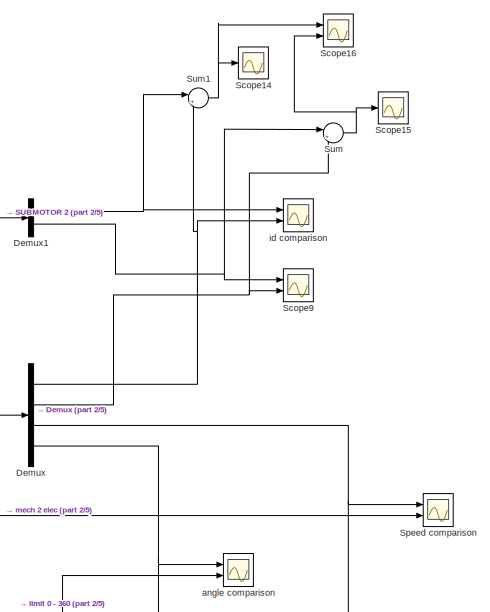
[diagram: root canvas - part 1/5, top right region]
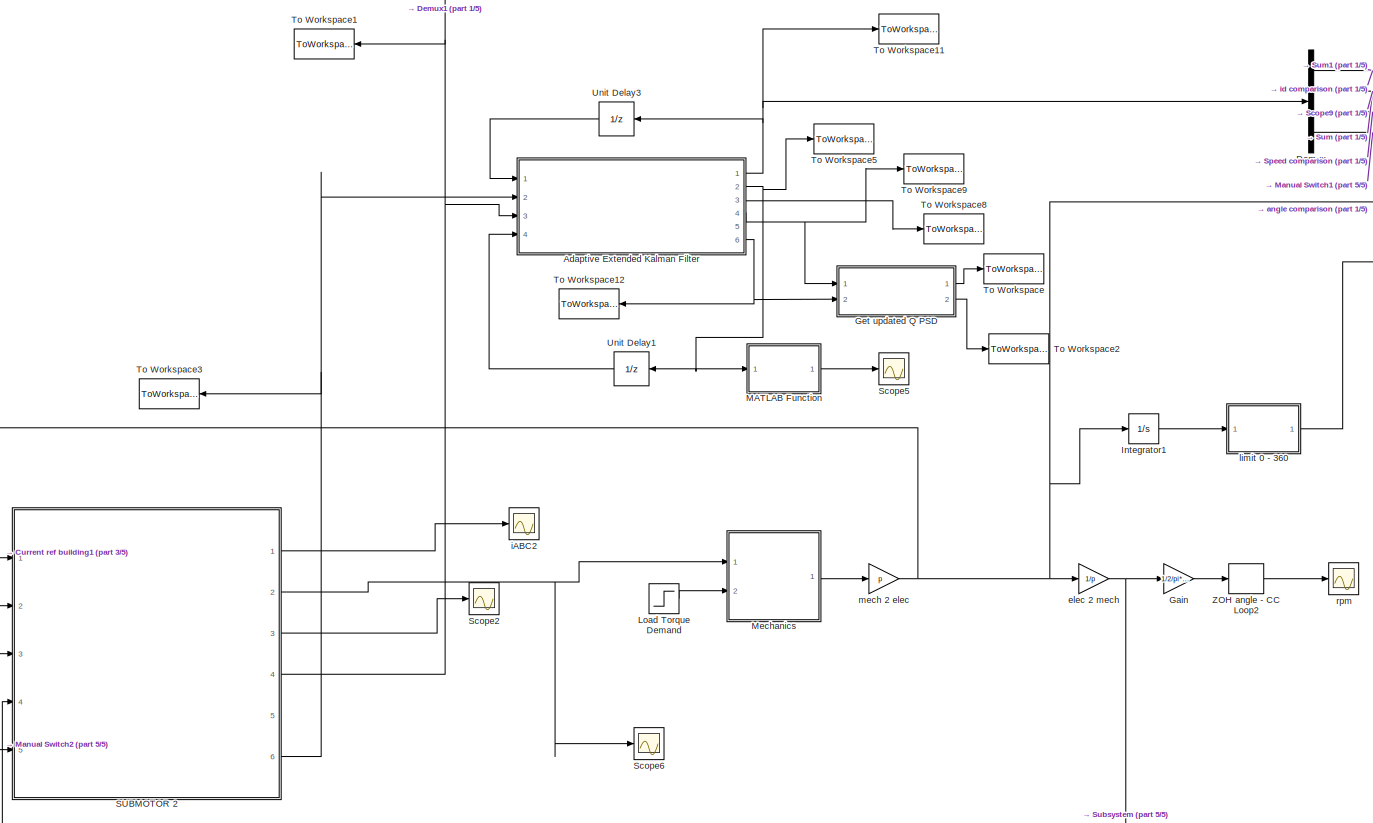
[diagram: root canvas - part 2/5, middle right region]
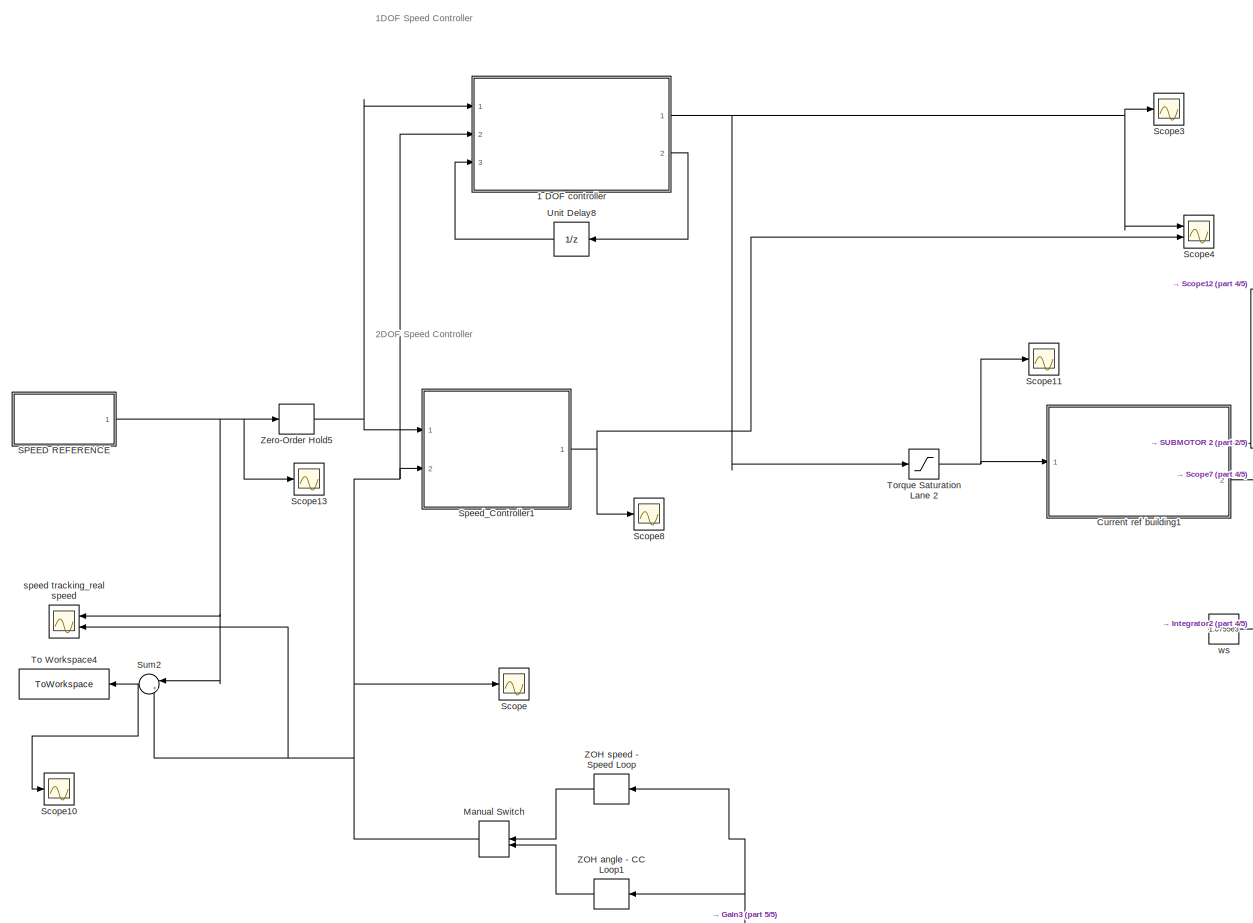
[diagram: root canvas - part 3/5, middle left region]
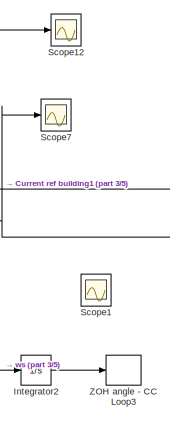
[diagram: root canvas - part 4/5, central region]
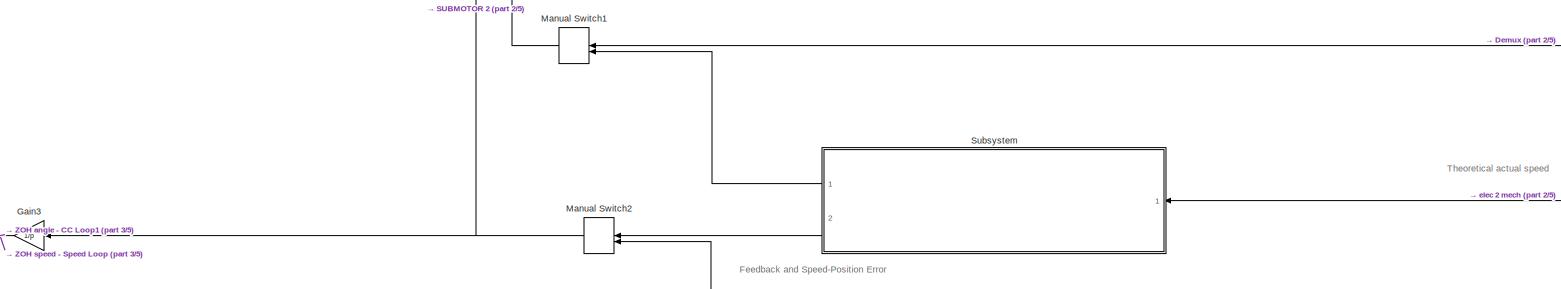
[diagram: root canvas - part 5/5, bottom center region]
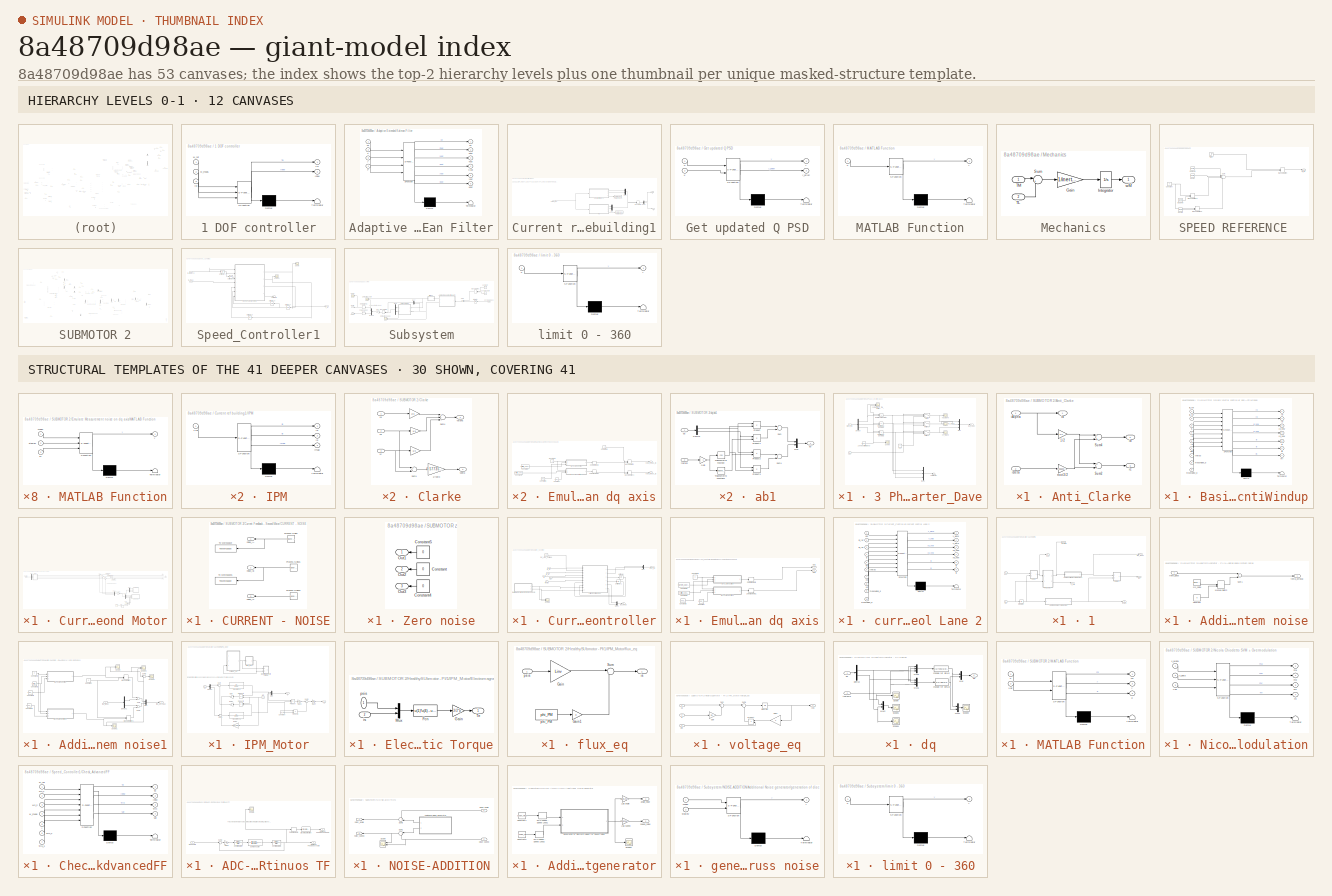
[diagram: thumbnail index - top-2 hierarchy levels (12 canvases) + 30 structural-template representatives of the remaining 41 canvases]
MODEL slx_8a48709d98ae
KIND model
CONFIG AbsTol = auto
CONFIG EnableMultiTasking = off
CONFIG FixedStep = auto
CONFIG MaxStep = 5e-6
CONFIG MinStep = auto
CONFIG RelTol = 1e-3
CONFIG SampleTimeConstraint = Unconstrained
CONFIG Solver = ode45
CONFIG SolverName = ode45
CONFIG StartTime = 0.0
CONFIG StopTime = 0.7
BLOCK [SubSystem] 1 DOF controller
  ErrorFcn = Stateflow.Translate.translate
  PermitHierarchicalResolution = ExplicitOnly
  Ports = [3, 2]
  RequestExecContextInheritance = off
  SFBlockType = MATLAB Function
  TreatAsAtomicUnit = on
BLOCK [Demux] 1 DOF controller/ Demux 
  Outputs = 1
  Ports = [1, 1]
BLOCK [S-Function] 1 DOF controller/ SFunction 
  EnableBusSupport = on
  FunctionName = sf_sfun
  Parameters = Ki_speed,Kp_speed,Tspeed
  PortCounts = [3 3]
  Ports = [3, 3]
  SFcnIsStateOwnerBlock = off
  SFunctionDeploymentMode = off
  Tag = Stateflow S-Function Bolognani_Replica_Paper_AEKF 12
BLOCK [Terminator] 1 DOF controller/ Terminator 
BLOCK [Outport] 1 DOF controller/Inew
  IconDisplay = Port number
  Port = 2
BLOCK [Inport] 1 DOF controller/Iw
  IconDisplay = Port number
  Port = 3
BLOCK [Outport] 1 DOF controller/Te
  IconDisplay = Port number
BLOCK [Inport] 1 DOF controller/w_meas
  IconDisplay = Port number
  Port = 2
BLOCK [Inport] 1 DOF controller/w_ref
  IconDisplay = Port number
BLOCK [SubSystem] Adaptive Extended Kalman Filter
  ErrorFcn = Stateflow.Translate.translate
  PermitHierarchicalResolution = ExplicitOnly
  Ports = [4, 6]
  RequestExecContextInheritance = off
  SFBlockType = MATLAB Function
  TreatAsAtomicUnit = on
BLOCK [Demux] Adaptive Extended Kalman Filter/ Demux 
  Outputs = 1
  Ports = [1, 1]
BLOCK [S-Function] Adaptive Extended Kalman Filter/ SFunction 
  EnableBusSupport = on
  FunctionName = sf_sfun
  Parameters = Ld,Lq,Qd,R,R_cov,Ts,phi_PM
  PortCounts = [4 7]
  Ports = [4, 7]
  SFcnIsStateOwnerBlock = off
  SFunctionDeploymentMode = off
  Tag = Stateflow S-Function Bolognani_Replica_Paper_AEKF 1
BLOCK [Terminator] Adaptive Extended Kalman Filter/ Terminator 
BLOCK [Outport] Adaptive Extended Kalman Filter/Cout
  IconDisplay = Port number
  Port = 4
BLOCK [Outport] Adaptive Extended Kalman Filter/Kout
  IconDisplay = Port number
  Port = 6
BLOCK [Inport] Adaptive Extended Kalman Filter/P
  IconDisplay = Port number
  Port = 4
BLOCK [Outport] Adaptive Extended Kalman Filter/Pout
  IconDisplay = Port number
  Port = 2
BLOCK [Inport] Adaptive Extended Kalman Filter/u
  IconDisplay = Port number
  Port = 2
BLOCK [Outport] Adaptive Extended Kalman Filter/vout
  IconDisplay = Port number
  Port = 3
BLOCK [Outport] Adaptive Extended Kalman Filter/xe
  IconDisplay = Port number
BLOCK [Inport] Adaptive Extended Kalman Filter/xe 
  IconDisplay = Port number
BLOCK [Inport] Adaptive Extended Kalman Filter/y
  IconDisplay = Port number
  Port = 3
BLOCK [Outport] Adaptive Extended Kalman Filter/yout
  IconDisplay = Port number
  Port = 5
BLOCK [SubSystem] Current ref building1
  Ports = [1, 2]
  RequestExecContextInheritance = off
BLOCK [Demux] Current ref building1/Demux
  DisplayOption = bar
  Outputs = 2
  Ports = [1, 2]
BLOCK [SubSystem] Current ref building1/IPM
  ErrorFcn = Stateflow.Translate.translate
  PermitHierarchicalResolution = ExplicitOnly
  Ports = [1, 3]
  RequestExecContextInheritance = off
  SFBlockType = MATLAB Function
  TreatAsAtomicUnit = on
BLOCK [Demux] Current ref building1/IPM/ Demux 
  Outputs = 1
  Ports = [1, 1]
BLOCK [S-Function] Current ref building1/IPM/ SFunction 
  EnableBusSupport = on
  FunctionName = sf_sfun
  PortCounts = [1 4]
  Ports = [1, 4]
  SFcnIsStateOwnerBlock = off
  SFunctionDeploymentMode = off
  Tag = Stateflow S-Function Bolognani_Replica_Paper_AEKF 10
BLOCK [Terminator] Current ref building1/IPM/ Terminator 
BLOCK [Outport] Current ref building1/IPM/Imag
  IconDisplay = Port number
  Port = 3
BLOCK [Inport] Current ref building1/IPM/Tref
  IconDisplay = Port number
BLOCK [Outport] Current ref building1/IPM/id
  IconDisplay = Port number
BLOCK [Outport] Current ref building1/IPM/iq
  IconDisplay = Port number
  Port = 2
BLOCK [ManualSwitch] Current ref building1/Manual Switch
BLOCK [Mux] Current ref building1/Mux
  DisplayOption = bar
  Inputs = 2
  Ports = [2, 1]
BLOCK [Mux] Current ref building1/Mux1
  DisplayOption = bar
  Inputs = 2
  Ports = [2, 1]
BLOCK [SubSystem] Current ref building1/SPM-current reference
  ErrorFcn = Stateflow.Translate.translate
  PermitHierarchicalResolution = ExplicitOnly
  Ports = [1, 3]
  RequestExecContextInheritance = off
  SFBlockType = MATLAB Function
  TreatAsAtomicUnit = on
BLOCK [Demux] Current ref building1/SPM-current reference/ Demux 
  Outputs = 1
  Ports = [1, 1]
BLOCK [S-Function] Current ref building1/SPM-current reference/ SFunction 
  EnableBusSupport = on
  FunctionName = sf_sfun
  Parameters = p,phi_PM
  PortCounts = [1 4]
  Ports = [1, 4]
  SFcnIsStateOwnerBlock = off
  SFunctionDeploymentMode = off
  Tag = Stateflow S-Function Bolognani_Replica_Paper_AEKF 11
BLOCK [Terminator] Current ref building1/SPM-current reference/ Terminator 
BLOCK [Outport] Current ref building1/SPM-current reference/Imag
  IconDisplay = Port number
  Port = 3
BLOCK [Inport] Current ref building1/SPM-current reference/T_ref
  IconDisplay = Port number
BLOCK [Outport] Current ref building1/SPM-current reference/id
  IconDisplay = Port number
BLOCK [Outport] Current ref building1/SPM-current reference/iq
  IconDisplay = Port number
  Port = 2
BLOCK [ToWorkspace] Current ref building1/To Workspace
  Decimation = 10
  FixptAsFi = on
  MaxDataPoints = inf
  Ports = [1]
  SampleTime = -1
  SaveFormat = Timeseries
  VariableName = Iref_magnitude_MTPA
BLOCK [ToWorkspace] Current ref building1/To Workspace1
  Decimation = 10
  FixptAsFi = on
  MaxDataPoints = inf
  Ports = [1]
  SampleTime = -1
  SaveFormat = Timeseries
  VariableName = Iref_magnitude_SPM
BLOCK [Inport] Current ref building1/Torque_Ref
  IconDisplay = Port number
BLOCK [Outport] Current ref building1/id
  IconDisplay = Port number
BLOCK [Outport] Current ref building1/iq
  IconDisplay = Port number
  Port = 2
BLOCK [Demux] Demux
  DisplayOption = bar
  Ports = [1, 4]
BLOCK [Demux] Demux1
  DisplayOption = bar
  Outputs = 2
  Ports = [1, 2]
BLOCK [Gain] Gain
  Gain = 1/2/pi*60
  OutDataTypeStr = Inherit: Inherit via internal rule
  ParamDataTypeStr = Inherit: Inherit via internal rule
  SaturateOnIntegerOverflow = off
BLOCK [Gain] Gain3
  Gain = 1/p
  OutDataTypeStr = Inherit: Inherit via internal rule
  ParamDataTypeStr = Inherit: Inherit via internal rule
  SaturateOnIntegerOverflow = off
BLOCK [SubSystem] Get updated Q PSD
  ErrorFcn = Stateflow.Translate.translate
  PermitHierarchicalResolution = ExplicitOnly
  Ports = [2, 2]
  RequestExecContextInheritance = off
  SFBlockType = MATLAB Function
  TreatAsAtomicUnit = on
BLOCK [Demux] Get updated Q PSD/ Demux 
  Outputs = 1
  Ports = [1, 1]
BLOCK [S-Function] Get updated Q PSD/ SFunction 
  EnableBusSupport = on
  FunctionName = sf_sfun
  PortCounts = [2 3]
  Ports = [2, 3]
  SFcnIsStateOwnerBlock = off
  SFunctionDeploymentMode = off
  Tag = Stateflow S-Function Bolognani_Replica_Paper_AEKF 22
BLOCK [Terminator] Get updated Q PSD/ Terminator 
BLOCK [Inport] Get updated Q PSD/C
  IconDisplay = Port number
BLOCK [Inport] Get updated Q PSD/K
  IconDisplay = Port number
  Port = 2
BLOCK [Outport] Get updated Q PSD/y
  IconDisplay = Port number
BLOCK [Outport] Get updated Q PSD/y_priori
  IconDisplay = Port number
  Port = 2
BLOCK [Integrator] Integrator1
  Ports = [1, 1]
BLOCK [Integrator] Integrator2
  Ports = [1, 1]
BLOCK [Step] Load Torque Demand
  After = LT
  SampleTime = 0
  Time = 0.4
BLOCK [SubSystem] MATLAB Function
  ErrorFcn = Stateflow.Translate.translate
  PermitHierarchicalResolution = ExplicitOnly
  Ports = [1, 1]
  RequestExecContextInheritance = off
  SFBlockType = MATLAB Function
  TreatAsAtomicUnit = on
BLOCK [Demux] MATLAB Function/ Demux 
  Outputs = 1
  Ports = [1, 1]
BLOCK [S-Function] MATLAB Function/ SFunction 
  EnableBusSupport = on
  FunctionName = sf_sfun
  PortCounts = [1 2]
  Ports = [1, 2]
  SFcnIsStateOwnerBlock = off
  SFunctionDeploymentMode = off
  Tag = Stateflow S-Function Bolognani_Replica_Paper_AEKF 19
BLOCK [Terminator] MATLAB Function/ Terminator 
BLOCK [Inport] MATLAB Function/u
  IconDisplay = Port number
BLOCK [Outport] MATLAB Function/y
  IconDisplay = Port number
BLOCK [ManualSwitch] Manual Switch
  CurrentSetting = 0
BLOCK [ManualSwitch] Manual Switch1
BLOCK [ManualSwitch] Manual Switch2
  CurrentSetting = 0
BLOCK [SubSystem] Mechanics
  Ports = [2, 1]
  RequestExecContextInheritance = off
BLOCK [Gain] Mechanics/Gain
  Gain = 1/inertia
BLOCK [Integrator] Mechanics/Integrator
  Ports = [1, 1]
BLOCK [Sum] Mechanics/Sum
  IconShape = round
  Inputs = |+-
  Ports = [2, 1]
BLOCK [Inport] Mechanics/TL
  IconDisplay = Port number
  Port = 2
BLOCK [Inport] Mechanics/TM
  IconDisplay = Port number
BLOCK [Outport] Mechanics/wM
  IconDisplay = Port number
BLOCK [SubSystem] SPEED REFERENCE 
  Ports = [0, 1]
  RequestExecContextInheritance = off
BLOCK [Constant] SPEED REFERENCE /Constant
  Value = 0
BLOCK [Reference] SPEED REFERENCE /Go Down  REF=simulink/Sources/Ramp
  Ports = [0, 1]
  SourceBlock = simulink/Sources/Ramp
  SourceProductBaseCode = SL
  SourceProductName = Simulink
  SourceType = Ramp
BLOCK [Reference] SPEED REFERENCE /Go Flat  REF=simulink/Sources/Ramp
  Ports = [0, 1]
  SourceBlock = simulink/Sources/Ramp
  SourceProductBaseCode = SL
  SourceProductName = Simulink
  SourceType = Ramp
BLOCK [Reference] SPEED REFERENCE /Go Flat2  REF=simulink/Sources/Ramp
  Ports = [0, 1]
  SourceBlock = simulink/Sources/Ramp
  SourceProductBaseCode = SL
  SourceProductName = Simulink
  SourceType = Ramp
BLOCK [ManualSwitch] SPEED REFERENCE /Manual Switch
  CurrentSetting = 0
BLOCK [ManualSwitch] SPEED REFERENCE /Manual Switch1
BLOCK [ManualSwitch] SPEED REFERENCE /Manual Switch2
BLOCK [Reference] SPEED REFERENCE /Ramp Up  REF=simulink/Sources/Ramp
  Ports = [0, 1]
  SourceBlock = simulink/Sources/Ramp
  SourceProductBaseCode = SL
  SourceProductName = Simulink
  SourceType = Ramp
BLOCK [Step] SPEED REFERENCE /Step
  After = wm/p
  SampleTime = 0
  Time = 0.05
BLOCK [Sum] SPEED REFERENCE /Sum
  IconShape = round
  InputSameDT = off
  Inputs = |++++
  OutDataTypeStr = Inherit: Inherit via internal rule
  Ports = [4, 1]
  SaturateOnIntegerOverflow = off
BLOCK [Outport] SPEED REFERENCE /w_ref
  IconDisplay = Port number
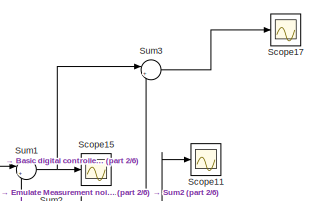
[diagram: SUBMOTOR 2 - part 1/6, top left region]
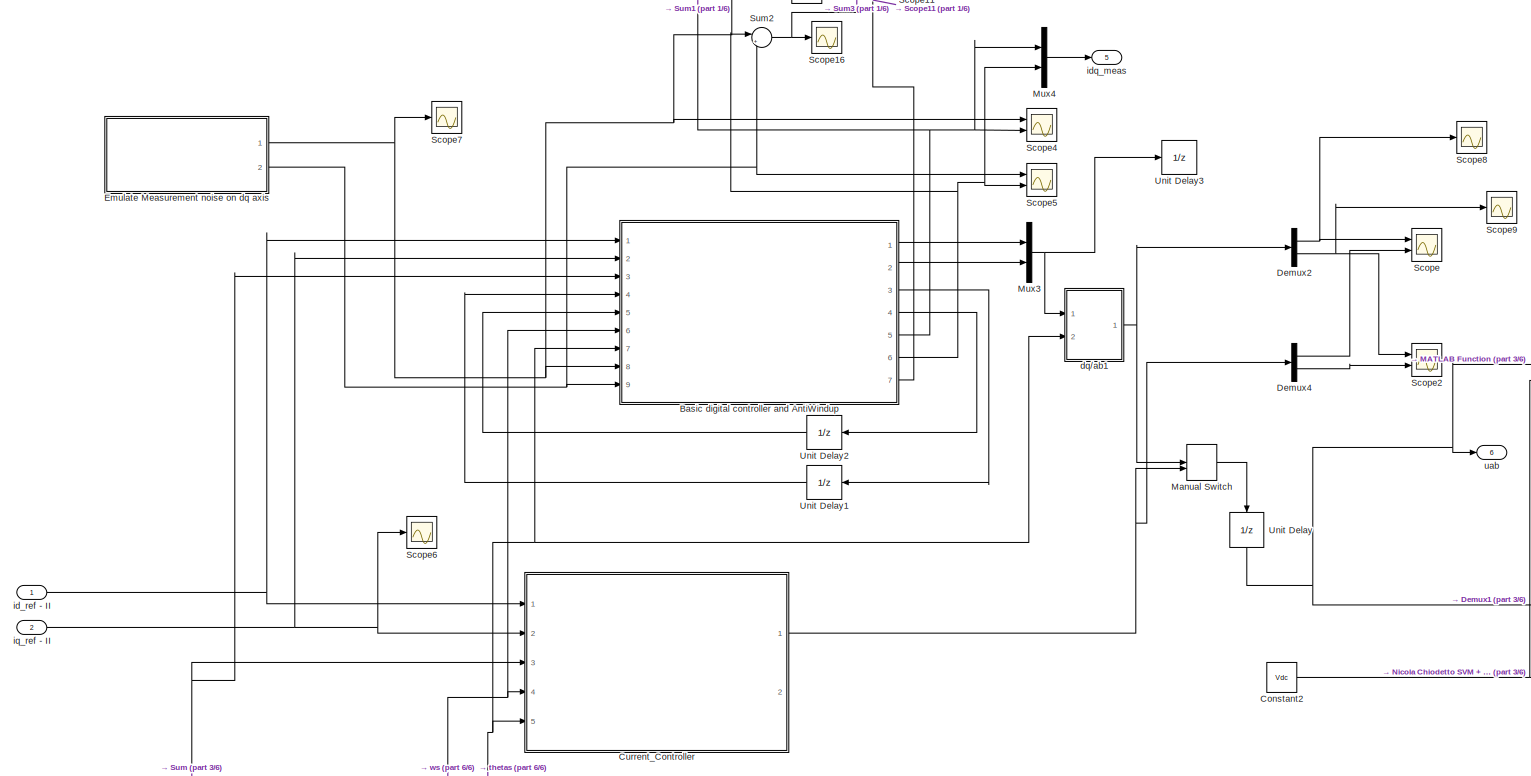
[diagram: SUBMOTOR 2 - part 2/6, middle left region]
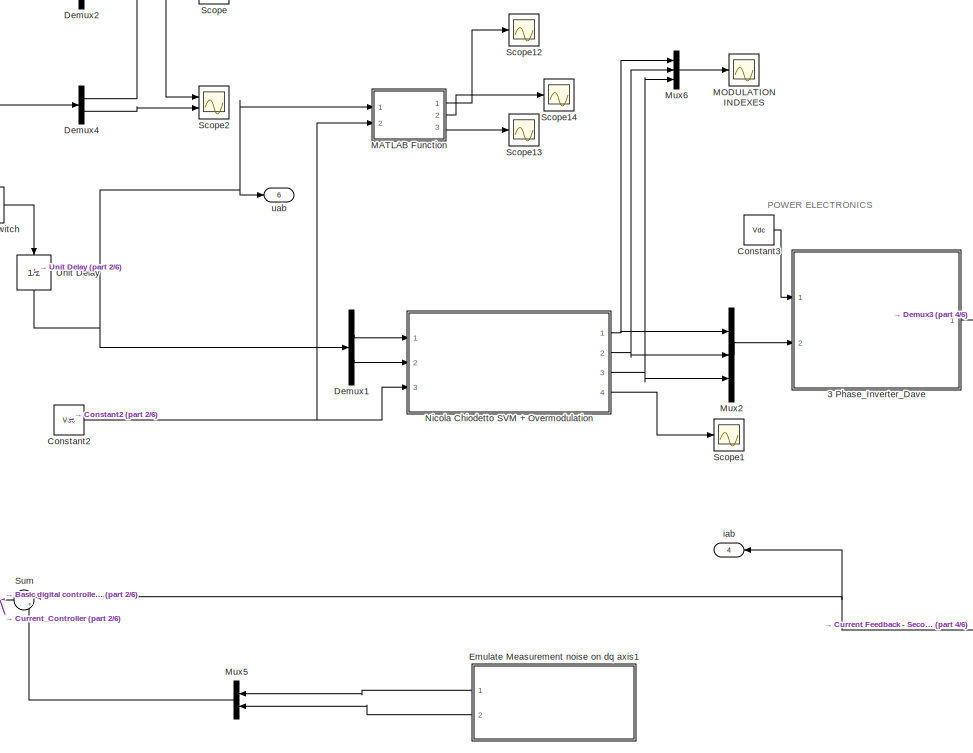
[diagram: SUBMOTOR 2 - part 3/6, central region]
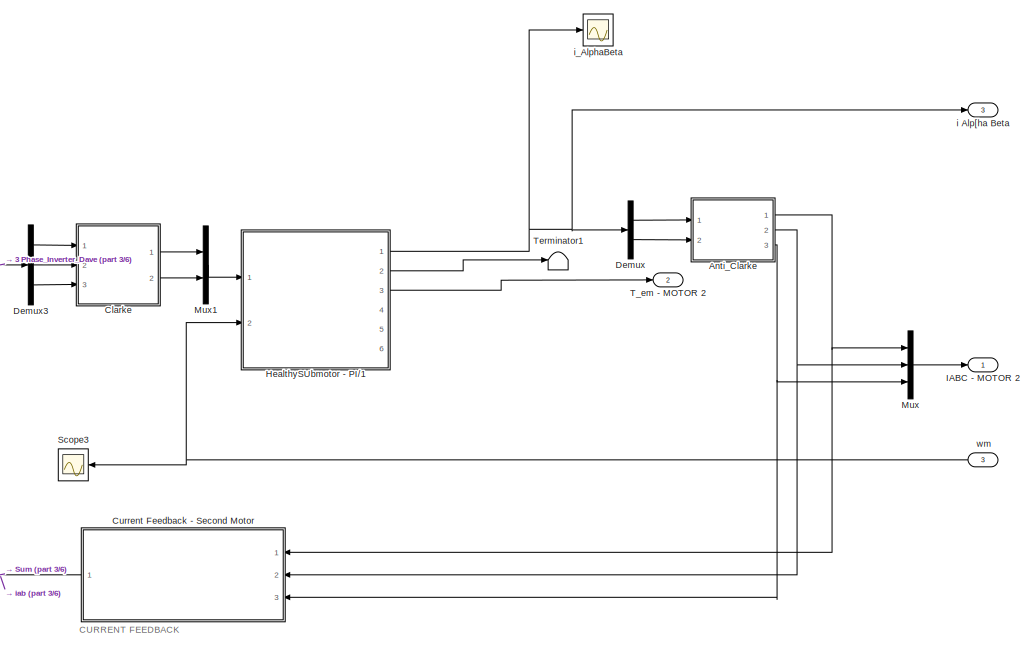
[diagram: SUBMOTOR 2 - part 4/6, middle right region]
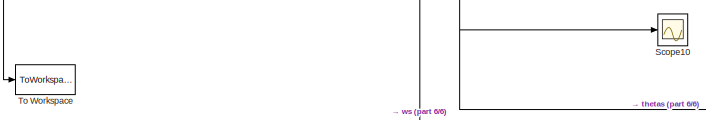
[diagram: SUBMOTOR 2 - part 5/6, bottom left region]
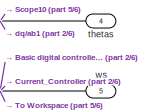
[diagram: SUBMOTOR 2 - part 6/6, bottom right region]
BLOCK [SubSystem] SUBMOTOR 2
  Ports = [5, 6]
  RequestExecContextInheritance = off
BLOCK [SubSystem] SUBMOTOR 2/3 Phase_Inverter_Dave
  Ports = [2, 1]
  RequestExecContextInheritance = off
BLOCK [Constant] SUBMOTOR 2/3 Phase_Inverter_Dave/-Vdc
  Value = 0
BLOCK [Reference] SUBMOTOR 2/3 Phase_Inverter_Dave/10kHz carrier signal  REF=simulink/Sources/Repeating
Sequence
  Ports = [0, 1]
  SourceBlock = simulink/Sources/Repeating\nSequence
  SourceProductBaseCode = SL
  SourceProductName = Simulink
  SourceType = Repeating table
BLOCK [Demux] SUBMOTOR 2/3 Phase_Inverter_Dave/Demux
  DisplayOption = bar
  Outputs = 3
  Ports = [1, 3]
BLOCK [Inport] SUBMOTOR 2/3 Phase_Inverter_Dave/Mod_Idx
  IconDisplay = Port number
  Port = 2
BLOCK [Mux] SUBMOTOR 2/3 Phase_Inverter_Dave/Mux
  DisplayOption = bar
  Inputs = 3
  Ports = [3, 1]
BLOCK [Mux] SUBMOTOR 2/3 Phase_Inverter_Dave/Mux1
  DisplayOption = bar
  Inputs = 3
  Ports = [3, 1]
BLOCK [Outport] SUBMOTOR 2/3 Phase_Inverter_Dave/Out_Vabc
  IconDisplay = Port number
BLOCK [RelationalOperator] SUBMOTOR 2/3 Phase_Inverter_Dave/Relational Operator
  InputSameDT = off
  Operator = <=
  OutDataTypeStr = boolean
  Ports = [2, 1]
BLOCK [RelationalOperator] SUBMOTOR 2/3 Phase_Inverter_Dave/Relational Operator1
  InputSameDT = off
  Operator = <=
  OutDataTypeStr = boolean
  Ports = [2, 1]
BLOCK [RelationalOperator] SUBMOTOR 2/3 Phase_Inverter_Dave/Relational Operator2
  InputSameDT = off
  Operator = <=
  OutDataTypeStr = boolean
  Ports = [2, 1]
BLOCK [Scope] SUBMOTOR 2/3 Phase_Inverter_Dave/Scope
  Floating = off
  NumInputPorts = 1
  Ports = [1]
  ScopeSpecificationString = Simulink.scopes.TimeScopeBlockCfg('CurrentConfiguration', extmgr.ConfigurationSet(extmgr.Configuration('Core','General UI',true,'FigureColor',[0.156862745098039 0.156862745098039 0.156862745098039]),extmgr.Configuration('Core','Source UI',true),extmgr.Configuration('Sources','WiredSimulink',true,'DataLoggingVariableName','ScopeData6','DataLoggingSaveFormat','StructureWithTime','DataLoggingDecimati...<+2773ch>
BLOCK [Switch] SUBMOTOR 2/3 Phase_Inverter_Dave/Switch
  Criteria = u2 > Threshold
  InputSameDT = off
  SaturateOnIntegerOverflow = off
BLOCK [Switch] SUBMOTOR 2/3 Phase_Inverter_Dave/Switch1
  Criteria = u2 > Threshold
  InputSameDT = off
  SaturateOnIntegerOverflow = off
BLOCK [Switch] SUBMOTOR 2/3 Phase_Inverter_Dave/Switch2
  Criteria = u2 > Threshold
  InputSameDT = off
  SaturateOnIntegerOverflow = off
BLOCK [Terminator] SUBMOTOR 2/3 Phase_Inverter_Dave/Terminator
BLOCK [Scope] SUBMOTOR 2/3 Phase_Inverter_Dave/Va_Dave
  Floating = off
  NumInputPorts = 1
  Ports = [1]
  ScopeSpecificationString = Simulink.scopes.TimeScopeBlockCfg('CurrentConfiguration', extmgr.ConfigurationSet(extmgr.Configuration('Core','General UI',true,'FigureColor',[0.156862745098039 0.156862745098039 0.156862745098039]),extmgr.Configuration('Core','Source UI',true),extmgr.Configuration('Sources','WiredSimulink',true,'DataLoggingVariableName','ScopeData8','DataLoggingSaveFormat','StructureWithTime','DataLoggingDecimati...<+2765ch>
BLOCK [Scope] SUBMOTOR 2/3 Phase_Inverter_Dave/Vb_Dave
  Floating = off
  NumInputPorts = 1
  Ports = [1]
  ScopeSpecificationString = Simulink.scopes.TimeScopeBlockCfg('CurrentConfiguration', extmgr.ConfigurationSet(extmgr.Configuration('Core','General UI',true,'FigureColor',[0.156862745098039 0.156862745098039 0.156862745098039]),extmgr.Configuration('Core','Source UI',true),extmgr.Configuration('Sources','WiredSimulink',true,'DataLoggingVariableName','ScopeData9','DataLoggingSaveFormat','StructureWithTime','DataLoggingDecimati...<+2764ch>
BLOCK [Scope] SUBMOTOR 2/3 Phase_Inverter_Dave/Vc_Dave
  Floating = off
  NumInputPorts = 1
  Ports = [1]
  ScopeSpecificationString = Simulink.scopes.TimeScopeBlockCfg('CurrentConfiguration', extmgr.ConfigurationSet(extmgr.Configuration('Core','General UI',true,'FigureColor',[0.156862745098039 0.156862745098039 0.156862745098039]),extmgr.Configuration('Core','Source UI',true),extmgr.Configuration('Sources','WiredSimulink',true,'DataLoggingVariableName','ScopeData10','DataLoggingSaveFormat','StructureWithTime','DataLoggingDecimat...<+2768ch>
BLOCK [Inport] SUBMOTOR 2/3 Phase_Inverter_Dave/Vdc
  IconDisplay = Port number
BLOCK [Scope] SUBMOTOR 2/3 Phase_Inverter_Dave/comparison_ma_PWM
  Floating = off
  NumInputPorts = 2
  Ports = [2]
  ScopeSpecificationString = Simulink.scopes.TimeScopeBlockCfg('CurrentConfiguration', extmgr.ConfigurationSet(extmgr.Configuration('Core','General UI',true,'FigureColor',[0.156862745098039 0.156862745098039 0.156862745098039]),extmgr.Configuration('Core','Source UI',true),extmgr.Configuration('Sources','WiredSimulink',true,'DataLoggingVariableName','ScopeData5','DataLoggingSaveFormat','StructureWithTime','DataLoggingDecimati...<+4011ch>
BLOCK [SubSystem] SUBMOTOR 2/Anti_Clarke
  Ports = [2, 3]
  RequestExecContextInheritance = off
BLOCK [Gain] SUBMOTOR 2/Anti_Clarke/ root3//2
  Gain = 0.86602540378443864676372317075294
BLOCK [Gain] SUBMOTOR 2/Anti_Clarke/1//2
  Gain = 1/2
BLOCK [Sum] SUBMOTOR 2/Anti_Clarke/Sum2
  Inputs = --
  Ports = [2, 1]
BLOCK [Sum] SUBMOTOR 2/Anti_Clarke/Sum4
  Inputs = -+
  Ports = [2, 1]
BLOCK [Inport] SUBMOTOR 2/Anti_Clarke/iAlpha
  IconDisplay = Port number
BLOCK [Inport] SUBMOTOR 2/Anti_Clarke/iBeta
  IconDisplay = Port number
  Port = 2
BLOCK [Outport] SUBMOTOR 2/Anti_Clarke/ia
  IconDisplay = Port number
BLOCK [Outport] SUBMOTOR 2/Anti_Clarke/ib
  IconDisplay = Port number
  Port = 2
BLOCK [Outport] SUBMOTOR 2/Anti_Clarke/ic
  IconDisplay = Port number
  Port = 3
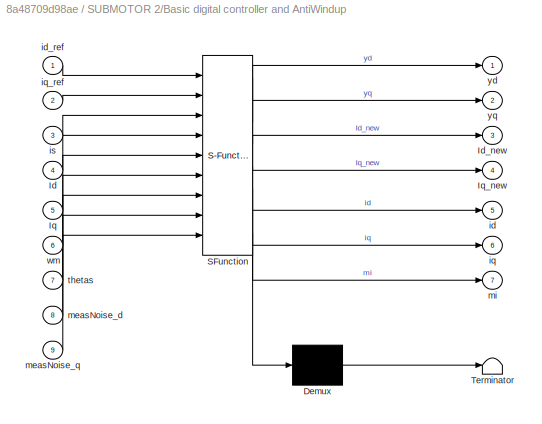
BLOCK [SubSystem] SUBMOTOR 2/Basic digital controller and AntiWindup
  ErrorFcn = Stateflow.Translate.translate
  PermitHierarchicalResolution = ExplicitOnly
  Ports = [9, 7]
  RequestExecContextInheritance = off
  SFBlockType = MATLAB Function
  TreatAsAtomicUnit = on
BLOCK [Demux] SUBMOTOR 2/Basic digital controller and AntiWindup/ Demux 
  Outputs = 1
  Ports = [1, 1]
BLOCK [S-Function] SUBMOTOR 2/Basic digital controller and AntiWindup/ SFunction 
  EnableBusSupport = on
  FunctionName = sf_sfun
  Parameters = Ld,Lq,Ts,Vdc,ki,kp
  PortCounts = [9 8]
  Ports = [9, 8]
  SFcnIsStateOwnerBlock = off
  SFunctionDeploymentMode = off
  Tag = Stateflow S-Function Bolognani_Replica_Paper_AEKF 3
BLOCK [Terminator] SUBMOTOR 2/Basic digital controller and AntiWindup/ Terminator 
BLOCK [Inport] SUBMOTOR 2/Basic digital controller and AntiWindup/Id
  IconDisplay = Port number
  Port = 4
BLOCK [Outport] SUBMOTOR 2/Basic digital controller and AntiWindup/Id_new
  IconDisplay = Port number
  Port = 3
BLOCK [Inport] SUBMOTOR 2/Basic digital controller and AntiWindup/Iq
  IconDisplay = Port number
  Port = 5
BLOCK [Outport] SUBMOTOR 2/Basic digital controller and AntiWindup/Iq_new
  IconDisplay = Port number
  Port = 4
BLOCK [Outport] SUBMOTOR 2/Basic digital controller and AntiWindup/id
  IconDisplay = Port number
  Port = 5
BLOCK [Inport] SUBMOTOR 2/Basic digital controller and AntiWindup/id_ref
  IconDisplay = Port number
BLOCK [Outport] SUBMOTOR 2/Basic digital controller and AntiWindup/iq
  IconDisplay = Port number
  Port = 6
BLOCK [Inport] SUBMOTOR 2/Basic digital controller and AntiWindup/iq_ref
  IconDisplay = Port number
  Port = 2
BLOCK [Inport] SUBMOTOR 2/Basic digital controller and AntiWindup/is
  IconDisplay = Port number
  Port = 3
BLOCK [Inport] SUBMOTOR 2/Basic digital controller and AntiWindup/measNoise_d
  IconDisplay = Port number
  Port = 8
BLOCK [Inport] SUBMOTOR 2/Basic digital controller and AntiWindup/measNoise_q
  IconDisplay = Port number
  Port = 9
BLOCK [Outport] SUBMOTOR 2/Basic digital controller and AntiWindup/mi
  IconDisplay = Port number
  Port = 7
BLOCK [Inport] SUBMOTOR 2/Basic digital controller and AntiWindup/thetas
  IconDisplay = Port number
  Port = 7
BLOCK [Inport] SUBMOTOR 2/Basic digital controller and AntiWindup/wm
  IconDisplay = Port number
  Port = 6
BLOCK [Outport] SUBMOTOR 2/Basic digital controller and AntiWindup/yd
  IconDisplay = Port number
BLOCK [Outport] SUBMOTOR 2/Basic digital controller and AntiWindup/yq
  IconDisplay = Port number
  Port = 2
BLOCK [SubSystem] SUBMOTOR 2/Clarke
  Ports = [3, 2]
  RequestExecContextInheritance = off
BLOCK [Gain] SUBMOTOR 2/Clarke/ 
  Gain = 2/3
BLOCK [Gain] SUBMOTOR 2/Clarke/   
  Gain = 1/3
BLOCK [Gain] SUBMOTOR 2/Clarke/    
  Gain = 1/3
BLOCK [Gain] SUBMOTOR 2/Clarke/ 1//root3
  Gain = 0.57735026918962576450914878050196
BLOCK [Sum] SUBMOTOR 2/Clarke/Sum1
  Inputs = +-
  Ports = [2, 1]
BLOCK [Sum] SUBMOTOR 2/Clarke/Sum4
  Inputs = +--
  Ports = [3, 1]
BLOCK [Inport] SUBMOTOR 2/Clarke/va
  IconDisplay = Port number
BLOCK [Outport] SUBMOTOR 2/Clarke/valpha
  IconDisplay = Port number
BLOCK [Inport] SUBMOTOR 2/Clarke/vb
  IconDisplay = Port number
  Port = 2
BLOCK [Outport] SUBMOTOR 2/Clarke/vbeta
  IconDisplay = Port number
  Port = 2
BLOCK [Inport] SUBMOTOR 2/Clarke/vc
  IconDisplay = Port number
  Port = 3
BLOCK [Constant] SUBMOTOR 2/Constant2
  Value = Vdc
BLOCK [Constant] SUBMOTOR 2/Constant3
  Value = Vdc
BLOCK [SubSystem] SUBMOTOR 2/Current Feedback - Second Motor
  Ports = [3, 1]
  RequestExecContextInheritance = off
BLOCK [SubSystem] SUBMOTOR 2/Current Feedback - Second Motor/CURRENT - NOISE
  Ports = [0, 3]
  RequestExecContextInheritance = off
BLOCK [Reference] SUBMOTOR 2/Current Feedback - Second Motor/CURRENT - NOISE/Process Noise  REF=simulink/Sources/Band-Limited
White Noise
  Ports = [0, 1]
  SourceBlock = simulink/Sources/Band-Limited\nWhite Noise
  SourceProductBaseCode = SL
  SourceProductName = Simulink
  SourceType = Band-Limited White Noise.
BLOCK [Reference] SUBMOTOR 2/Current Feedback - Second Motor/CURRENT - NOISE/Process Noise1  REF=simulink/Sources/Band-Limited
White Noise
  Ports = [0, 1]
  SourceBlock = simulink/Sources/Band-Limited\nWhite Noise
  SourceProductBaseCode = SL
  SourceProductName = Simulink
  SourceType = Band-Limited White Noise.
BLOCK [Reference] SUBMOTOR 2/Current Feedback - Second Motor/CURRENT - NOISE/Process Noise2  REF=simulink/Sources/Band-Limited
White Noise
  Ports = [0, 1]
  SourceBlock = simulink/Sources/Band-Limited\nWhite Noise
  SourceProductBaseCode = SL
  SourceProductName = Simulink
  SourceType = Band-Limited White Noise.
BLOCK [ToWorkspace] SUBMOTOR 2/Current Feedback - Second Motor/CURRENT - NOISE/To Workspace
  FixptAsFi = on
  MaxDataPoints = inf
  Ports = [1]
  SampleTime = -1
  SaveFormat = Timeseries
  VariableName = Anoise_Motor2
BLOCK [ToWorkspace] SUBMOTOR 2/Current Feedback - Second Motor/CURRENT - NOISE/To Workspace1
  FixptAsFi = on
  MaxDataPoints = inf
  Ports = [1]
  SampleTime = -1
  SaveFormat = Timeseries
  VariableName = Bnoise_Motor2
BLOCK [Outport] SUBMOTOR 2/Current Feedback - Second Motor/CURRENT - NOISE/noise_IA
  IconDisplay = Port number
BLOCK [Outport] SUBMOTOR 2/Current Feedback - Second Motor/CURRENT - NOISE/noise_IB
  IconDisplay = Port number
  Port = 2
BLOCK [Outport] SUBMOTOR 2/Current Feedback - Second Motor/CURRENT - NOISE/noise_IC
  IconDisplay = Port number
  Port = 3
BLOCK [SubSystem] SUBMOTOR 2/Current Feedback - Second Motor/Clarke3
  Ports = [3, 2]
  RequestExecContextInheritance = off
BLOCK [Gain] SUBMOTOR 2/Current Feedback - Second Motor/Clarke3/ 
  Gain = 2/3
BLOCK [Gain] SUBMOTOR 2/Current Feedback - Second Motor/Clarke3/   
  Gain = 1/3
BLOCK [Gain] SUBMOTOR 2/Current Feedback - Second Motor/Clarke3/    
  Gain = 1/3
BLOCK [Gain] SUBMOTOR 2/Current Feedback - Second Motor/Clarke3/ 1//root3
  Gain = 0.57735026918962576450914878050196
BLOCK [Sum] SUBMOTOR 2/Current Feedback - Second Motor/Clarke3/Sum1
  Inputs = +-
  Ports = [2, 1]
BLOCK [Sum] SUBMOTOR 2/Current Feedback - Second Motor/Clarke3/Sum4
  Inputs = +--
  Ports = [3, 1]
BLOCK [Inport] SUBMOTOR 2/Current Feedback - Second Motor/Clarke3/ia
  IconDisplay = Port number
BLOCK [Outport] SUBMOTOR 2/Current Feedback - Second Motor/Clarke3/ialpha
  IconDisplay = Port number
BLOCK [Inport] SUBMOTOR 2/Current Feedback - Second Motor/Clarke3/ib
  IconDisplay = Port number
  Port = 2
BLOCK [Outport] SUBMOTOR 2/Current Feedback - Second Motor/Clarke3/ibeta
  IconDisplay = Port number
  Port = 2
BLOCK [Inport] SUBMOTOR 2/Current Feedback - Second Motor/Clarke3/ic
  IconDisplay = Port number
  Port = 3
BLOCK [Demux] SUBMOTOR 2/Current Feedback - Second Motor/Demux6
  DisplayOption = bar
  Outputs = 3
  Ports = [1, 3]
BLOCK [ManualSwitch] SUBMOTOR 2/Current Feedback - Second Motor/Manual Switch1
BLOCK [Mux] SUBMOTOR 2/Current Feedback - Second Motor/Mux10
  DisplayOption = bar
  Inputs = 3
  Ports = [3, 1]
BLOCK [Mux] SUBMOTOR 2/Current Feedback - Second Motor/Mux3
  DisplayOption = bar
  Inputs = 2
  Ports = [2, 1]
BLOCK [Mux] SUBMOTOR 2/Current Feedback - Second Motor/Mux9
  DisplayOption = bar
  Inputs = 3
  Ports = [3, 1]
BLOCK [Scope] SUBMOTOR 2/Current Feedback - Second Motor/Scope
  Floating = off
  NumInputPorts = 3
  Ports = [3]
  ScopeSpecificationString = Simulink.scopes.TimeScopeBlockCfg('CurrentConfiguration', extmgr.ConfigurationSet(extmgr.Configuration('Core','General UI',true,'FigureColor',[0.156862745098039 0.156862745098039 0.156862745098039]),extmgr.Configuration('Core','Source UI',true),extmgr.Configuration('Sources','WiredSimulink',true,'DataLoggingVariableName','ScopeData2','DataLoggingSaveFormat','StructureWithTime','DataLoggingDecimati...<+5241ch>
BLOCK [Scope] SUBMOTOR 2/Current Feedback - Second Motor/Scope2
  Floating = off
  NumInputPorts = 1
  Ports = [1]
  ScopeSpecificationString = Simulink.scopes.TimeScopeBlockCfg('CurrentConfiguration', extmgr.ConfigurationSet(extmgr.Configuration('Core','General UI',true,'FigureColor',[0.156862745098039 0.156862745098039 0.156862745098039]),extmgr.Configuration('Core','Source UI',true),extmgr.Configuration('Sources','WiredSimulink',true,'DataLoggingVariableName','ScopeData3','DataLoggingSaveFormat','StructureWithTime','DataLoggingDecimati...<+2785ch>
BLOCK [Sum] SUBMOTOR 2/Current Feedback - Second Motor/Sum1
  IconShape = round
  InputSameDT = off
  Inputs = |++
  OutDataTypeStr = Inherit: Inherit via internal rule
  Ports = [2, 1]
  SaturateOnIntegerOverflow = off
BLOCK [Sum] SUBMOTOR 2/Current Feedback - Second Motor/Sum3
  IconShape = round
  InputSameDT = off
  Inputs = |+-
  OutDataTypeStr = Inherit: Inherit via internal rule
  Ports = [2, 1]
  SaturateOnIntegerOverflow = off
BLOCK [Sum] SUBMOTOR 2/Current Feedback - Second Motor/Sum4
  IconShape = round
  InputSameDT = off
  Inputs = |++
  OutDataTypeStr = Inherit: Inherit via internal rule
  Ports = [2, 1]
  SaturateOnIntegerOverflow = off
BLOCK [Sum] SUBMOTOR 2/Current Feedback - Second Motor/Sum5
  IconShape = round
  InputSameDT = off
  Inputs = |++
  OutDataTypeStr = Inherit: Inherit via internal rule
  Ports = [2, 1]
  SaturateOnIntegerOverflow = off
BLOCK [SubSystem] SUBMOTOR 2/Current Feedback - Second Motor/Zero noise
  Ports = [0, 3]
  RequestExecContextInheritance = off
BLOCK [Constant] SUBMOTOR 2/Current Feedback - Second Motor/Zero noise/Constant
  Value = 0
BLOCK [Constant] SUBMOTOR 2/Current Feedback - Second Motor/Zero noise/Constant4
  Value = 0
BLOCK [Constant] SUBMOTOR 2/Current Feedback - Second Motor/Zero noise/Constant5
  Value = 0
BLOCK [Outport] SUBMOTOR 2/Current Feedback - Second Motor/Zero noise/Out1
  IconDisplay = Port number
BLOCK [Outport] SUBMOTOR 2/Current Feedback - Second Motor/Zero noise/Out2
  IconDisplay = Port number
  Port = 2
BLOCK [Outport] SUBMOTOR 2/Current Feedback - Second Motor/Zero noise/Out3
  IconDisplay = Port number
  Port = 3
BLOCK [ZeroOrderHold] SUBMOTOR 2/Current Feedback - Second Motor/Zero-Order Hold1
  SampleTime = 1/fpwm
BLOCK [ZeroOrderHold] SUBMOTOR 2/Current Feedback - Second Motor/Zero-Order Hold2
  SampleTime = 1/fpwm
BLOCK [ZeroOrderHold] SUBMOTOR 2/Current Feedback - Second Motor/Zero-Order Hold3
  SampleTime = 1/fpwm
BLOCK [Outport] SUBMOTOR 2/Current Feedback - Second Motor/iAlpha-Beta2
  IconDisplay = Port number
BLOCK [Inport] SUBMOTOR 2/Current Feedback - Second Motor/ia
  IconDisplay = Port number
BLOCK [Inport] SUBMOTOR 2/Current Feedback - Second Motor/ib
  IconDisplay = Port number
  Port = 2
BLOCK [Inport] SUBMOTOR 2/Current Feedback - Second Motor/ic
  IconDisplay = Port number
  Port = 3
BLOCK [SubSystem] SUBMOTOR 2/Current_Controller
  Ports = [5, 2]
  RequestExecContextInheritance = off
BLOCK [Constant] SUBMOTOR 2/Current_Controller/DC_Link_Voltage
  Value = Vdc
BLOCK [SubSystem] SUBMOTOR 2/Current_Controller/Emulate Measurement noise on dq axis
  Ports = [0, 2]
  RequestExecContextInheritance = off
BLOCK [Constant] SUBMOTOR 2/Current_Controller/Emulate Measurement noise on dq axis/Constant
  Value = seed_5
BLOCK [Constant] SUBMOTOR 2/Current_Controller/Emulate Measurement noise on dq axis/Constant1
  Value = 0
BLOCK [Constant] SUBMOTOR 2/Current_Controller/Emulate Measurement noise on dq axis/Constant2
  Value = sqrt(R_cov(1,1))
BLOCK [Constant] SUBMOTOR 2/Current_Controller/Emulate Measurement noise on dq axis/Constant3
  Value = seed_4
BLOCK [Constant] SUBMOTOR 2/Current_Controller/Emulate Measurement noise on dq axis/Constant4
  Value = sqrt(R_cov(2,2))
BLOCK [SubSystem] SUBMOTOR 2/Current_Controller/Emulate Measurement noise on dq axis/MATLAB Function
  ErrorFcn = Stateflow.Translate.translate
  PermitHierarchicalResolution = ExplicitOnly
  Ports = [3, 1]
  RequestExecContextInheritance = off
  SFBlockType = MATLAB Function
  TreatAsAtomicUnit = on
BLOCK [Demux] SUBMOTOR 2/Current_Controller/Emulate Measurement noise on dq axis/MATLAB Function/ Demux 
  Outputs = 1
  Ports = [1, 1]
BLOCK [S-Function] SUBMOTOR 2/Current_Controller/Emulate Measurement noise on dq axis/MATLAB Function/ SFunction 
  EnableBusSupport = on
  FunctionName = sf_sfun
  PortCounts = [3 2]
  Ports = [3, 2]
  SFcnIsStateOwnerBlock = off
  SFunctionDeploymentMode = off
  Tag = Stateflow S-Function Bolognani_Replica_Paper_AEKF 5
BLOCK [Terminator] SUBMOTOR 2/Current_Controller/Emulate Measurement noise on dq axis/MATLAB Function/ Terminator 
BLOCK [Inport] SUBMOTOR 2/Current_Controller/Emulate Measurement noise on dq axis/MATLAB Function/mean
  IconDisplay = Port number
BLOCK [Inport] SUBMOTOR 2/Current_Controller/Emulate Measurement noise on dq axis/MATLAB Function/s1
  IconDisplay = Port number
  Port = 3
BLOCK [Inport] SUBMOTOR 2/Current_Controller/Emulate Measurement noise on dq axis/MATLAB Function/stdDev
  IconDisplay = Port number
  Port = 2
BLOCK [Outport] SUBMOTOR 2/Current_Controller/Emulate Measurement noise on dq axis/MATLAB Function/y
  IconDisplay = Port number
BLOCK [SubSystem] SUBMOTOR 2/Current_Controller/Emulate Measurement noise on dq axis/MATLAB Function1
  ErrorFcn = Stateflow.Translate.translate
  PermitHierarchicalResolution = ExplicitOnly
  Ports = [3, 1]
  RequestExecContextInheritance = off
  SFBlockType = MATLAB Function
  TreatAsAtomicUnit = on
BLOCK [Demux] SUBMOTOR 2/Current_Controller/Emulate Measurement noise on dq axis/MATLAB Function1/ Demux 
  Outputs = 1
  Ports = [1, 1]
BLOCK [S-Function] SUBMOTOR 2/Current_Controller/Emulate Measurement noise on dq axis/MATLAB Function1/ SFunction 
  EnableBusSupport = on
  FunctionName = sf_sfun
  PortCounts = [3 2]
  Ports = [3, 2]
  SFcnIsStateOwnerBlock = off
  SFunctionDeploymentMode = off
  Tag = Stateflow S-Function Bolognani_Replica_Paper_AEKF 14
BLOCK [Terminator] SUBMOTOR 2/Current_Controller/Emulate Measurement noise on dq axis/MATLAB Function1/ Terminator 
BLOCK [Inport] SUBMOTOR 2/Current_Controller/Emulate Measurement noise on dq axis/MATLAB Function1/mean
  IconDisplay = Port number
BLOCK [Inport] SUBMOTOR 2/Current_Controller/Emulate Measurement noise on dq axis/MATLAB Function1/s1
  IconDisplay = Port number
  Port = 3
BLOCK [Inport] SUBMOTOR 2/Current_Controller/Emulate Measurement noise on dq axis/MATLAB Function1/stdDev
  IconDisplay = Port number
  Port = 2
BLOCK [Outport] SUBMOTOR 2/Current_Controller/Emulate Measurement noise on dq axis/MATLAB Function1/y
  IconDisplay = Port number
BLOCK [Outport] SUBMOTOR 2/Current_Controller/Emulate Measurement noise on dq axis/Out1
  IconDisplay = Port number
BLOCK [Outport] SUBMOTOR 2/Current_Controller/Emulate Measurement noise on dq axis/Out2
  IconDisplay = Port number
  Port = 2
BLOCK [ZeroOrderHold] SUBMOTOR 2/Current_Controller/Emulate Measurement noise on dq axis/Zero-Order Hold
  SampleTime = Ts
BLOCK [ZeroOrderHold] SUBMOTOR 2/Current_Controller/Emulate Measurement noise on dq axis/Zero-Order Hold1
  SampleTime = Ts
BLOCK [Mux] SUBMOTOR 2/Current_Controller/Mux
  DisplayOption = bar
  Inputs = 2
  Ports = [2, 1]
BLOCK [Mux] SUBMOTOR 2/Current_Controller/Mux1
  DisplayOption = bar
  Inputs = 2
  Ports = [2, 1]
BLOCK [Scope] SUBMOTOR 2/Current_Controller/Scope
  Floating = off
  NumInputPorts = 2
  Ports = [2]
  ScopeSpecificationString = Simulink.scopes.TimeScopeBlockCfg('CurrentConfiguration', extmgr.ConfigurationSet(extmgr.Configuration('Core','General UI',true),extmgr.Configuration('Core','Source UI',true),extmgr.Configuration('Sources','WiredSimulink',true,'DataLoggingVariableName','ScopeData3'),extmgr.Configuration('Visuals','Time Domain',true,'SerializedDisplays',{struct('MinYLimReal','-0.5648','MaxYLimReal','0.53204','YLabe...<+1434ch>
BLOCK [UnitDelay] SUBMOTOR 2/Current_Controller/Unit Delay
  HasFrameUpgradeWarning = on
  SampleTime = Ts
BLOCK [UnitDelay] SUBMOTOR 2/Current_Controller/Unit Delay1
  HasFrameUpgradeWarning = on
  SampleTime = Ts
BLOCK [SubSystem] SUBMOTOR 2/Current_Controller/current control Lane 2
  ErrorFcn = Stateflow.Translate.translate
  PermitHierarchicalResolution = ExplicitOnly
  Ports = [10, 6]
  RequestExecContextInheritance = off
  SFBlockType = MATLAB Function
  TreatAsAtomicUnit = on
BLOCK [Demux] SUBMOTOR 2/Current_Controller/current control Lane 2/ Demux 
  Outputs = 1
  Ports = [1, 1]
BLOCK [S-Function] SUBMOTOR 2/Current_Controller/current control Lane 2/ SFunction 
  EnableBusSupport = on
  FunctionName = sf_sfun
  Parameters = Ld,Lq,Rs,Ts,alpha
  PortCounts = [10 7]
  Ports = [10, 7]
  SFcnIsStateOwnerBlock = off
  SFunctionDeploymentMode = off
  Tag = Stateflow S-Function Bolognani_Replica_Paper_AEKF 7
BLOCK [Terminator] SUBMOTOR 2/Current_Controller/current control Lane 2/ Terminator 
BLOCK [Inport] SUBMOTOR 2/Current_Controller/current control Lane 2/Udc
  IconDisplay = Port number
BLOCK [Outport] SUBMOTOR 2/Current_Controller/current control Lane 2/id
  IconDisplay = Port number
  Port = 5
BLOCK [Inport] SUBMOTOR 2/Current_Controller/current control Lane 2/id_ref
  IconDisplay = Port number
  Port = 2
BLOCK [Outport] SUBMOTOR 2/Current_Controller/current control Lane 2/iq
  IconDisplay = Port number
  Port = 6
BLOCK [Inport] SUBMOTOR 2/Current_Controller/current control Lane 2/iq_ref
  IconDisplay = Port number
  Port = 3
BLOCK [Inport] SUBMOTOR 2/Current_Controller/current control Lane 2/is
  IconDisplay = Port number
  Port = 4
BLOCK [Inport] SUBMOTOR 2/Current_Controller/current control Lane 2/measNoise_d
  IconDisplay = Port number
  Port = 9
BLOCK [Inport] SUBMOTOR 2/Current_Controller/current control Lane 2/measNoise_q
  IconDisplay = Port number
  Port = 10
BLOCK [Inport] SUBMOTOR 2/Current_Controller/current control Lane 2/thetas
  IconDisplay = Port number
  Port = 6
BLOCK [Outport] SUBMOTOR 2/Current_Controller/current control Lane 2/v_alpha
  IconDisplay = Port number
BLOCK [Outport] SUBMOTOR 2/Current_Controller/current control Lane 2/v_beta
  IconDisplay = Port number
  Port = 2
BLOCK [Inport] SUBMOTOR 2/Current_Controller/current control Lane 2/ws
  IconDisplay = Port number
  Port = 5
BLOCK [Inport] SUBMOTOR 2/Current_Controller/current control Lane 2/xd
  IconDisplay = Port number
  Port = 7
BLOCK [Outport] SUBMOTOR 2/Current_Controller/current control Lane 2/xd_new
  IconDisplay = Port number
  Port = 3
BLOCK [Inport] SUBMOTOR 2/Current_Controller/current control Lane 2/xq
  IconDisplay = Port number
  Port = 8
BLOCK [Outport] SUBMOTOR 2/Current_Controller/current control Lane 2/xq_new
  IconDisplay = Port number
  Port = 4
BLOCK [Inport] SUBMOTOR 2/Current_Controller/id_ref
  IconDisplay = Port number
BLOCK [Outport] SUBMOTOR 2/Current_Controller/idq_meas
  IconDisplay = Port number
  Port = 2
BLOCK [Inport] SUBMOTOR 2/Current_Controller/iq_ref
  IconDisplay = Port number
  Port = 2
BLOCK [Inport] SUBMOTOR 2/Current_Controller/is
  IconDisplay = Port number
  Port = 3
BLOCK [Inport] SUBMOTOR 2/Current_Controller/thetas
  IconDisplay = Port number
  Port = 5
BLOCK [Outport] SUBMOTOR 2/Current_Controller/uss_ref
  IconDisplay = Port number
BLOCK [Inport] SUBMOTOR 2/Current_Controller/ws
  IconDisplay = Port number
  Port = 4
BLOCK [Demux] SUBMOTOR 2/Demux
  DisplayOption = bar
  Outputs = 2
  Ports = [1, 2]
BLOCK [Demux] SUBMOTOR 2/Demux1
  DisplayOption = bar
  Outputs = 2
  Ports = [1, 2]
BLOCK [Demux] SUBMOTOR 2/Demux2
  DisplayOption = bar
  Outputs = 2
  Ports = [1, 2]
BLOCK [Demux] SUBMOTOR 2/Demux3
  DisplayOption = bar
  Outputs = 3
  Ports = [1, 3]
BLOCK [Demux] SUBMOTOR 2/Demux4
  DisplayOption = bar
  Outputs = 2
  Ports = [1, 2]
BLOCK [SubSystem] SUBMOTOR 2/Emulate Measurement noise on dq axis
  Ports = [0, 2]
  RequestExecContextInheritance = off
BLOCK [Constant] SUBMOTOR 2/Emulate Measurement noise on dq axis/Constant
  Value = seed_5
BLOCK [Constant] SUBMOTOR 2/Emulate Measurement noise on dq axis/Constant1
  Value = 0
BLOCK [Constant] SUBMOTOR 2/Emulate Measurement noise on dq axis/Constant2
  Value = sqrt(R_cov(1,1))
BLOCK [Constant] SUBMOTOR 2/Emulate Measurement noise on dq axis/Constant3
  Value = seed_4
BLOCK [Constant] SUBMOTOR 2/Emulate Measurement noise on dq axis/Constant4
  Value = sqrt(R_cov(2,2))
BLOCK [Constant] SUBMOTOR 2/Emulate Measurement noise on dq axis/Constant5
  Value = 0
BLOCK [SubSystem] SUBMOTOR 2/Emulate Measurement noise on dq axis/MATLAB Function
  ErrorFcn = Stateflow.Translate.translate
  PermitHierarchicalResolution = ExplicitOnly
  Ports = [3, 1]
  RequestExecContextInheritance = off
  SFBlockType = MATLAB Function
  TreatAsAtomicUnit = on
BLOCK [Demux] SUBMOTOR 2/Emulate Measurement noise on dq axis/MATLAB Function/ Demux 
  Outputs = 1
  Ports = [1, 1]
BLOCK [S-Function] SUBMOTOR 2/Emulate Measurement noise on dq axis/MATLAB Function/ SFunction 
  EnableBusSupport = on
  FunctionName = sf_sfun
  PortCounts = [3 2]
  Ports = [3, 2]
  SFcnIsStateOwnerBlock = off
  SFunctionDeploymentMode = off
  Tag = Stateflow S-Function Bolognani_Replica_Paper_AEKF 17
BLOCK [Terminator] SUBMOTOR 2/Emulate Measurement noise on dq axis/MATLAB Function/ Terminator 
BLOCK [Inport] SUBMOTOR 2/Emulate Measurement noise on dq axis/MATLAB Function/mean
  IconDisplay = Port number
BLOCK [Inport] SUBMOTOR 2/Emulate Measurement noise on dq axis/MATLAB Function/s1
  IconDisplay = Port number
  Port = 3
BLOCK [Inport] SUBMOTOR 2/Emulate Measurement noise on dq axis/MATLAB Function/stdDev
  IconDisplay = Port number
  Port = 2
BLOCK [Outport] SUBMOTOR 2/Emulate Measurement noise on dq axis/MATLAB Function/y
  IconDisplay = Port number
BLOCK [SubSystem] SUBMOTOR 2/Emulate Measurement noise on dq axis/MATLAB Function1
  ErrorFcn = Stateflow.Translate.translate
  PermitHierarchicalResolution = ExplicitOnly
  Ports = [3, 1]
  RequestExecContextInheritance = off
  SFBlockType = MATLAB Function
  TreatAsAtomicUnit = on
BLOCK [Demux] SUBMOTOR 2/Emulate Measurement noise on dq axis/MATLAB Function1/ Demux 
  Outputs = 1
  Ports = [1, 1]
BLOCK [S-Function] SUBMOTOR 2/Emulate Measurement noise on dq axis/MATLAB Function1/ SFunction 
  EnableBusSupport = on
  FunctionName = sf_sfun
  PortCounts = [3 2]
  Ports = [3, 2]
  SFcnIsStateOwnerBlock = off
  SFunctionDeploymentMode = off
  Tag = Stateflow S-Function Bolognani_Replica_Paper_AEKF 18
BLOCK [Terminator] SUBMOTOR 2/Emulate Measurement noise on dq axis/MATLAB Function1/ Terminator 
BLOCK [Inport] SUBMOTOR 2/Emulate Measurement noise on dq axis/MATLAB Function1/mean
  IconDisplay = Port number
BLOCK [Inport] SUBMOTOR 2/Emulate Measurement noise on dq axis/MATLAB Function1/s1
  IconDisplay = Port number
  Port = 3
BLOCK [Inport] SUBMOTOR 2/Emulate Measurement noise on dq axis/MATLAB Function1/stdDev
  IconDisplay = Port number
  Port = 2
BLOCK [Outport] SUBMOTOR 2/Emulate Measurement noise on dq axis/MATLAB Function1/y
  IconDisplay = Port number
BLOCK [ManualSwitch] SUBMOTOR 2/Emulate Measurement noise on dq axis/Manual Switch
  CurrentSetting = 0
BLOCK [ManualSwitch] SUBMOTOR 2/Emulate Measurement noise on dq axis/Manual Switch1
BLOCK [ZeroOrderHold] SUBMOTOR 2/Emulate Measurement noise on dq axis/Zero-Order Hold
  SampleTime = Ts
BLOCK [ZeroOrderHold] SUBMOTOR 2/Emulate Measurement noise on dq axis/Zero-Order Hold1
  SampleTime = Ts
BLOCK [Outport] SUBMOTOR 2/Emulate Measurement noise on dq axis/noise_meas_id
  IconDisplay = Port number
BLOCK [Outport] SUBMOTOR 2/Emulate Measurement noise on dq axis/noise_meas_iq
  IconDisplay = Port number
  Port = 2
BLOCK [SubSystem] SUBMOTOR 2/Emulate Measurement noise on dq axis1
  Ports = [0, 2]
  RequestExecContextInheritance = off
BLOCK [Constant] SUBMOTOR 2/Emulate Measurement noise on dq axis1/Constant
  Value = seed_5
BLOCK [Constant] SUBMOTOR 2/Emulate Measurement noise on dq axis1/Constant1
  Value = 0
BLOCK [Constant] SUBMOTOR 2/Emulate Measurement noise on dq axis1/Constant2
  Value = sqrt(R_cov(1,1))
BLOCK [Constant] SUBMOTOR 2/Emulate Measurement noise on dq axis1/Constant3
  Value = seed_4
BLOCK [Constant] SUBMOTOR 2/Emulate Measurement noise on dq axis1/Constant4
  Value = sqrt(R_cov(2,2))
BLOCK [Constant] SUBMOTOR 2/Emulate Measurement noise on dq axis1/Constant5
  Value = 0
BLOCK [SubSystem] SUBMOTOR 2/Emulate Measurement noise on dq axis1/MATLAB Function
  ErrorFcn = Stateflow.Translate.translate
  PermitHierarchicalResolution = ExplicitOnly
  Ports = [3, 1]
  RequestExecContextInheritance = off
  SFBlockType = MATLAB Function
  TreatAsAtomicUnit = on
BLOCK [Demux] SUBMOTOR 2/Emulate Measurement noise on dq axis1/MATLAB Function/ Demux 
  Outputs = 1
  Ports = [1, 1]
BLOCK [S-Function] SUBMOTOR 2/Emulate Measurement noise on dq axis1/MATLAB Function/ SFunction 
  EnableBusSupport = on
  FunctionName = sf_sfun
  PortCounts = [3 2]
  Ports = [3, 2]
  SFcnIsStateOwnerBlock = off
  SFunctionDeploymentMode = off
  Tag = Stateflow S-Function Bolognani_Replica_Paper_AEKF 20
BLOCK [Terminator] SUBMOTOR 2/Emulate Measurement noise on dq axis1/MATLAB Function/ Terminator 
BLOCK [Inport] SUBMOTOR 2/Emulate Measurement noise on dq axis1/MATLAB Function/mean
  IconDisplay = Port number
BLOCK [Inport] SUBMOTOR 2/Emulate Measurement noise on dq axis1/MATLAB Function/s1
  IconDisplay = Port number
  Port = 3
BLOCK [Inport] SUBMOTOR 2/Emulate Measurement noise on dq axis1/MATLAB Function/stdDev
  IconDisplay = Port number
  Port = 2
BLOCK [Outport] SUBMOTOR 2/Emulate Measurement noise on dq axis1/MATLAB Function/y
  IconDisplay = Port number
BLOCK [SubSystem] SUBMOTOR 2/Emulate Measurement noise on dq axis1/MATLAB Function1
  ErrorFcn = Stateflow.Translate.translate
  PermitHierarchicalResolution = ExplicitOnly
  Ports = [3, 1]
  RequestExecContextInheritance = off
  SFBlockType = MATLAB Function
  TreatAsAtomicUnit = on
BLOCK [Demux] SUBMOTOR 2/Emulate Measurement noise on dq axis1/MATLAB Function1/ Demux 
  Outputs = 1
  Ports = [1, 1]
BLOCK [S-Function] SUBMOTOR 2/Emulate Measurement noise on dq axis1/MATLAB Function1/ SFunction 
  EnableBusSupport = on
  FunctionName = sf_sfun
  PortCounts = [3 2]
  Ports = [3, 2]
  SFcnIsStateOwnerBlock = off
  SFunctionDeploymentMode = off
  Tag = Stateflow S-Function Bolognani_Replica_Paper_AEKF 21
BLOCK [Terminator] SUBMOTOR 2/Emulate Measurement noise on dq axis1/MATLAB Function1/ Terminator 
BLOCK [Inport] SUBMOTOR 2/Emulate Measurement noise on dq axis1/MATLAB Function1/mean
  IconDisplay = Port number
BLOCK [Inport] SUBMOTOR 2/Emulate Measurement noise on dq axis1/MATLAB Function1/s1
  IconDisplay = Port number
  Port = 3
BLOCK [Inport] SUBMOTOR 2/Emulate Measurement noise on dq axis1/MATLAB Function1/stdDev
  IconDisplay = Port number
  Port = 2
BLOCK [Outport] SUBMOTOR 2/Emulate Measurement noise on dq axis1/MATLAB Function1/y
  IconDisplay = Port number
BLOCK [ManualSwitch] SUBMOTOR 2/Emulate Measurement noise on dq axis1/Manual Switch
  CurrentSetting = 0
BLOCK [ManualSwitch] SUBMOTOR 2/Emulate Measurement noise on dq axis1/Manual Switch1
BLOCK [ZeroOrderHold] SUBMOTOR 2/Emulate Measurement noise on dq axis1/Zero-Order Hold
  SampleTime = Ts
BLOCK [ZeroOrderHold] SUBMOTOR 2/Emulate Measurement noise on dq axis1/Zero-Order Hold1
  SampleTime = Ts
BLOCK [Outport] SUBMOTOR 2/Emulate Measurement noise on dq axis1/noise_meas_id
  IconDisplay = Port number
BLOCK [Outport] SUBMOTOR 2/Emulate Measurement noise on dq axis1/noise_meas_iq
  IconDisplay = Port number
  Port = 2
BLOCK [SubSystem] SUBMOTOR 2/HealthySUbmotor - PI//1
  Ports = [2, 6]
  RequestExecContextInheritance = off
BLOCK [SubSystem] SUBMOTOR 2/HealthySUbmotor - PI//1/Adding angle system noise
  Ports = [1, 1]
  RequestExecContextInheritance = off
BLOCK [Constant] SUBMOTOR 2/HealthySUbmotor - PI//1/Adding angle system noise/Constant
  Value = 0
BLOCK [ManualSwitch] SUBMOTOR 2/HealthySUbmotor - PI//1/Adding angle system noise/Manual Switch
  CurrentSetting = 0
BLOCK [Sum] SUBMOTOR 2/HealthySUbmotor - PI//1/Adding angle system noise/Sum1
  InputSameDT = off
  OutDataTypeStr = Inherit: Inherit via internal rule
  Ports = [2, 1]
  SaturateOnIntegerOverflow = off
BLOCK [Reference] SUBMOTOR 2/HealthySUbmotor - PI//1/Adding angle system noise/sys_noise  REF=simulink/Sources/Band-Limited
White Noise
  Ports = [0, 1]
  SourceBlock = simulink/Sources/Band-Limited\nWhite Noise
  SourceProductBaseCode = SL
  SourceProductName = Simulink
  SourceType = Band-Limited White Noise.
BLOCK [Outport] SUBMOTOR 2/HealthySUbmotor - PI//1/Adding angle system noise/tehta_physical
  IconDisplay = Port number
BLOCK [Inport] SUBMOTOR 2/HealthySUbmotor - PI//1/Adding angle system noise/theta_ideal
  IconDisplay = Port number
BLOCK [SubSystem] SUBMOTOR 2/HealthySUbmotor - PI//1/Adding current system noise1
  Ports = [1, 1]
  RequestExecContextInheritance = off
BLOCK [Constant] SUBMOTOR 2/HealthySUbmotor - PI//1/Adding current system noise1/Constant
  Value = 0
BLOCK [Constant] SUBMOTOR 2/HealthySUbmotor - PI//1/Adding current system noise1/Constant1
  Value = 0
BLOCK [Constant] SUBMOTOR 2/HealthySUbmotor - PI//1/Adding current system noise1/Constant2
  Value = sqrt(Q(1,1))
BLOCK [Constant] SUBMOTOR 2/HealthySUbmotor - PI//1/Adding current system noise1/Constant3
  Value = seed_1
BLOCK [Constant] SUBMOTOR 2/HealthySUbmotor - PI//1/Adding current system noise1/Constant4
  Value = seed_2
BLOCK [Demux] SUBMOTOR 2/HealthySUbmotor - PI//1/Adding current system noise1/Demux1
  DisplayOption = bar
  Outputs = 2
  Ports = [1, 2]
BLOCK [SubSystem] SUBMOTOR 2/HealthySUbmotor - PI//1/Adding current system noise1/MATLAB Function
  ErrorFcn = Stateflow.Translate.translate
  PermitHierarchicalResolution = ExplicitOnly
  Ports = [3, 1]
  RequestExecContextInheritance = off
  SFBlockType = MATLAB Function
  TreatAsAtomicUnit = on
BLOCK [Demux] SUBMOTOR 2/HealthySUbmotor - PI//1/Adding current system noise1/MATLAB Function/ Demux 
  Outputs = 1
  Ports = [1, 1]
BLOCK [S-Function] SUBMOTOR 2/HealthySUbmotor - PI//1/Adding current system noise1/MATLAB Function/ SFunction 
  EnableBusSupport = on
  FunctionName = sf_sfun
  PortCounts = [3 2]
  Ports = [3, 2]
  SFcnIsStateOwnerBlock = off
  SFunctionDeploymentMode = off
  Tag = Stateflow S-Function Bolognani_Replica_Paper_AEKF 13
BLOCK [Terminator] SUBMOTOR 2/HealthySUbmotor - PI//1/Adding current system noise1/MATLAB Function/ Terminator 
BLOCK [Inport] SUBMOTOR 2/HealthySUbmotor - PI//1/Adding current system noise1/MATLAB Function/mean
  IconDisplay = Port number
BLOCK [Inport] SUBMOTOR 2/HealthySUbmotor - PI//1/Adding current system noise1/MATLAB Function/s1
  IconDisplay = Port number
  Port = 3
BLOCK [Inport] SUBMOTOR 2/HealthySUbmotor - PI//1/Adding current system noise1/MATLAB Function/stdDev
  IconDisplay = Port number
  Port = 2
BLOCK [Outport] SUBMOTOR 2/HealthySUbmotor - PI//1/Adding current system noise1/MATLAB Function/y
  IconDisplay = Port number
BLOCK [SubSystem] SUBMOTOR 2/HealthySUbmotor - PI//1/Adding current system noise1/MATLAB Function2
  ErrorFcn = Stateflow.Translate.translate
  PermitHierarchicalResolution = ExplicitOnly
  Ports = [3, 1]
  RequestExecContextInheritance = off
  SFBlockType = MATLAB Function
  TreatAsAtomicUnit = on
BLOCK [Demux] SUBMOTOR 2/HealthySUbmotor - PI//1/Adding current system noise1/MATLAB Function2/ Demux 
  Outputs = 1
  Ports = [1, 1]
BLOCK [S-Function] SUBMOTOR 2/HealthySUbmotor - PI//1/Adding current system noise1/MATLAB Function2/ SFunction 
  EnableBusSupport = on
  FunctionName = sf_sfun
  PortCounts = [3 2]
  Ports = [3, 2]
  SFcnIsStateOwnerBlock = off
  SFunctionDeploymentMode = off
  Tag = Stateflow S-Function Bolognani_Replica_Paper_AEKF 15
BLOCK [Terminator] SUBMOTOR 2/HealthySUbmotor - PI//1/Adding current system noise1/MATLAB Function2/ Terminator 
BLOCK [Inport] SUBMOTOR 2/HealthySUbmotor - PI//1/Adding current system noise1/MATLAB Function2/mean
  IconDisplay = Port number
BLOCK [Inport] SUBMOTOR 2/HealthySUbmotor - PI//1/Adding current system noise1/MATLAB Function2/s2
  IconDisplay = Port number
  Port = 3
BLOCK [Inport] SUBMOTOR 2/HealthySUbmotor - PI//1/Adding current system noise1/MATLAB Function2/stdDev
  IconDisplay = Port number
  Port = 2
BLOCK [Outport] SUBMOTOR 2/HealthySUbmotor - PI//1/Adding current system noise1/MATLAB Function2/y
  IconDisplay = Port number
BLOCK [ManualSwitch] SUBMOTOR 2/HealthySUbmotor - PI//1/Adding current system noise1/Manual Switch
BLOCK [ManualSwitch] SUBMOTOR 2/HealthySUbmotor - PI//1/Adding current system noise1/Manual Switch1
  CurrentSetting = 0
BLOCK [Mux] SUBMOTOR 2/HealthySUbmotor - PI//1/Adding current system noise1/Mux
  DisplayOption = bar
  Inputs = 2
  Ports = [2, 1]
BLOCK [Scope] SUBMOTOR 2/HealthySUbmotor - PI//1/Adding current system noise1/Scope
  Floating = off
  NumInputPorts = 1
  Ports = [1]
  ScopeSpecificationString = Simulink.scopes.TimeScopeBlockCfg('CurrentConfiguration', extmgr.ConfigurationSet(extmgr.Configuration('Core','General UI',true),extmgr.Configuration('Core','Source UI',true),extmgr.Configuration('Sources','WiredSimulink',true,'DataLoggingVariableName','ScopeData4'),extmgr.Configuration('Visuals','Time Domain',true,'SerializedDisplays',{struct('MinYLimReal','-0.18913','MaxYLimReal','0.20814','YLab...<+1403ch>
BLOCK [Scope] SUBMOTOR 2/HealthySUbmotor - PI//1/Adding current system noise1/Scope1
  Floating = off
  NumInputPorts = 1
  Ports = [1]
  ScopeSpecificationString = Simulink.scopes.TimeScopeBlockCfg('CurrentConfiguration', extmgr.ConfigurationSet(extmgr.Configuration('Core','General UI',true),extmgr.Configuration('Core','Source UI',true),extmgr.Configuration('Sources','WiredSimulink',true,'DataLoggingVariableName','ScopeData5'),extmgr.Configuration('Visuals','Time Domain',true,'SerializedDisplays',{struct('MinYLimReal','-0.19997','MaxYLimReal','0.19599','YLab...<+1405ch>
BLOCK [Scope] SUBMOTOR 2/HealthySUbmotor - PI//1/Adding current system noise1/Scope2
  Floating = off
  NumInputPorts = 1
  Ports = [1]
  ScopeSpecificationString = Simulink.scopes.TimeScopeBlockCfg('CurrentConfiguration', extmgr.ConfigurationSet(extmgr.Configuration('Core','General UI',true),extmgr.Configuration('Core','Source UI',true),extmgr.Configuration('Sources','WiredSimulink',true,'DataLoggingVariableName','ScopeData6'),extmgr.Configuration('Visuals','Time Domain',true,'SerializedDisplays',{struct('MinYLimReal','-0.29392','MaxYLimReal','0.28184','YLab...<+1363ch>
BLOCK [Scope] SUBMOTOR 2/HealthySUbmotor - PI//1/Adding current system noise1/Scope3
  Floating = off
  NumInputPorts = 2
  Ports = [2]
  ScopeSpecificationString = Simulink.scopes.TimeScopeBlockCfg('CurrentConfiguration', extmgr.ConfigurationSet(extmgr.Configuration('Core','General UI',true),extmgr.Configuration('Core','Source UI',true),extmgr.Configuration('Sources','WiredSimulink',true,'DataLoggingVariableName','ScopeData7'),extmgr.Configuration('Visuals','Time Domain',true,'SerializedDisplays',{struct('MinYLimReal','-0.20147','MaxYLimReal','0.20951','YLab...<+1393ch>
BLOCK [Sum] SUBMOTOR 2/HealthySUbmotor - PI//1/Adding current system noise1/Sum
  InputSameDT = off
  OutDataTypeStr = Inherit: Inherit via internal rule
  Ports = [2, 1]
  SaturateOnIntegerOverflow = off
BLOCK [Sum] SUBMOTOR 2/HealthySUbmotor - PI//1/Adding current system noise1/Sum1
  InputSameDT = off
  OutDataTypeStr = Inherit: Inherit via internal rule
  Ports = [2, 1]
  SaturateOnIntegerOverflow = off
BLOCK [Sum] SUBMOTOR 2/HealthySUbmotor - PI//1/Adding current system noise1/Sum2
  IconShape = round
  InputSameDT = off
  Inputs = |+-
  OutDataTypeStr = Inherit: Inherit via internal rule
  Ports = [2, 1]
  SaturateOnIntegerOverflow = off
BLOCK [Inport] SUBMOTOR 2/HealthySUbmotor - PI//1/Adding current system noise1/idq_ideal
  IconDisplay = Port number
BLOCK [Outport] SUBMOTOR 2/HealthySUbmotor - PI//1/Adding current system noise1/idq_physical
  IconDisplay = Port number
BLOCK [SubSystem] SUBMOTOR 2/HealthySUbmotor - PI//1/IPM_Motor
  Ports = [2, 2]
  RequestExecContextInheritance = off
BLOCK [Constant] SUBMOTOR 2/HealthySUbmotor - PI//1/IPM_Motor/Constant
  Value = phi_PM
BLOCK [Demux] SUBMOTOR 2/HealthySUbmotor - PI//1/IPM_Motor/Demux
  DisplayOption = bar
  Outputs = 2
  Ports = [1, 2]
BLOCK [SubSystem] SUBMOTOR 2/HealthySUbmotor - PI//1/IPM_Motor/Electromagnetic Torque
  Ports = [2, 1]
  RequestExecContextInheritance = off
BLOCK [Fcn] SUBMOTOR 2/HealthySUbmotor - PI//1/IPM_Motor/Electromagnetic Torque/Fcn
  Expr = u(1)*u(4) - u(2)*u(3)
BLOCK [Gain] SUBMOTOR 2/HealthySUbmotor - PI//1/IPM_Motor/Electromagnetic Torque/Gain
  Gain = 3/2*p
  OutDataTypeStr = Inherit: Inherit via internal rule
  ParamDataTypeStr = Inherit: Inherit via internal rule
  SaturateOnIntegerOverflow = off
BLOCK [Mux] SUBMOTOR 2/HealthySUbmotor - PI//1/IPM_Motor/Electromagnetic Torque/Mux
  DisplayOption = bar
  Inputs = 2
  Ports = [2, 1]
BLOCK [Outport] SUBMOTOR 2/HealthySUbmotor - PI//1/IPM_Motor/Electromagnetic Torque/Te
  IconDisplay = Port number
BLOCK [Inport] SUBMOTOR 2/HealthySUbmotor - PI//1/IPM_Motor/Electromagnetic Torque/is
  IconDisplay = Port number
  Port = 2
BLOCK [Inport] SUBMOTOR 2/HealthySUbmotor - PI//1/IPM_Motor/Electromagnetic Torque/psis
  IconDisplay = Port number
BLOCK [Gain] SUBMOTOR 2/HealthySUbmotor - PI//1/IPM_Motor/Gain
  Gain = Ld
  OutDataTypeStr = Inherit: Inherit via internal rule
  ParamDataTypeStr = Inherit: Inherit via internal rule
  SaturateOnIntegerOverflow = off
BLOCK [Gain] SUBMOTOR 2/HealthySUbmotor - PI//1/IPM_Motor/Gain1
  Gain = Lq
  OutDataTypeStr = Inherit: Inherit via internal rule
  ParamDataTypeStr = Inherit: Inherit via internal rule
  SaturateOnIntegerOverflow = off
BLOCK [Gain] SUBMOTOR 2/HealthySUbmotor - PI//1/IPM_Motor/Gain2
  Gain = phi_PM
  OutDataTypeStr = Inherit: Inherit via internal rule
  ParamDataTypeStr = Inherit: Inherit via internal rule
  SaturateOnIntegerOverflow = off
BLOCK [Gain] SUBMOTOR 2/HealthySUbmotor - PI//1/IPM_Motor/Gain3
  Gain = Ld-Lq
  OutDataTypeStr = Inherit: Inherit via internal rule
  ParamDataTypeStr = Inherit: Inherit via internal rule
  SaturateOnIntegerOverflow = off
BLOCK [Gain] SUBMOTOR 2/HealthySUbmotor - PI//1/IPM_Motor/Gain4
  Gain = 3/2*p
  OutDataTypeStr = Inherit: Inherit via internal rule
  ParamDataTypeStr = Inherit: Inherit via internal rule
  SaturateOnIntegerOverflow = off
BLOCK [Mux] SUBMOTOR 2/HealthySUbmotor - PI//1/IPM_Motor/Mux
  DisplayOption = bar
  Inputs = 2
  Ports = [2, 1]
BLOCK [Product] SUBMOTOR 2/HealthySUbmotor - PI//1/IPM_Motor/Product
  InputSameDT = off
  OutDataTypeStr = Inherit: Inherit via internal rule
  Ports = [2, 1]
  RndMeth = Floor
  SaturateOnIntegerOverflow = off
BLOCK [Product] SUBMOTOR 2/HealthySUbmotor - PI//1/IPM_Motor/Product1
  InputSameDT = off
  OutDataTypeStr = Inherit: Inherit via internal rule
  Ports = [2, 1]
  RndMeth = Floor
  SaturateOnIntegerOverflow = off
BLOCK [Product] SUBMOTOR 2/HealthySUbmotor - PI//1/IPM_Motor/Product2
  InputSameDT = off
  OutDataTypeStr = Inherit: Inherit via internal rule
  Ports = [2, 1]
  RndMeth = Floor
  SaturateOnIntegerOverflow = off
BLOCK [Product] SUBMOTOR 2/HealthySUbmotor - PI//1/IPM_Motor/Product3
  InputSameDT = off
  OutDataTypeStr = Inherit: Inherit via internal rule
  Ports = [2, 1]
  RndMeth = Floor
  SaturateOnIntegerOverflow = off
BLOCK [Sum] SUBMOTOR 2/HealthySUbmotor - PI//1/IPM_Motor/Sum
  IconShape = round
  InputSameDT = off
  Inputs = |++
  OutDataTypeStr = Inherit: Inherit via internal rule
  Ports = [2, 1]
  SaturateOnIntegerOverflow = off
BLOCK [Sum] SUBMOTOR 2/HealthySUbmotor - PI//1/IPM_Motor/Sum1
  IconShape = round
  InputSameDT = off
  Inputs = -+-
  OutDataTypeStr = Inherit: Inherit via internal rule
  Ports = [3, 1]
  SaturateOnIntegerOverflow = off
BLOCK [Sum] SUBMOTOR 2/HealthySUbmotor - PI//1/IPM_Motor/Sum2
  IconShape = round
  InputSameDT = off
  Inputs = |++
  OutDataTypeStr = Inherit: Inherit via internal rule
  Ports = [2, 1]
  SaturateOnIntegerOverflow = off
BLOCK [Outport] SUBMOTOR 2/HealthySUbmotor - PI//1/IPM_Motor/Te
  IconDisplay = Port number
  Port = 2
BLOCK [TransferFcn] SUBMOTOR 2/HealthySUbmotor - PI//1/IPM_Motor/Transfer Fcn
  Denominator = [Ld R]
BLOCK [TransferFcn] SUBMOTOR 2/HealthySUbmotor - PI//1/IPM_Motor/Transfer Fcn1
  Denominator = [Lq R]
BLOCK [SubSystem] SUBMOTOR 2/HealthySUbmotor - PI//1/IPM_Motor/flux_eq
  Ports = [1, 1]
  RequestExecContextInheritance = off
BLOCK [Gain] SUBMOTOR 2/HealthySUbmotor - PI//1/IPM_Motor/flux_eq/Gain
  Gain = Linv
  Multiplication = Matrix(K*u) (u vector)
  OutDataTypeStr = Inherit: Inherit via internal rule
  ParamDataTypeStr = Inherit: Inherit via internal rule
  SaturateOnIntegerOverflow = off
BLOCK [Gain] SUBMOTOR 2/HealthySUbmotor - PI//1/IPM_Motor/flux_eq/Gain1
  Gain = d
  OutDataTypeStr = Inherit: Inherit via internal rule
  ParamDataTypeStr = Inherit: Inherit via internal rule
  SaturateOnIntegerOverflow = off
BLOCK [Sum] SUBMOTOR 2/HealthySUbmotor - PI//1/IPM_Motor/flux_eq/Sum
  IconShape = round
  InputSameDT = off
  Inputs = |++
  OutDataTypeStr = Inherit: Inherit via internal rule
  Ports = [2, 1]
  SaturateOnIntegerOverflow = off
BLOCK [Outport] SUBMOTOR 2/HealthySUbmotor - PI//1/IPM_Motor/flux_eq/is
  IconDisplay = Port number
BLOCK [Constant] SUBMOTOR 2/HealthySUbmotor - PI//1/IPM_Motor/flux_eq/phi_PM
  Value = phi_PM
BLOCK [Inport] SUBMOTOR 2/HealthySUbmotor - PI//1/IPM_Motor/flux_eq/psis
  IconDisplay = Port number
BLOCK [Outport] SUBMOTOR 2/HealthySUbmotor - PI//1/IPM_Motor/is
  IconDisplay = Port number
BLOCK [Inport] SUBMOTOR 2/HealthySUbmotor - PI//1/IPM_Motor/us
  IconDisplay = Port number
BLOCK [SubSystem] SUBMOTOR 2/HealthySUbmotor - PI//1/IPM_Motor/voltage_eq
  Ports = [3, 1]
  RequestExecContextInheritance = off
BLOCK [Gain] SUBMOTOR 2/HealthySUbmotor - PI//1/IPM_Motor/voltage_eq/Gain
  Gain = Rs
  OutDataTypeStr = Inherit: Inherit via internal rule
  ParamDataTypeStr = Inherit: Inherit via internal rule
  SaturateOnIntegerOverflow = off
BLOCK [Gain] SUBMOTOR 2/HealthySUbmotor - PI//1/IPM_Motor/voltage_eq/Gain1
  Gain = J
  Multiplication = Matrix(K*u) (u vector)
  OutDataTypeStr = Inherit: Inherit via internal rule
  ParamDataTypeStr = Inherit: Inherit via internal rule
  SaturateOnIntegerOverflow = off
BLOCK [Integrator] SUBMOTOR 2/HealthySUbmotor - PI//1/IPM_Motor/voltage_eq/Integrator
  Ports = [1, 1]
BLOCK [Product] SUBMOTOR 2/HealthySUbmotor - PI//1/IPM_Motor/voltage_eq/Product
  InputSameDT = off
  OutDataTypeStr = Inherit: Inherit via internal rule
  Ports = [2, 1]
  RndMeth = Floor
  SaturateOnIntegerOverflow = off
BLOCK [Sum] SUBMOTOR 2/HealthySUbmotor - PI//1/IPM_Motor/voltage_eq/Sum
  IconShape = round
  InputSameDT = off
  Inputs = |+-
  OutDataTypeStr = Inherit: Inherit via internal rule
  Ports = [2, 1]
  SaturateOnIntegerOverflow = off
BLOCK [Sum] SUBMOTOR 2/HealthySUbmotor - PI//1/IPM_Motor/voltage_eq/Sum1
  IconShape = round
  InputSameDT = off
  Inputs = |+-
  OutDataTypeStr = Inherit: Inherit via internal rule
  Ports = [2, 1]
  SaturateOnIntegerOverflow = off
BLOCK [Inport] SUBMOTOR 2/HealthySUbmotor - PI//1/IPM_Motor/voltage_eq/is
  IconDisplay = Port number
  Port = 3
BLOCK [Outport] SUBMOTOR 2/HealthySUbmotor - PI//1/IPM_Motor/voltage_eq/psis
  IconDisplay = Port number
BLOCK [Inport] SUBMOTOR 2/HealthySUbmotor - PI//1/IPM_Motor/voltage_eq/us
  IconDisplay = Port number
BLOCK [Inport] SUBMOTOR 2/HealthySUbmotor - PI//1/IPM_Motor/voltage_eq/wm
  IconDisplay = Port number
  Port = 2
BLOCK [Inport] SUBMOTOR 2/HealthySUbmotor - PI//1/IPM_Motor/wm
  IconDisplay = Port number
  Port = 2
BLOCK [Integrator] SUBMOTOR 2/HealthySUbmotor - PI//1/Integrator
  Ports = [1, 1]
BLOCK [Outport] SUBMOTOR 2/HealthySUbmotor - PI//1/T_em
  IconDisplay = Port number
  Port = 3
BLOCK [SubSystem] SUBMOTOR 2/HealthySUbmotor - PI//1/ab//dq
  Ports = [2, 1]
  RequestExecContextInheritance = off
BLOCK [Demux] SUBMOTOR 2/HealthySUbmotor - PI//1/ab//dq/Demux
  DisplayOption = bar
  Outputs = 2
  Ports = [1, 2]
BLOCK [Mux] SUBMOTOR 2/HealthySUbmotor - PI//1/ab//dq/Mux
  DisplayOption = bar
  Inputs = 2
  Ports = [2, 1]
BLOCK [Mux] SUBMOTOR 2/HealthySUbmotor - PI//1/ab//dq/Mux1
  DisplayOption = bar
  Inputs = 2
  Ports = [2, 1]
BLOCK [Mux] SUBMOTOR 2/HealthySUbmotor - PI//1/ab//dq/Mux2
  DisplayOption = bar
  Inputs = 2
  Ports = [2, 1]
BLOCK [Mux] SUBMOTOR 2/HealthySUbmotor - PI//1/ab//dq/Mux5
  DisplayOption = bar
  Inputs = 3
  Ports = [3, 1]
BLOCK [Mux] SUBMOTOR 2/HealthySUbmotor - PI//1/ab//dq/Mux6
  DisplayOption = bar
  Inputs = 3
  Ports = [3, 1]
BLOCK [Scope] SUBMOTOR 2/HealthySUbmotor - PI//1/ab//dq/Scope
  Floating = off
  NumInputPorts = 1
  Ports = [1]
  ScopeSpecificationString = Simulink.scopes.TimeScopeBlockCfg('CurrentConfiguration', extmgr.ConfigurationSet(extmgr.Configuration('Core','General UI',true,'FigureColor',[0.156862745098039 0.156862745098039 0.156862745098039]),extmgr.Configuration('Core','Source UI',true),extmgr.Configuration('Sources','WiredSimulink',true,'DataLoggingVariableName','ScopeData3','DataLoggingSaveFormat','StructureWithTime','DataLoggingDecimati...<+2741ch>
BLOCK [Scope] SUBMOTOR 2/HealthySUbmotor - PI//1/ab//dq/Scope1
  Floating = off
  NumInputPorts = 1
  Ports = [1]
  ScopeSpecificationString = Simulink.scopes.TimeScopeBlockCfg('CurrentConfiguration', extmgr.ConfigurationSet(extmgr.Configuration('Core','General UI',true,'FigureColor',[0.156862745098039 0.156862745098039 0.156862745098039]),extmgr.Configuration('Core','Source UI',true),extmgr.Configuration('Sources','WiredSimulink',true,'DataLoggingVariableName','ScopeData1','DataLoggingSaveFormat','StructureWithTime','DataLoggingDecimati...<+2756ch>
BLOCK [Scope] SUBMOTOR 2/HealthySUbmotor - PI//1/ab//dq/Scope2
  Floating = off
  NumInputPorts = 1
  Ports = [1]
  ScopeSpecificationString = Simulink.scopes.TimeScopeBlockCfg('CurrentConfiguration', extmgr.ConfigurationSet(extmgr.Configuration('Core','General UI',true,'FigureColor',[0.156862745098039 0.156862745098039 0.156862745098039]),extmgr.Configuration('Core','Source UI',true),extmgr.Configuration('Sources','WiredSimulink',true,'DataLoggingVariableName','ScopeData2','DataLoggingSaveFormat','StructureWithTime','DataLoggingDecimati...<+2758ch>
BLOCK [Scope] SUBMOTOR 2/HealthySUbmotor - PI//1/ab//dq/Scope4
  Floating = off
  NumInputPorts = 1
  Ports = [1]
  ScopeSpecificationString = Simulink.scopes.TimeScopeBlockCfg('CurrentConfiguration', extmgr.ConfigurationSet(extmgr.Configuration('Core','General UI',true,'FigureColor',[0.156862745098039 0.156862745098039 0.156862745098039]),extmgr.Configuration('Core','Source UI',true),extmgr.Configuration('Sources','WiredSimulink',true,'DataLoggingVariableName','ScopeData4','DataLoggingSaveFormat','StructureWithTime','DataLoggingDecimati...<+2750ch>
BLOCK [Inport] SUBMOTOR 2/HealthySUbmotor - PI//1/ab//dq/ab
  IconDisplay = Port number
BLOCK [Fcn] SUBMOTOR 2/HealthySUbmotor - PI//1/ab//dq/change ref alfa//d
  Expr = u(1)*cos(u(3))+u(2)*sin(u(3))
BLOCK [Fcn] SUBMOTOR 2/HealthySUbmotor - PI//1/ab//dq/change ref beta//q
  Expr = -u(1)*sin(u(3))+u(2)*cos(u(3))
BLOCK [Outport] SUBMOTOR 2/HealthySUbmotor - PI//1/ab//dq/dq
  IconDisplay = Port number
BLOCK [Inport] SUBMOTOR 2/HealthySUbmotor - PI//1/ab//dq/thetame
  IconDisplay = Port number
  Port = 2
BLOCK [SubSystem] SUBMOTOR 2/HealthySUbmotor - PI//1/dq//ab
  Ports = [2, 1]
  RequestExecContextInheritance = off
BLOCK [Demux] SUBMOTOR 2/HealthySUbmotor - PI//1/dq//ab/Demux
  DisplayOption = bar
  Outputs = 2
  Ports = [1, 2]
BLOCK [Gain] SUBMOTOR 2/HealthySUbmotor - PI//1/dq//ab/Gain
  Gain = -1
  OutDataTypeStr = Inherit: Inherit via internal rule
  ParamDataTypeStr = Inherit: Inherit via internal rule
  SaturateOnIntegerOverflow = off
BLOCK [Mux] SUBMOTOR 2/HealthySUbmotor - PI//1/dq//ab/Mux
  DisplayOption = bar
  Inputs = 2
  Ports = [2, 1]
BLOCK [Product] SUBMOTOR 2/HealthySUbmotor - PI//1/dq//ab/Product
  InputSameDT = off
  OutDataTypeStr = Inherit: Inherit via internal rule
  Ports = [2, 1]
  SaturateOnIntegerOverflow = off
BLOCK [Product] SUBMOTOR 2/HealthySUbmotor - PI//1/dq//ab/Product1
  InputSameDT = off
  OutDataTypeStr = Inherit: Inherit via internal rule
  Ports = [2, 1]
  SaturateOnIntegerOverflow = off
BLOCK [Product] SUBMOTOR 2/HealthySUbmotor - PI//1/dq//ab/Product2
  InputSameDT = off
  OutDataTypeStr = Inherit: Inherit via internal rule
  Ports = [2, 1]
  SaturateOnIntegerOverflow = off
BLOCK [Product] SUBMOTOR 2/HealthySUbmotor - PI//1/dq//ab/Product3
  InputSameDT = off
  OutDataTypeStr = Inherit: Inherit via internal rule
  Ports = [2, 1]
  SaturateOnIntegerOverflow = off
BLOCK [Sum] SUBMOTOR 2/HealthySUbmotor - PI//1/dq//ab/Sum
  Ports = [2, 1]
BLOCK [Sum] SUBMOTOR 2/HealthySUbmotor - PI//1/dq//ab/Sum1
  Inputs = -+
  Ports = [2, 1]
BLOCK [Trigonometry] SUBMOTOR 2/HealthySUbmotor - PI//1/dq//ab/Trigonometric Function
  Operator = cos
  Ports = [1, 1]
BLOCK [Trigonometry] SUBMOTOR 2/HealthySUbmotor - PI//1/dq//ab/Trigonometric Function1
  Ports = [1, 1]
BLOCK [Outport] SUBMOTOR 2/HealthySUbmotor - PI//1/dq//ab/ab
  IconDisplay = Port number
BLOCK [Inport] SUBMOTOR 2/HealthySUbmotor - PI//1/dq//ab/dq
  IconDisplay = Port number
BLOCK [Inport] SUBMOTOR 2/HealthySUbmotor - PI//1/dq//ab/thetam
  IconDisplay = Port number
  Port = 2
BLOCK [Outport] SUBMOTOR 2/HealthySUbmotor - PI//1/ideal idq
  IconDisplay = Port number
  Port = 5
BLOCK [Outport] SUBMOTOR 2/HealthySUbmotor - PI//1/idq_meas
  IconDisplay = Port number
  Port = 4
BLOCK [Outport] SUBMOTOR 2/HealthySUbmotor - PI//1/iss
  IconDisplay = Port number
BLOCK [Outport] SUBMOTOR 2/HealthySUbmotor - PI//1/thetam
  IconDisplay = Port number
  Port = 2
BLOCK [Outport] SUBMOTOR 2/HealthySUbmotor - PI//1/udq
  IconDisplay = Port number
  Port = 6
BLOCK [Inport] SUBMOTOR 2/HealthySUbmotor - PI//1/uss
  IconDisplay = Port number
BLOCK [Inport] SUBMOTOR 2/HealthySUbmotor - PI//1/wm
  IconDisplay = Port number
  Port = 2
BLOCK [Outport] SUBMOTOR 2/IABC - MOTOR 2
  IconDisplay = Port number
BLOCK [SubSystem] SUBMOTOR 2/MATLAB Function
  ErrorFcn = Stateflow.Translate.translate
  PermitHierarchicalResolution = ExplicitOnly
  Ports = [2, 3]
  RequestExecContextInheritance = off
  SFBlockType = MATLAB Function
  TreatAsAtomicUnit = on
BLOCK [Demux] SUBMOTOR 2/MATLAB Function/ Demux 
  Outputs = 1
  Ports = [1, 1]
BLOCK [S-Function] SUBMOTOR 2/MATLAB Function/ SFunction 
  EnableBusSupport = on
  FunctionName = sf_sfun
  PortCounts = [2 4]
  Ports = [2, 4]
  SFcnIsStateOwnerBlock = off
  SFunctionDeploymentMode = off
  Tag = Stateflow S-Function Bolognani_Replica_Paper_AEKF 2
BLOCK [Terminator] SUBMOTOR 2/MATLAB Function/ Terminator 
BLOCK [Inport] SUBMOTOR 2/MATLAB Function/Vdc
  IconDisplay = Port number
  Port = 2
BLOCK [Outport] SUBMOTOR 2/MATLAB Function/a
  IconDisplay = Port number
  Port = 3
BLOCK [Outport] SUBMOTOR 2/MATLAB Function/mi
  IconDisplay = Port number
BLOCK [Inport] SUBMOTOR 2/MATLAB Function/u
  IconDisplay = Port number
BLOCK [Outport] SUBMOTOR 2/MATLAB Function/y
  IconDisplay = Port number
  Port = 2
BLOCK [Scope] SUBMOTOR 2/MODULATION INDEXES
  Floating = off
  NumInputPorts = 1
  Ports = [1]
  ScopeSpecificationString = Simulink.scopes.TimeScopeBlockCfg('CurrentConfiguration', extmgr.ConfigurationSet(extmgr.Configuration('Core','General UI',true,'FigureColor',[0.156862745098039 0.156862745098039 0.156862745098039]),extmgr.Configuration('Core','Source UI',true),extmgr.Configuration('Sources','WiredSimulink',true,'DataLoggingVariableName','ScopeData5','DataLoggingSaveFormat','StructureWithTime','DataLoggingDecimati...<+2899ch>
BLOCK [ManualSwitch] SUBMOTOR 2/Manual Switch
BLOCK [Mux] SUBMOTOR 2/Mux
  DisplayOption = bar
  Inputs = 3
  Ports = [3, 1]
BLOCK [Mux] SUBMOTOR 2/Mux1
  DisplayOption = bar
  Inputs = 2
  Ports = [2, 1]
BLOCK [Mux] SUBMOTOR 2/Mux2
  DisplayOption = bar
  Inputs = 3
  Ports = [3, 1]
BLOCK [Mux] SUBMOTOR 2/Mux3
  DisplayOption = bar
  Inputs = 2
  Ports = [2, 1]
BLOCK [Mux] SUBMOTOR 2/Mux4
  DisplayOption = bar
  Inputs = 2
  Ports = [2, 1]
BLOCK [Mux] SUBMOTOR 2/Mux5
  DisplayOption = bar
  Inputs = 2
  Ports = [2, 1]
BLOCK [Mux] SUBMOTOR 2/Mux6
  DisplayOption = bar
  Inputs = 3
  Ports = [3, 1]
BLOCK [SubSystem] SUBMOTOR 2/Nicola Chiodetto SVM + Overmodulation
  ErrorFcn = Stateflow.Translate.translate
  PermitHierarchicalResolution = ExplicitOnly
  Ports = [3, 4]
  RequestExecContextInheritance = off
  SFBlockType = MATLAB Function
  TreatAsAtomicUnit = on
BLOCK [Demux] SUBMOTOR 2/Nicola Chiodetto SVM + Overmodulation/ Demux 
  Outputs = 1
  Ports = [1, 1]
BLOCK [S-Function] SUBMOTOR 2/Nicola Chiodetto SVM + Overmodulation/ SFunction 
  EnableBusSupport = on
  FunctionName = sf_sfun
  PortCounts = [3 5]
  Ports = [3, 5]
  SFcnIsStateOwnerBlock = off
  SFunctionDeploymentMode = off
  Tag = Stateflow S-Function Bolognani_Replica_Paper_AEKF 8
BLOCK [Terminator] SUBMOTOR 2/Nicola Chiodetto SVM + Overmodulation/ Terminator 
BLOCK [Inport] SUBMOTOR 2/Nicola Chiodetto SVM + Overmodulation/Vdc
  IconDisplay = Port number
  Port = 3
BLOCK [Outport] SUBMOTOR 2/Nicola Chiodetto SVM + Overmodulation/ma
  IconDisplay = Port number
BLOCK [Outport] SUBMOTOR 2/Nicola Chiodetto SVM + Overmodulation/mb
  IconDisplay = Port number
  Port = 2
BLOCK [Outport] SUBMOTOR 2/Nicola Chiodetto SVM + Overmodulation/mc
  IconDisplay = Port number
  Port = 3
BLOCK [Outport] SUBMOTOR 2/Nicola Chiodetto SVM + Overmodulation/mi
  IconDisplay = Port number
  Port = 4
BLOCK [Inport] SUBMOTOR 2/Nicola Chiodetto SVM + Overmodulation/v_alpha
  IconDisplay = Port number
BLOCK [Inport] SUBMOTOR 2/Nicola Chiodetto SVM + Overmodulation/v_beta
  IconDisplay = Port number
  Port = 2
BLOCK [Scope] SUBMOTOR 2/Scope
  Floating = off
  NumInputPorts = 2
  Ports = [2]
  ScopeSpecificationString = Simulink.scopes.TimeScopeBlockCfg('CurrentConfiguration', extmgr.ConfigurationSet(extmgr.Configuration('Core','General UI',true),extmgr.Configuration('Core','Source UI',true),extmgr.Configuration('Sources','WiredSimulink',true,'DataLoggingVariableName','ScopeData3'),extmgr.Configuration('Visuals','Time Domain',true,'SerializedDisplays',{struct('MinYLimReal','233.44316','MaxYLimReal','262.89524','Y...<+1411ch>
BLOCK [Scope] SUBMOTOR 2/Scope1
  Floating = off
  NumInputPorts = 1
  Ports = [1]
  ScopeSpecificationString = Simulink.scopes.TimeScopeBlockCfg('CurrentConfiguration', extmgr.ConfigurationSet(extmgr.Configuration('Core','General UI',true,'FigureColor',[0.156862745098039 0.156862745098039 0.156862745098039]),extmgr.Configuration('Core','Source UI',true),extmgr.Configuration('Sources','WiredSimulink',true,'DataLoggingVariableName','ScopeData7','DataLoggingSaveFormat','StructureWithTime','DataLoggingDecimati...<+2849ch>
BLOCK [Scope] SUBMOTOR 2/Scope10
  Floating = off
  NumInputPorts = 1
  Ports = [1]
  ScopeSpecificationString = Simulink.scopes.TimeScopeBlockCfg('CurrentConfiguration', extmgr.ConfigurationSet(extmgr.Configuration('Core','General UI',true),extmgr.Configuration('Core','Source UI',true),extmgr.Configuration('Sources','WiredSimulink',true,'DataLoggingVariableName','ScopeData6'),extmgr.Configuration('Visuals','Time Domain',true,'SerializedDisplays',{struct('MinYLimReal','-37.27987','MaxYLimReal','335.51887','Y...<+1402ch>
BLOCK [Scope] SUBMOTOR 2/Scope11
  Floating = off
  NumInputPorts = 1
  Ports = [1]
  ScopeSpecificationString = Simulink.scopes.TimeScopeBlockCfg('CurrentConfiguration', extmgr.ConfigurationSet(extmgr.Configuration('Core','General UI',true),extmgr.Configuration('Core','Source UI',true),extmgr.Configuration('Sources','WiredSimulink',true,'DataLoggingVariableName','ScopeData1'),extmgr.Configuration('Visuals','Time Domain',true,'SerializedDisplays',{struct('MinYLimReal','-0.07835','MaxYLimReal','0.70843','YLab...<+1431ch>
BLOCK [Scope] SUBMOTOR 2/Scope12
  Floating = off
  NumInputPorts = 1
  Ports = [1]
  ScopeSpecificationString = Simulink.scopes.TimeScopeBlockCfg('CurrentConfiguration', extmgr.ConfigurationSet(extmgr.Configuration('Core','General UI',true),extmgr.Configuration('Core','Source UI',true),extmgr.Configuration('Sources','WiredSimulink',true,'DataLoggingVariableName','ScopeData2'),extmgr.Configuration('Visuals','Time Domain',true,'SerializedDisplays',{struct('MinYLimReal','-0.12438','MaxYLimReal','1.11938','YLab...<+1396ch>
BLOCK [Scope] SUBMOTOR 2/Scope13
  Floating = off
  NumInputPorts = 1
  Ports = [1]
  ScopeSpecificationString = Simulink.scopes.TimeScopeBlockCfg('CurrentConfiguration', extmgr.ConfigurationSet(extmgr.Configuration('Core','General UI',true),extmgr.Configuration('Core','Source UI',true),extmgr.Configuration('Sources','WiredSimulink',true,'DataLoggingVariableName','ScopeData3'),extmgr.Configuration('Visuals','Time Domain',true,'SerializedDisplays',{struct('MinYLimReal','-3.90458','MaxYLimReal','3.79982','YLab...<+1376ch>
BLOCK [Scope] SUBMOTOR 2/Scope14
  Floating = off
  NumInputPorts = 1
  Ports = [1]
  ScopeSpecificationString = Simulink.scopes.TimeScopeBlockCfg('CurrentConfiguration', extmgr.ConfigurationSet(extmgr.Configuration('Core','General UI',true),extmgr.Configuration('Core','Source UI',true),extmgr.Configuration('Sources','WiredSimulink',true,'DataLoggingVariableName','ScopeData4'),extmgr.Configuration('Visuals','Time Domain',true,'SerializedDisplays',{struct('MinYLimReal','-3.83756','MaxYLimReal','4.98736','YLab...<+1430ch>
BLOCK [Scope] SUBMOTOR 2/Scope15
  Floating = off
  NumInputPorts = 1
  Ports = [1]
  ScopeSpecificationString = Simulink.scopes.TimeScopeBlockCfg('CurrentConfiguration', extmgr.ConfigurationSet(extmgr.Configuration('Core','General UI',true),extmgr.Configuration('Core','Source UI',true),extmgr.Configuration('Sources','WiredSimulink',true,'DataLoggingVariableName','ScopeData1'),extmgr.Configuration('Visuals','Time Domain',true,'SerializedDisplays',{struct('MinYLimReal','-0.28145','MaxYLimReal','0.27013','YLab...<+1363ch>
BLOCK [Scope] SUBMOTOR 2/Scope16
  Floating = off
  NumInputPorts = 1
  Ports = [1]
  ScopeSpecificationString = Simulink.scopes.TimeScopeBlockCfg('CurrentConfiguration', extmgr.ConfigurationSet(extmgr.Configuration('Core','General UI',true),extmgr.Configuration('Core','Source UI',true),extmgr.Configuration('Sources','WiredSimulink',true,'DataLoggingVariableName','ScopeData2'),extmgr.Configuration('Visuals','Time Domain',true,'SerializedDisplays',{struct('MinYLimReal','-0.56621','MaxYLimReal','0.35604','YLab...<+1393ch>
BLOCK [Scope] SUBMOTOR 2/Scope17
  Floating = off
  NumInputPorts = 1
  Ports = [1]
  ScopeSpecificationString = Simulink.scopes.TimeScopeBlockCfg('CurrentConfiguration', extmgr.ConfigurationSet(extmgr.Configuration('Core','General UI',true),extmgr.Configuration('Core','Source UI',true),extmgr.Configuration('Sources','WiredSimulink',true,'DataLoggingVariableName','ScopeData3'),extmgr.Configuration('Visuals','Time Domain',true,'SerializedDisplays',{struct('MinYLimReal','-0.45874','MaxYLimReal','0.78967','YLab...<+1393ch>
BLOCK [Scope] SUBMOTOR 2/Scope2
  Floating = off
  NumInputPorts = 2
  Ports = [2]
  ScopeSpecificationString = Simulink.scopes.TimeScopeBlockCfg('CurrentConfiguration', extmgr.ConfigurationSet(extmgr.Configuration('Core','General UI',true),extmgr.Configuration('Core','Source UI',true),extmgr.Configuration('Sources','WiredSimulink',true,'DataLoggingVariableName','ScopeData4'),extmgr.Configuration('Visuals','Time Domain',true,'SerializedDisplays',{struct('MinYLimReal','-315.53025','MaxYLimReal','310.07194','...<+1422ch>
BLOCK [Scope] SUBMOTOR 2/Scope3
  Floating = off
  NumInputPorts = 1
  Ports = [1]
  ScopeSpecificationString = Simulink.scopes.TimeScopeBlockCfg('CurrentConfiguration', extmgr.ConfigurationSet(extmgr.Configuration('Core','General UI',true),extmgr.Configuration('Core','Source UI',true),extmgr.Configuration('Sources','WiredSimulink',true,'DataLoggingVariableName','ScopeData6'),extmgr.Configuration('Visuals','Time Domain',true),extmgr.Configuration('Tools','Plot Navigation',true),extmgr.Configuration('Tools',...<+40ch>
BLOCK [Scope] SUBMOTOR 2/Scope4
  Floating = off
  NumInputPorts = 2
  Ports = [2]
  ScopeSpecificationString = Simulink.scopes.TimeScopeBlockCfg('CurrentConfiguration', extmgr.ConfigurationSet(extmgr.Configuration('Core','General UI',true),extmgr.Configuration('Core','Source UI',true),extmgr.Configuration('Sources','WiredSimulink',true,'DataLoggingVariableName','ScopeData5'),extmgr.Configuration('Visuals','Time Domain',true,'SerializedDisplays',{struct('MinYLimReal','-1.48179','MaxYLimReal','1.55722','YLab...<+1491ch>
BLOCK [Scope] SUBMOTOR 2/Scope5
  Floating = off
  NumInputPorts = 2
  Ports = [2]
  ScopeSpecificationString = Simulink.scopes.TimeScopeBlockCfg('CurrentConfiguration', extmgr.ConfigurationSet(extmgr.Configuration('Core','General UI',true),extmgr.Configuration('Core','Source UI',true),extmgr.Configuration('Sources','WiredSimulink',true,'DataLoggingVariableName','ScopeData6'),extmgr.Configuration('Visuals','Time Domain',true,'SerializedDisplays',{struct('MinYLimReal','-154.74563','MaxYLimReal','140.14081','...<+1502ch>
BLOCK [Scope] SUBMOTOR 2/Scope6
  Floating = off
  NumInputPorts = 1
  Ports = [1]
  ScopeSpecificationString = Simulink.scopes.TimeScopeBlockCfg('CurrentConfiguration', extmgr.ConfigurationSet(extmgr.Configuration('Core','General UI',true,'FigureColor',[0.156862745098039 0.156862745098039 0.156862745098039]),extmgr.Configuration('Core','Source UI',true),extmgr.Configuration('Sources','WiredSimulink',true,'DataLoggingVariableName','ScopeData9','DataLoggingSaveFormat','StructureWithTime','DataLoggingDecimati...<+2783ch>
BLOCK [Scope] SUBMOTOR 2/Scope7
  Floating = off
  NumInputPorts = 1
  Ports = [1]
  ScopeSpecificationString = Simulink.scopes.TimeScopeBlockCfg('CurrentConfiguration', extmgr.ConfigurationSet(extmgr.Configuration('Core','General UI',true),extmgr.Configuration('Core','Source UI',true),extmgr.Configuration('Sources','WiredSimulink',true,'DataLoggingVariableName','ScopeData1'),extmgr.Configuration('Visuals','Time Domain',true,'SerializedDisplays',{struct('MinYLimReal','-0.25927','MaxYLimReal','0.34186','YLab...<+1397ch>
BLOCK [Scope] SUBMOTOR 2/Scope8
  Floating = off
  NumInputPorts = 1
  Ports = [1]
  ScopeSpecificationString = Simulink.scopes.TimeScopeBlockCfg('CurrentConfiguration', extmgr.ConfigurationSet(extmgr.Configuration('Core','General UI',true),extmgr.Configuration('Core','Source UI',true),extmgr.Configuration('Sources','WiredSimulink',true,'DataLoggingVariableName','ScopeData4'),extmgr.Configuration('Visuals','Time Domain',true,'SerializedDisplays',{struct('MinYLimReal','-222.01192','MaxYLimReal','223.94809','...<+1381ch>
BLOCK [Scope] SUBMOTOR 2/Scope9
  Floating = off
  NumInputPorts = 1
  Ports = [1]
  ScopeSpecificationString = Simulink.scopes.TimeScopeBlockCfg('CurrentConfiguration', extmgr.ConfigurationSet(extmgr.Configuration('Core','General UI',true),extmgr.Configuration('Core','Source UI',true),extmgr.Configuration('Sources','WiredSimulink',true,'DataLoggingVariableName','ScopeData5'),extmgr.Configuration('Visuals','Time Domain',true,'SerializedDisplays',{struct('MinYLimReal','-221.48038','MaxYLimReal','223.31871','...<+1400ch>
BLOCK [Sum] SUBMOTOR 2/Sum
  IconShape = round
  InputSameDT = off
  Inputs = |++
  OutDataTypeStr = Inherit: Inherit via internal rule
  Ports = [2, 1]
  SaturateOnIntegerOverflow = off
BLOCK [Sum] SUBMOTOR 2/Sum1
  IconShape = round
  InputSameDT = off
  Inputs = |+-
  OutDataTypeStr = Inherit: Inherit via internal rule
  Ports = [2, 1]
  SaturateOnIntegerOverflow = off
BLOCK [Sum] SUBMOTOR 2/Sum2
  IconShape = round
  InputSameDT = off
  Inputs = |+-
  OutDataTypeStr = Inherit: Inherit via internal rule
  Ports = [2, 1]
  SaturateOnIntegerOverflow = off
BLOCK [Sum] SUBMOTOR 2/Sum3
  IconShape = round
  InputSameDT = off
  Inputs = |+-
  OutDataTypeStr = Inherit: Inherit via internal rule
  Ports = [2, 1]
  SaturateOnIntegerOverflow = off
BLOCK [Outport] SUBMOTOR 2/T_em - MOTOR 2
  IconDisplay = Port number
  Port = 2
BLOCK [Terminator] SUBMOTOR 2/Terminator1
BLOCK [ToWorkspace] SUBMOTOR 2/To Workspace
  FixptAsFi = on
  MaxDataPoints = inf
  Ports = [1]
  SampleTime = -1
  SaveFormat = Timeseries
  VariableName = actual_currents
BLOCK [UnitDelay] SUBMOTOR 2/Unit Delay
  HasFrameUpgradeWarning = on
  SampleTime = 1/fpwm
BLOCK [UnitDelay] SUBMOTOR 2/Unit Delay1
  HasFrameUpgradeWarning = on
  SampleTime = 1/fpwm
BLOCK [UnitDelay] SUBMOTOR 2/Unit Delay2
  HasFrameUpgradeWarning = on
  SampleTime = 1/fpwm
BLOCK [UnitDelay] SUBMOTOR 2/Unit Delay3
  HasFrameUpgradeWarning = on
  SampleTime = 1/fpwm
BLOCK [SubSystem] SUBMOTOR 2/dq//ab1
  Ports = [2, 1]
  RequestExecContextInheritance = off
BLOCK [Demux] SUBMOTOR 2/dq//ab1/Demux
  DisplayOption = bar
  Outputs = 2
  Ports = [1, 2]
BLOCK [Gain] SUBMOTOR 2/dq//ab1/Gain
  Gain = -1
  OutDataTypeStr = Inherit: Inherit via internal rule
  ParamDataTypeStr = Inherit: Inherit via internal rule
  SaturateOnIntegerOverflow = off
BLOCK [Mux] SUBMOTOR 2/dq//ab1/Mux
  DisplayOption = bar
  Inputs = 2
  Ports = [2, 1]
BLOCK [Product] SUBMOTOR 2/dq//ab1/Product
  InputSameDT = off
  OutDataTypeStr = Inherit: Inherit via internal rule
  Ports = [2, 1]
  SaturateOnIntegerOverflow = off
BLOCK [Product] SUBMOTOR 2/dq//ab1/Product1
  InputSameDT = off
  OutDataTypeStr = Inherit: Inherit via internal rule
  Ports = [2, 1]
  SaturateOnIntegerOverflow = off
BLOCK [Product] SUBMOTOR 2/dq//ab1/Product2
  InputSameDT = off
  OutDataTypeStr = Inherit: Inherit via internal rule
  Ports = [2, 1]
  SaturateOnIntegerOverflow = off
BLOCK [Product] SUBMOTOR 2/dq//ab1/Product3
  InputSameDT = off
  OutDataTypeStr = Inherit: Inherit via internal rule
  Ports = [2, 1]
  SaturateOnIntegerOverflow = off
BLOCK [Sum] SUBMOTOR 2/dq//ab1/Sum
  Ports = [2, 1]
BLOCK [Sum] SUBMOTOR 2/dq//ab1/Sum1
  Inputs = -+
  Ports = [2, 1]
BLOCK [Trigonometry] SUBMOTOR 2/dq//ab1/Trigonometric Function
  Operator = cos
  Ports = [1, 1]
BLOCK [Trigonometry] SUBMOTOR 2/dq//ab1/Trigonometric Function1
  Ports = [1, 1]
BLOCK [Outport] SUBMOTOR 2/dq//ab1/ab
  IconDisplay = Port number
BLOCK [Inport] SUBMOTOR 2/dq//ab1/dq
  IconDisplay = Port number
BLOCK [Inport] SUBMOTOR 2/dq//ab1/thetam
  IconDisplay = Port number
  Port = 2
BLOCK [Outport] SUBMOTOR 2/i Alp[ha Beta
  IconDisplay = Port number
  Port = 3
BLOCK [Scope] SUBMOTOR 2/i_AlphaBeta
  Floating = off
  NumInputPorts = 1
  Ports = [1]
  ScopeSpecificationString = Simulink.scopes.TimeScopeBlockCfg('CurrentConfiguration', extmgr.ConfigurationSet(extmgr.Configuration('Core','General UI',true,'FigureColor',[0.156862745098039 0.156862745098039 0.156862745098039]),extmgr.Configuration('Core','Source UI',true),extmgr.Configuration('Sources','WiredSimulink',true,'DataLoggingVariableName','ScopeData13','DataLoggingSaveFormat','StructureWithTime','DataLoggingDecimat...<+2845ch>
BLOCK [Outport] SUBMOTOR 2/iab
  IconDisplay = Port number
  Port = 4
BLOCK [Inport] SUBMOTOR 2/id_ref - II
  IconDisplay = Port number
BLOCK [Outport] SUBMOTOR 2/idq_meas
  IconDisplay = Port number
  Port = 5
BLOCK [Inport] SUBMOTOR 2/iq_ref - II
  IconDisplay = Port number
  Port = 2
BLOCK [Inport] SUBMOTOR 2/thetas
  IconDisplay = Port number
  Port = 4
BLOCK [Outport] SUBMOTOR 2/uab 
  IconDisplay = Port number
  Port = 6
BLOCK [Inport] SUBMOTOR 2/wm
  IconDisplay = Port number
  Port = 3
BLOCK [Inport] SUBMOTOR 2/ws
  IconDisplay = Port number
  Port = 5
BLOCK [Scope] Scope
  Floating = off
  NumInputPorts = 1
  Ports = [1]
  ScopeSpecificationString = Simulink.scopes.TimeScopeBlockCfg('CurrentConfiguration', extmgr.ConfigurationSet(extmgr.Configuration('Core','General UI',true),extmgr.Configuration('Core','Source UI',true),extmgr.Configuration('Sources','WiredSimulink',true,'DataLoggingVariableName','ScopeData1'),extmgr.Configuration('Visuals','Time Domain',true,'SerializedDisplays',{struct('MinYLimReal','-0.000043','MaxYLimReal','0.000048','YL...<+1380ch>
BLOCK [Scope] Scope1
  Floating = off
  NumInputPorts = 1
  Ports = [1]
  ScopeSpecificationString = Simulink.scopes.TimeScopeBlockCfg('CurrentConfiguration', extmgr.ConfigurationSet(extmgr.Configuration('Core','General UI',true),extmgr.Configuration('Core','Source UI',true),extmgr.Configuration('Sources','WiredSimulink',true,'DataLoggingVariableName','ScopeData2'),extmgr.Configuration('Visuals','Time Domain',true,'SerializedDisplays',{struct('MinYLimReal','-2.3561','MaxYLimReal','21.20491','YLab...<+1418ch>
BLOCK [Scope] Scope10
  Floating = off
  NumInputPorts = 1
  Ports = [1]
  ScopeSpecificationString = Simulink.scopes.TimeScopeBlockCfg('CurrentConfiguration', extmgr.ConfigurationSet(extmgr.Configuration('Core','General UI',true),extmgr.Configuration('Core','Source UI',true),extmgr.Configuration('Sources','WiredSimulink',true,'DataLoggingVariableName','ScopeData2'),extmgr.Configuration('Visuals','Time Domain',true,'SerializedDisplays',{struct('MinYLimReal','-46.61249','MaxYLimReal','419.5124','YL...<+1369ch>
BLOCK [Scope] Scope11
  Floating = off
  NumInputPorts = 1
  Ports = [1]
  ScopeSpecificationString = Simulink.scopes.TimeScopeBlockCfg('CurrentConfiguration', extmgr.ConfigurationSet(extmgr.Configuration('Core','General UI',true),extmgr.Configuration('Core','Source UI',true),extmgr.Configuration('Sources','WiredSimulink',true,'DataLoggingVariableName','ScopeData1'),extmgr.Configuration('Visuals','Time Domain',true,'SerializedDisplays',{struct('MinYLimReal','-0.08999','MaxYLimReal','0.80988','YLab...<+1383ch>
BLOCK [Scope] Scope12
  Floating = off
  NumInputPorts = 1
  Ports = [1]
  ScopeSpecificationString = Simulink.scopes.TimeScopeBlockCfg('CurrentConfiguration', extmgr.ConfigurationSet(extmgr.Configuration('Core','General UI',true),extmgr.Configuration('Core','Source UI',true),extmgr.Configuration('Sources','WiredSimulink',true,'DataLoggingVariableName','ScopeData2'),extmgr.Configuration('Visuals','Time Domain',true,'SerializedDisplays',{struct('MinYLimReal','-1.00000','MaxYLimReal','1.00000','YLab...<+1382ch>
BLOCK [Scope] Scope13
  Floating = off
  NumInputPorts = 1
  Ports = [1]
  ScopeSpecificationString = Simulink.scopes.TimeScopeBlockCfg('CurrentConfiguration', extmgr.ConfigurationSet(extmgr.Configuration('Core','General UI',true),extmgr.Configuration('Core','Source UI',true),extmgr.Configuration('Sources','WiredSimulink',true,'DataLoggingVariableName','ScopeData1'),extmgr.Configuration('Visuals','Time Domain',true,'SerializedDisplays',{struct('MinYLimReal','-157.07963','MaxYLimReal','1413.71669',...<+1503ch>
BLOCK [Scope] Scope14
  Floating = off
  NumInputPorts = 1
  Ports = [1]
  ScopeSpecificationString = Simulink.scopes.TimeScopeBlockCfg('CurrentConfiguration', extmgr.ConfigurationSet(extmgr.Configuration('Core','General UI',true),extmgr.Configuration('Core','Source UI',true),extmgr.Configuration('Sources','WiredSimulink',true,'DataLoggingVariableName','ScopeData8'),extmgr.Configuration('Visuals','Time Domain',true,'SerializedDisplays',{struct('MinYLimReal','-0.05725','MaxYLimReal','0.06652','YLab...<+1363ch>
BLOCK [Scope] Scope15
  Floating = off
  NumInputPorts = 1
  Ports = [1]
  ScopeSpecificationString = Simulink.scopes.TimeScopeBlockCfg('CurrentConfiguration', extmgr.ConfigurationSet(extmgr.Configuration('Core','General UI',true),extmgr.Configuration('Core','Source UI',true),extmgr.Configuration('Sources','WiredSimulink',true,'DataLoggingVariableName','ScopeData9'),extmgr.Configuration('Visuals','Time Domain',true,'SerializedDisplays',{struct('MinYLimReal','-1.19316','MaxYLimReal','1.22782','YLab...<+1392ch>
BLOCK [Scope] Scope16
  Floating = off
  NumInputPorts = 2
  Ports = [2]
  ScopeSpecificationString = Simulink.scopes.TimeScopeBlockCfg('CurrentConfiguration', extmgr.ConfigurationSet(extmgr.Configuration('Core','General UI',true),extmgr.Configuration('Core','Source UI',true),extmgr.Configuration('Sources','WiredSimulink',true,'DataLoggingVariableName','ScopeData10'),extmgr.Configuration('Visuals','Time Domain',true,'SerializedDisplays',{struct('MinYLimReal','-1.19316','MaxYLimReal','1.22782','YLa...<+1389ch>
BLOCK [Scope] Scope2
  Floating = off
  NumInputPorts = 1
  Ports = [1]
  ScopeSpecificationString = Simulink.scopes.TimeScopeBlockCfg('CurrentConfiguration', extmgr.ConfigurationSet(extmgr.Configuration('Core','General UI',true),extmgr.Configuration('Core','Source UI',true),extmgr.Configuration('Sources','WiredSimulink',true,'DataLoggingVariableName','ScopeData2'),extmgr.Configuration('Visuals','Time Domain',true),extmgr.Configuration('Tools','Plot Navigation',true),extmgr.Configuration('Tools',...<+40ch>
BLOCK [Scope] Scope3
  Floating = off
  NumInputPorts = 1
  Ports = [1]
  ScopeSpecificationString = Simulink.scopes.TimeScopeBlockCfg('CurrentConfiguration', extmgr.ConfigurationSet(extmgr.Configuration('Core','General UI',true),extmgr.Configuration('Core','Source UI',true),extmgr.Configuration('Sources','WiredSimulink',true,'DataLoggingVariableName','ScopeData1'),extmgr.Configuration('Visuals','Time Domain',true,'SerializedDisplays',{struct('MinYLimReal','-0.7733','MaxYLimReal','4.53037','YLabe...<+1424ch>
BLOCK [Scope] Scope4
  Floating = off
  NumInputPorts = 2
  Ports = [2]
  ScopeSpecificationString = Simulink.scopes.TimeScopeBlockCfg('CurrentConfiguration', extmgr.ConfigurationSet(extmgr.Configuration('Core','General UI',true),extmgr.Configuration('Core','Source UI',true),extmgr.Configuration('Sources','WiredSimulink',true,'DataLoggingVariableName','ScopeData2'),extmgr.Configuration('Visuals','Time Domain',true,'SerializedDisplays',{struct('MinYLimReal','2.3255','MaxYLimReal','3.39613','YLabel...<+1443ch>
BLOCK [Scope] Scope5
  Floating = off
  NumInputPorts = 1
  Ports = [1]
  ScopeSpecificationString = Simulink.scopes.TimeScopeBlockCfg('CurrentConfiguration', extmgr.ConfigurationSet(extmgr.Configuration('Core','General UI',true),extmgr.Configuration('Core','Source UI',true),extmgr.Configuration('Sources','WiredSimulink',true,'DataLoggingVariableName','ScopeData3'),extmgr.Configuration('Visuals','Time Domain',true,'SerializedDisplays',{struct('MinYLimReal','-447.68172','MaxYLimReal','6341.13424',...<+1411ch>
BLOCK [Scope] Scope6
  Floating = off
  NumInputPorts = 1
  Ports = [1]
  ScopeSpecificationString = Simulink.scopes.TimeScopeBlockCfg('CurrentConfiguration', extmgr.ConfigurationSet(extmgr.Configuration('Core','General UI',true),extmgr.Configuration('Core','Source UI',true),extmgr.Configuration('Sources','WiredSimulink',true,'DataLoggingVariableName','ScopeData7'),extmgr.Configuration('Visuals','Time Domain',true,'SerializedDisplays',{struct('MinYLimReal','-0.000000000000000026','MaxYLimReal','0...<+1475ch>
BLOCK [Scope] Scope7
  Floating = off
  NumInputPorts = 1
  Ports = [1]
  ScopeSpecificationString = Simulink.scopes.TimeScopeBlockCfg('CurrentConfiguration', extmgr.ConfigurationSet(extmgr.Configuration('Core','General UI',true),extmgr.Configuration('Core','Source UI',true),extmgr.Configuration('Sources','WiredSimulink',true,'DataLoggingVariableName','ScopeData1'),extmgr.Configuration('Visuals','Time Domain',true,'SerializedDisplays',{struct('MinYLimReal','-0.01309','MaxYLimReal','0.11767','YLab...<+1382ch>
BLOCK [Scope] Scope8
  Floating = off
  NumInputPorts = 1
  Ports = [1]
  ScopeSpecificationString = Simulink.scopes.TimeScopeBlockCfg('CurrentConfiguration', extmgr.ConfigurationSet(extmgr.Configuration('Core','General UI',true),extmgr.Configuration('Core','Source UI',true),extmgr.Configuration('Sources','WiredSimulink',true,'DataLoggingVariableName','ScopeData6'),extmgr.Configuration('Visuals','Time Domain',true,'SerializedDisplays',{struct('MinYLimReal','-1.875','MaxYLimReal','16.875','YLabelR...<+1416ch>
BLOCK [Scope] Scope9
  Floating = off
  NumInputPorts = 2
  Ports = [2]
  ScopeSpecificationString = Simulink.scopes.TimeScopeBlockCfg('CurrentConfiguration', extmgr.ConfigurationSet(extmgr.Configuration('Core','General UI',true),extmgr.Configuration('Core','Source UI',true),extmgr.Configuration('Sources','WiredSimulink',true,'DataLoggingVariableName','ScopeData7'),extmgr.Configuration('Visuals','Time Domain',true,'SerializedDisplays',{struct('MinYLimReal','-7.99156','MaxYLimReal','7.94606','YLab...<+1427ch>
BLOCK [Scope] Speed comparison
  Floating = off
  NumInputPorts = 2
  Ports = [2]
  ScopeSpecificationString = Simulink.scopes.TimeScopeBlockCfg('CurrentConfiguration', extmgr.ConfigurationSet(extmgr.Configuration('Core','General UI',true),extmgr.Configuration('Core','Source UI',true),extmgr.Configuration('Sources','WiredSimulink',true,'DataLoggingVariableName','ScopeData6'),extmgr.Configuration('Visuals','Time Domain',true,'SerializedDisplays',{struct('MinYLimReal','-227.01148','MaxYLimReal','2041.00725',...<+1446ch>
BLOCK [SubSystem] Speed_Controller1
  Ports = [2, 1]
  RequestExecContextInheritance = off
BLOCK [SubSystem] Speed_Controller1/Check_AdvancedFF
  ErrorFcn = Stateflow.Translate.translate
  PermitHierarchicalResolution = ExplicitOnly
  Ports = [7, 4]
  RequestExecContextInheritance = off
  SFBlockType = MATLAB Function
  TreatAsAtomicUnit = on
BLOCK [Demux] Speed_Controller1/Check_AdvancedFF/ Demux 
  Outputs = 1
  Ports = [1, 1]
BLOCK [S-Function] Speed_Controller1/Check_AdvancedFF/ SFunction 
  EnableBusSupport = on
  FunctionName = sf_sfun
  Parameters = Kbs,Ki_speed,Kp_speed,Tspeed,alphas,inertia,m,zeta
  PortCounts = [7 5]
  Ports = [7, 5]
  SFcnIsStateOwnerBlock = off
  SFunctionDeploymentMode = off
  Tag = Stateflow S-Function Bolognani_Replica_Paper_AEKF 9
BLOCK [Terminator] Speed_Controller1/Check_AdvancedFF/ Terminator 
BLOCK [Inport] Speed_Controller1/Check_AdvancedFF/I
  IconDisplay = Port number
  Port = 5
BLOCK [Outport] Speed_Controller1/Check_AdvancedFF/Inew
  IconDisplay = Port number
  Port = 2
BLOCK [Outport] Speed_Controller1/Check_AdvancedFF/Te
  IconDisplay = Port number
BLOCK [Outport] Speed_Controller1/Check_AdvancedFF/Tffn
  IconDisplay = Port number
  Port = 3
BLOCK [Inport] Speed_Controller1/Check_AdvancedFF/Tffn_1
  IconDisplay = Port number
  Port = 6
BLOCK [Inport] Speed_Controller1/Check_AdvancedFF/Tffn_2
  IconDisplay = Port number
  Port = 7
BLOCK [Outport] Speed_Controller1/Check_AdvancedFF/sat
  IconDisplay = Port number
  Port = 4
BLOCK [Inport] Speed_Controller1/Check_AdvancedFF/w_meas
  IconDisplay = Port number
  Port = 4
BLOCK [Inport] Speed_Controller1/Check_AdvancedFF/w_ref
  IconDisplay = Port number
BLOCK [Inport] Speed_Controller1/Check_AdvancedFF/wn_1
  IconDisplay = Port number
  Port = 2
BLOCK [Inport] Speed_Controller1/Check_AdvancedFF/wn_2
  IconDisplay = Port number
  Port = 3
BLOCK [Scope] Speed_Controller1/Scope
  Floating = off
  NumInputPorts = 1
  Ports = [1]
  ScopeSpecificationString = Simulink.scopes.TimeScopeBlockCfg('CurrentConfiguration', extmgr.ConfigurationSet(extmgr.Configuration('Core','General UI',true),extmgr.Configuration('Core','Source UI',true),extmgr.Configuration('Sources','WiredSimulink',true,'DataLoggingVariableName','ScopeData1'),extmgr.Configuration('Visuals','Time Domain',true,'SerializedDisplays',{struct('MinYLimReal','-0.30617','MaxYLimReal','2.75557','YLab...<+1454ch>
BLOCK [Scope] Speed_Controller1/Scope2
  Floating = off
  NumInputPorts = 1
  Ports = [1]
  ScopeSpecificationString = Simulink.scopes.TimeScopeBlockCfg('CurrentConfiguration', extmgr.ConfigurationSet(extmgr.Configuration('Core','General UI',true),extmgr.Configuration('Core','Source UI',true),extmgr.Configuration('Sources','WiredSimulink',true,'DataLoggingVariableName','ScopeData3'),extmgr.Configuration('Visuals','Time Domain',true,'SerializedDisplays',{struct('MinYLimReal','-0.17895','MaxYLimReal','1.61057','YLab...<+1434ch>
BLOCK [Outport] Speed_Controller1/T_ref
  IconDisplay = Port number
BLOCK [Terminator] Speed_Controller1/Terminator
BLOCK [UnitDelay] Speed_Controller1/Unit Delay4
  HasFrameUpgradeWarning = on
  SampleTime = Tspeed
BLOCK [UnitDelay] Speed_Controller1/Unit Delay5
  HasFrameUpgradeWarning = on
  SampleTime = Tspeed
BLOCK [UnitDelay] Speed_Controller1/Unit Delay6
  HasFrameUpgradeWarning = on
  SampleTime = Tspeed
BLOCK [UnitDelay] Speed_Controller1/Unit Delay7
  HasFrameUpgradeWarning = on
  SampleTime = Tspeed
BLOCK [UnitDelay] Speed_Controller1/Unit Delay8
  HasFrameUpgradeWarning = on
  SampleTime = Tspeed
BLOCK [Inport] Speed_Controller1/w_meas
  IconDisplay = Port number
  Port = 2
BLOCK [Inport] Speed_Controller1/w_reference
  IconDisplay = Port number
BLOCK [SubSystem] Subsystem
  Ports = [1, 2]
  RequestExecContextInheritance = off
BLOCK [SubSystem] Subsystem/ADC-RDC Resolver Continuos TF
  Ports = [1, 2]
  RequestExecContextInheritance = off
BLOCK [TransferFcn] Subsystem/ADC-RDC Resolver Continuos TF/Compensator
  Denominator = [t*(1+b) 2*(1-b)]
  Numerator = [t*(1+a) 2*(1-a)]
BLOCK [TransferFcn] Subsystem/ADC-RDC Resolver Continuos TF/Cont Integrator
  Denominator = [2*t 0]
  Numerator = [c*t 2*c]
BLOCK [TransferFcn] Subsystem/ADC-RDC Resolver Continuos TF/Cont Integrator1
  Denominator = [2*t 0]
  Numerator = [c*t 2*c]
BLOCK [Reference] Subsystem/ADC-RDC Resolver Continuos TF/Discrete Derivative  REF=simulink/Discrete/Discrete Derivative
  Ports = [1, 1]
  SourceBlock = simulink/Discrete/Discrete Derivative
  SourceProductBaseCode = SL
  SourceProductName = Simulink
  SourceType = Discrete Derivative
BLOCK [Gain] Subsystem/ADC-RDC Resolver Continuos TF/Gain6
  Gain = k1*k2
  OutDataTypeStr = Inherit: Inherit via internal rule
  ParamDataTypeStr = Inherit: Inherit via internal rule
  SaturateOnIntegerOverflow = off
BLOCK [Inport] Subsystem/ADC-RDC Resolver Continuos TF/InputAngle
  IconDisplay = Port number
BLOCK [Outport] Subsystem/ADC-RDC Resolver Continuos TF/Out Meas Feedback Angle
  IconDisplay = Port number
BLOCK [Outport] Subsystem/ADC-RDC Resolver Continuos TF/Out Meas Feedback Speed
  IconDisplay = Port number
  Port = 2
BLOCK [Scope] Subsystem/ADC-RDC Resolver Continuos TF/Scope
  Floating = off
  NumInputPorts = 1
  Ports = [1]
  ScopeSpecificationString = Simulink.scopes.TimeScopeBlockCfg('CurrentConfiguration', extmgr.ConfigurationSet(extmgr.Configuration('Core','General UI',true),extmgr.Configuration('Core','Source UI',true),extmgr.Configuration('Sources','WiredSimulink',true,'DataLoggingVariableName','ScopeData1'),extmgr.Configuration('Visuals','Time Domain',true,'SerializedDisplays',{struct('MinYLimReal','-6.3162','MaxYLimReal','0.7018','YLabel...<+1423ch>
BLOCK [Sum] Subsystem/ADC-RDC Resolver Continuos TF/Sum2
  IconShape = round
  InputSameDT = off
  Inputs = |+-
  OutDataTypeStr = Inherit: Inherit via internal rule
  Ports = [2, 1]
  SaturateOnIntegerOverflow = off
BLOCK [ZeroOrderHold] Subsystem/ADC-RDC Resolver Continuos TF/Zero-Order Hold
  SampleTime = 2.5e-6
BLOCK [Scope] Subsystem/Comparison Angle
  Floating = off
  NumInputPorts = 2
  Ports = [2]
  ScopeSpecificationString = Simulink.scopes.TimeScopeBlockCfg('CurrentConfiguration', extmgr.ConfigurationSet(extmgr.Configuration('Core','General UI',true),extmgr.Configuration('Core','Source UI',true),extmgr.Configuration('Sources','WiredSimulink',true,'DataLoggingVariableName','ScopeData1'),extmgr.Configuration('Visuals','Time Domain',true,'SerializedDisplays',{struct('MinYLimReal','-0.00000001','MaxYLimReal','0.0000001',...<+1451ch>
BLOCK [Scope] Subsystem/Comparison Speed
  Floating = off
  NumInputPorts = 2
  Ports = [2]
  ScopeSpecificationString = Simulink.scopes.TimeScopeBlockCfg('CurrentConfiguration', extmgr.ConfigurationSet(extmgr.Configuration('Core','General UI',true),extmgr.Configuration('Core','Source UI',true),extmgr.Configuration('Sources','WiredSimulink',true,'DataLoggingVariableName','ScopeData1'),extmgr.Configuration('Visuals','Time Domain',true,'SerializedDisplays',{struct('MinYLimReal','-0.00034','MaxYLimReal','0.00302','YLab...<+1482ch>
BLOCK [Constant] Subsystem/Constant
  Value = 0
BLOCK [Demux] Subsystem/Demux5
  DisplayOption = bar
  Outputs = 2
  Ports = [1, 2]
BLOCK [Gain] Subsystem/Gain2
  Gain = p
  OutDataTypeStr = Inherit: Inherit via internal rule
  ParamDataTypeStr = Inherit: Inherit via internal rule
  SaturateOnIntegerOverflow = off
BLOCK [Integrator] Subsystem/Integrator
  Ports = [1, 1]
BLOCK [ManualSwitch] Subsystem/Manual Switch
BLOCK [ManualSwitch] Subsystem/Manual Switch1
BLOCK [Mux] Subsystem/Mux7
  DisplayOption = bar
  Inputs = 2
  Ports = [2, 1]
BLOCK [Mux] Subsystem/Mux8
  DisplayOption = bar
  Inputs = 2
  Ports = [2, 1]
BLOCK [SubSystem] Subsystem/NOISE-ADDITION
  Ports = [2, 2]
  RequestExecContextInheritance = off
BLOCK [SubSystem] Subsystem/NOISE-ADDITION/Additional Noise generator
  Ports = [0, 2]
  RequestExecContextInheritance = off
BLOCK [Constant] Subsystem/NOISE-ADDITION/Additional Noise generator/Constant4
  Value = snoise_mean
BLOCK [Constant] Subsystem/NOISE-ADDITION/Additional Noise generator/Constant5
  Value = snoise_std
BLOCK [Gain] Subsystem/NOISE-ADDITION/Additional Noise generator/LSB angle
  Gain = gainAngle_noise
  OutDataTypeStr = Inherit: Inherit via internal rule
  ParamDataTypeStr = Inherit: Inherit via internal rule
  SaturateOnIntegerOverflow = off
BLOCK [Gain] Subsystem/NOISE-ADDITION/Additional Noise generator/LSB speed
  Gain = gainSpeed_noise
  OutDataTypeStr = Inherit: Inherit via internal rule
  ParamDataTypeStr = Inherit: Inherit via internal rule
  SaturateOnIntegerOverflow = off
BLOCK [Scope] Subsystem/NOISE-ADDITION/Additional Noise generator/Scope2
  Floating = off
  NumInputPorts = 1
  Ports = [1]
  ScopeSpecificationString = Simulink.scopes.TimeScopeBlockCfg('CurrentConfiguration', extmgr.ConfigurationSet(extmgr.Configuration('Core','General UI',true),extmgr.Configuration('Core','Source UI',true),extmgr.Configuration('Sources','WiredSimulink',true,'DataLoggingVariableName','ScopeData2'),extmgr.Configuration('Visuals','Time Domain',true,'SerializedDisplays',{struct('MinYLimReal','-2.375','MaxYLimReal','1.375','YLabelRe...<+1446ch>
BLOCK [ZeroOrderHold] Subsystem/NOISE-ADDITION/Additional Noise generator/ZOH speed - Speed Loop1
  SampleTime = Tspeed
BLOCK [ZeroOrderHold] Subsystem/NOISE-ADDITION/Additional Noise generator/ZOH speed - Speed Loop2
  SampleTime = Tspeed
BLOCK [Outport] Subsystem/NOISE-ADDITION/Additional Noise generator/angle_noise
  IconDisplay = Port number
BLOCK [SubSystem] Subsystem/NOISE-ADDITION/Additional Noise generator/generation of discrete values for gauss noise
  ErrorFcn = Stateflow.Translate.translate
  PermitHierarchicalResolution = ExplicitOnly
  Ports = [2, 1]
  RequestExecContextInheritance = off
  SFBlockType = MATLAB Function
  TreatAsAtomicUnit = on
BLOCK [Demux] Subsystem/NOISE-ADDITION/Additional Noise generator/generation of discrete values for gauss noise/ Demux 
  Outputs = 1
  Ports = [1, 1]
BLOCK [S-Function] Subsystem/NOISE-ADDITION/Additional Noise generator/generation of discrete values for gauss noise/ SFunction 
  EnableBusSupport = on
  FunctionName = sf_sfun
  PortCounts = [2 2]
  Ports = [2, 2]
  SFcnIsStateOwnerBlock = off
  SFunctionDeploymentMode = off
  Tag = Stateflow S-Function Bolognani_Replica_Paper_AEKF 6
BLOCK [Terminator] Subsystem/NOISE-ADDITION/Additional Noise generator/generation of discrete values for gauss noise/ Terminator 
BLOCK [Inport] Subsystem/NOISE-ADDITION/Additional Noise generator/generation of discrete values for gauss noise/mean
  IconDisplay = Port number
BLOCK [Inport] Subsystem/NOISE-ADDITION/Additional Noise generator/generation of discrete values for gauss noise/stdDev
  IconDisplay = Port number
  Port = 2
BLOCK [Outport] Subsystem/NOISE-ADDITION/Additional Noise generator/generation of discrete values for gauss noise/y
  IconDisplay = Port number
BLOCK [Outport] Subsystem/NOISE-ADDITION/Additional Noise generator/speed_noise
  IconDisplay = Port number
  Port = 2
BLOCK [Scope] Subsystem/NOISE-ADDITION/Scope
  Floating = off
  NumInputPorts = 2
  Ports = [2]
  ScopeSpecificationString = Simulink.scopes.TimeScopeBlockCfg('CurrentConfiguration', extmgr.ConfigurationSet(extmgr.Configuration('Core','General UI',true),extmgr.Configuration('Core','Source UI',true),extmgr.Configuration('Sources','WiredSimulink',true,'DataLoggingVariableName','ScopeData1'),extmgr.Configuration('Visuals','Time Domain',true,'SerializedDisplays',{struct('MinYLimReal','-475.47083','MaxYLimReal','1452.04523',...<+1480ch>
BLOCK [Sum] Subsystem/NOISE-ADDITION/Sum1
  IconShape = round
  InputSameDT = off
  Inputs = |++
  OutDataTypeStr = Inherit: Inherit via internal rule
  Ports = [2, 1]
  SaturateOnIntegerOverflow = off
BLOCK [Sum] Subsystem/NOISE-ADDITION/Sum3
  IconShape = round
  InputSameDT = off
  Inputs = ++|
  OutDataTypeStr = Inherit: Inherit via internal rule
  Ports = [2, 1]
  SaturateOnIntegerOverflow = off
BLOCK [Inport] Subsystem/NOISE-ADDITION/clean angle
  IconDisplay = Port number
BLOCK [Inport] Subsystem/NOISE-ADDITION/clean speed
  IconDisplay = Port number
  Port = 2
BLOCK [Outport] Subsystem/NOISE-ADDITION/noisy_angle
  IconDisplay = Port number
BLOCK [Outport] Subsystem/NOISE-ADDITION/noisy_speed
  IconDisplay = Port number
  Port = 2
BLOCK [Scope] Subsystem/Scope
  Floating = off
  NumInputPorts = 1
  Ports = [1]
  ScopeSpecificationString = Simulink.scopes.TimeScopeBlockCfg('CurrentConfiguration', extmgr.ConfigurationSet(extmgr.Configuration('Core','General UI',true),extmgr.Configuration('Core','Source UI',true),extmgr.Configuration('Sources','WiredSimulink',true,'DataLoggingVariableName','ScopeData1'),extmgr.Configuration('Visuals','Time Domain',true,'SerializedDisplays',{struct('MinYLimReal','-2.35649','MaxYLimReal','21.20574','YLa...<+1436ch>
BLOCK [Sum] Subsystem/Sum1
  InputSameDT = off
  OutDataTypeStr = Inherit: Inherit via internal rule
  Ports = [2, 1]
  SaturateOnIntegerOverflow = off
BLOCK [ZeroOrderHold] Subsystem/ZOH Speed - CC Loop
  SampleTime = Ts
BLOCK [ZeroOrderHold] Subsystem/ZOH angle - CC Loop
  SampleTime = Ts
BLOCK [Outport] Subsystem/angle
  IconDisplay = Port number
BLOCK [SubSystem] Subsystem/limit 0 - 360
  ErrorFcn = Stateflow.Translate.translate
  PermitHierarchicalResolution = ExplicitOnly
  Ports = [1, 1]
  RequestExecContextInheritance = off
  SFBlockType = MATLAB Function
  TreatAsAtomicUnit = on
BLOCK [Demux] Subsystem/limit 0 - 360/ Demux 
  Outputs = 1
  Ports = [1, 1]
BLOCK [S-Function] Subsystem/limit 0 - 360/ SFunction 
  EnableBusSupport = on
  FunctionName = sf_sfun
  PortCounts = [1 2]
  Ports = [1, 2]
  SFcnIsStateOwnerBlock = off
  SFunctionDeploymentMode = off
  Tag = Stateflow S-Function Bolognani_Replica_Paper_AEKF 4
BLOCK [Terminator] Subsystem/limit 0 - 360/ Terminator 
BLOCK [Inport] Subsystem/limit 0 - 360/u
  IconDisplay = Port number
BLOCK [Outport] Subsystem/limit 0 - 360/y
  IconDisplay = Port number
BLOCK [Inport] Subsystem/physical speed
  IconDisplay = Port number
BLOCK [Outport] Subsystem/speed
  IconDisplay = Port number
  Port = 2
BLOCK [Reference] Subsystem/sys noise angle  REF=simulink/Sources/Band-Limited
White Noise
  Ports = [0, 1]
  SourceBlock = simulink/Sources/Band-Limited\nWhite Noise
  SourceProductBaseCode = SL
  SourceProductName = Simulink
  SourceType = Band-Limited White Noise.
BLOCK [Sum] Sum
  IconShape = round
  InputSameDT = off
  Inputs = |+-
  OutDataTypeStr = Inherit: Inherit via internal rule
  Ports = [2, 1]
  SaturateOnIntegerOverflow = off
BLOCK [Sum] Sum1
  IconShape = round
  InputSameDT = off
  Inputs = |+-
  OutDataTypeStr = Inherit: Inherit via internal rule
  Ports = [2, 1]
  SaturateOnIntegerOverflow = off
BLOCK [Sum] Sum2
  IconShape = round
  InputSameDT = off
  Inputs = |+-
  OutDataTypeStr = Inherit: Inherit via internal rule
  Ports = [2, 1]
  SaturateOnIntegerOverflow = off
BLOCK [ToWorkspace] To Workspace
  FixptAsFi = on
  MaxDataPoints = inf
  Ports = [1]
  SampleTime = -1
  SaveFormat = Timeseries
  VariableName = Q_update
BLOCK [ToWorkspace] To Workspace1
  FixptAsFi = on
  MaxDataPoints = inf
  Ports = [1]
  SampleTime = -1
  SaveFormat = Timeseries
  VariableName = meas_currents
BLOCK [ToWorkspace] To Workspace11
  FixptAsFi = on
  MaxDataPoints = inf
  Ports = [1]
  SampleTime = -1
  SaveFormat = Timeseries
  VariableName = xe_out
BLOCK [ToWorkspace] To Workspace12
  FixptAsFi = on
  MaxDataPoints = inf
  Ports = [1]
  SampleTime = -1
  SaveFormat = Timeseries
  VariableName = KKK
BLOCK [ToWorkspace] To Workspace2
  FixptAsFi = on
  MaxDataPoints = inf
  Ports = [1]
  SampleTime = -1
  SaveFormat = Timeseries
  VariableName = Q_update_priori
BLOCK [ToWorkspace] To Workspace3
  FixptAsFi = on
  MaxDataPoints = inf
  Ports = [1]
  SampleTime = -1
  SaveFormat = Timeseries
  VariableName = u_input
BLOCK [ToWorkspace] To Workspace4
  Decimation = 10
  FixptAsFi = on
  MaxDataPoints = inf
  Ports = [1]
  SampleTime = -1
  SaveFormat = Timeseries
  VariableName = error_speed
BLOCK [ToWorkspace] To Workspace5
  FixptAsFi = on
  MaxDataPoints = inf
  Ports = [1]
  SampleTime = -1
  SaveFormat = Timeseries
  VariableName = P_out
BLOCK [ToWorkspace] To Workspace8
  FixptAsFi = on
  MaxDataPoints = inf
  Ports = [1]
  SampleTime = -1
  SaveFormat = Timeseries
  VariableName = residual_matrix
BLOCK [ToWorkspace] To Workspace9
  FixptAsFi = on
  MaxDataPoints = inf
  Ports = [1]
  SampleTime = -1
  SaveFormat = Timeseries
  VariableName = C_update
BLOCK [Saturate] Torque Saturation Lane 2
  InputPortMap = u0
  LowerLimit = -10
  Ports = [1, 1]
  UpperLimit = 10
BLOCK [UnitDelay] Unit Delay1
  HasFrameUpgradeWarning = on
  InitialCondition = P0
  SampleTime = 1/fpwm
BLOCK [UnitDelay] Unit Delay3
  HasFrameUpgradeWarning = on
  InitialCondition = zeros(4,1)
  SampleTime = 1/fpwm
BLOCK [UnitDelay] Unit Delay8
  HasFrameUpgradeWarning = on
  SampleTime = Ts
BLOCK [ZeroOrderHold] ZOH angle - CC Loop1
  SampleTime = Ts
BLOCK [ZeroOrderHold] ZOH angle - CC Loop2
  SampleTime = Ts
BLOCK [ZeroOrderHold] ZOH angle - CC Loop3
  SampleTime = Ts
BLOCK [ZeroOrderHold] ZOH speed - Speed Loop
  SampleTime = Tspeed
BLOCK [ZeroOrderHold] Zero-Order Hold5
  SampleTime = Tspeed
BLOCK [Scope] angle comparison
  Floating = off
  NumInputPorts = 2
  Ports = [2]
  ScopeSpecificationString = Simulink.scopes.TimeScopeBlockCfg('CurrentConfiguration', extmgr.ConfigurationSet(extmgr.Configuration('Core','General UI',true),extmgr.Configuration('Core','Source UI',true),extmgr.Configuration('Sources','WiredSimulink',true,'DataLoggingVariableName','ScopeData5'),extmgr.Configuration('Visuals','Time Domain',true,'SerializedDisplays',{struct('MinYLimReal','-0.78557','MaxYLimReal','7.06858','YLab...<+1430ch>
BLOCK [Gain] elec 2 mech
  Gain = 1/p
  OutDataTypeStr = Inherit: Inherit via internal rule
  ParamDataTypeStr = Inherit: Inherit via internal rule
  SaturateOnIntegerOverflow = off
BLOCK [Scope] iABC2
  Floating = off
  NumInputPorts = 1
  Ports = [1]
  ScopeSpecificationString = Simulink.scopes.TimeScopeBlockCfg('CurrentConfiguration', extmgr.ConfigurationSet(extmgr.Configuration('Core','General UI',true),extmgr.Configuration('Core','Source UI',true),extmgr.Configuration('Sources','WiredSimulink',true,'DataLoggingVariableName','ScopeData1'),extmgr.Configuration('Visuals','Time Domain',true,'SerializedDisplays',{struct('MinYLimReal','-0.08604','MaxYLimReal','0.10077','YLab...<+1480ch>
BLOCK [Scope] id comparison
  Floating = off
  NumInputPorts = 2
  Ports = [2]
  ScopeSpecificationString = Simulink.scopes.TimeScopeBlockCfg('CurrentConfiguration', extmgr.ConfigurationSet(extmgr.Configuration('Core','General UI',true),extmgr.Configuration('Core','Source UI',true),extmgr.Configuration('Sources','WiredSimulink',true,'DataLoggingVariableName','ScopeData4'),extmgr.Configuration('Visuals','Time Domain',true,'SerializedDisplays',{struct('MinYLimReal','-7.9078','MaxYLimReal','7.97679','YLabe...<+1421ch>
BLOCK [SubSystem] limit 0 - 360
  ErrorFcn = Stateflow.Translate.translate
  PermitHierarchicalResolution = ExplicitOnly
  Ports = [1, 1]
  RequestExecContextInheritance = off
  SFBlockType = MATLAB Function
  TreatAsAtomicUnit = on
BLOCK [Demux] limit 0 - 360/ Demux 
  Outputs = 1
  Ports = [1, 1]
BLOCK [S-Function] limit 0 - 360/ SFunction 
  EnableBusSupport = on
  FunctionName = sf_sfun
  PortCounts = [1 2]
  Ports = [1, 2]
  SFcnIsStateOwnerBlock = off
  SFunctionDeploymentMode = off
  Tag = Stateflow S-Function Bolognani_Replica_Paper_AEKF 16
BLOCK [Terminator] limit 0 - 360/ Terminator 
BLOCK [Inport] limit 0 - 360/u
  IconDisplay = Port number
BLOCK [Outport] limit 0 - 360/y
  IconDisplay = Port number
BLOCK [Gain] mech 2 elec
  Gain = p
  OutDataTypeStr = Inherit: Inherit via internal rule
  ParamDataTypeStr = Inherit: Inherit via internal rule
  SaturateOnIntegerOverflow = off
BLOCK [Scope] rpm
  Floating = off
  NumInputPorts = 1
  Ports = [1]
  ScopeSpecificationString = Simulink.scopes.TimeScopeBlockCfg('CurrentConfiguration', extmgr.ConfigurationSet(extmgr.Configuration('Core','General UI',true),extmgr.Configuration('Core','Source UI',true),extmgr.Configuration('Sources','WiredSimulink',true,'DataLoggingVariableName','ScopeData6'),extmgr.Configuration('Visuals','Time Domain',true,'SerializedDisplays',{struct('MinYLimReal','-14.5543','MaxYLimReal','50.41738','YLa...<+1432ch>
BLOCK [Scope] speed tracking_real speed
  Floating = off
  NumInputPorts = 2
  Ports = [2]
  ScopeSpecificationString = Simulink.scopes.TimeScopeBlockCfg('CurrentConfiguration', extmgr.ConfigurationSet(extmgr.Configuration('Core','General UI',true),extmgr.Configuration('Core','Source UI',true),extmgr.Configuration('Sources','WiredSimulink',true,'DataLoggingVariableName','ScopeData2'),extmgr.Configuration('Visuals','Time Domain',true,'SerializedDisplays',{struct('MinYLimReal','-55.39087','MaxYLimReal','498.21643','Y...<+1498ch>
BLOCK [Constant] ws
  Value = 1.6755e3
ANNOTATION (root): Feedback and Speed-Position Error
ANNOTATION (root): 2DOF Speed Controller
ANNOTATION (root): 1DOF Speed Controller
ANNOTATION (root): Theoretical actual speed
ANNOTATION Current ref building1: THIS BLOCK COULD IMPLEMENT A LOOKUP TABLE, AND OR ANY FLUX WEAKENING REFERENCING FOR OPTIMUM CURRENTS GIVEN A SPECIFIC TORQUE
ANNOTATION SUBMOTOR 2: CURRENT FEEDBACK
ANNOTATION SUBMOTOR 2: POWER ELECTRONICS
ANNOTATION SUBMOTOR 2/Current Feedback - Second Motor: SELECTION NOISE CURRENTS
ANNOTATION SUBMOTOR 2/HealthySUbmotor - PI//1/IPM_Motor: this IPM motor is built based on Marko Hinkannen Lecture Notes. The flux equations are included in flux_eq subsystem
ANNOTATION Subsystem: Noise activation Speed
ANNOTATION Subsystem/ADC-RDC Resolver Continuos TF: This zero older hold is kept sampling at the simulation step rate...so it goes with the simulation Runge Kutta
NET 1 DOF controller:1 -> Scope3:1, Scope4:1, Torque Saturation Lane 2:1
LINE 1 DOF controller:2 -> Unit Delay8:1
NET Adaptive Extended Kalman Filter:1 -> Demux:1, To Workspace11:1, Unit Delay3:1
NET Adaptive Extended Kalman Filter:2 -> MATLAB Function:1, To Workspace5:1, Unit Delay1:1
LINE Adaptive Extended Kalman Filter:3 -> To Workspace8:1
NET Adaptive Extended Kalman Filter:4 -> Get updated Q PSD:1, To Workspace9:1
NET Adaptive Extended Kalman Filter:6 -> Get updated Q PSD:2, To Workspace12:1
LINE Current ref building1/Demux:1 -> Current ref building1/id:1
LINE Current ref building1/Demux:2 -> Current ref building1/iq:1
LINE Current ref building1/IPM:1 -> Current ref building1/Mux:1
LINE Current ref building1/IPM:2 -> Current ref building1/Mux:2
LINE Current ref building1/IPM:3 -> Current ref building1/To Workspace:1
LINE Current ref building1/Manual Switch:1 -> Current ref building1/Demux:1
LINE Current ref building1/Mux1:1 -> Current ref building1/Manual Switch:1
LINE Current ref building1/Mux:1 -> Current ref building1/Manual Switch:2
LINE Current ref building1/SPM-current reference:1 -> Current ref building1/Mux1:1
LINE Current ref building1/SPM-current reference:2 -> Current ref building1/Mux1:2
LINE Current ref building1/SPM-current reference:3 -> Current ref building1/To Workspace1:1
NET Current ref building1/Torque_Ref:1 -> Current ref building1/IPM:1, Current ref building1/SPM-current reference:1
NET Current ref building1:1 -> SUBMOTOR 2:1, Scope12:1
NET Current ref building1:2 -> SUBMOTOR 2:2, Scope7:1
NET Demux1:1 -> Sum1:1, id comparison:1
NET Demux1:2 -> Scope9:1, Sum:1
NET Demux:1 -> Sum1:2, id comparison:2
NET Demux:2 -> Scope9:2, Sum:2
NET Demux:3 -> Manual Switch2:2, Speed comparison:1
NET Demux:4 -> Manual Switch1:1, angle comparison:1
NET Gain3:1 -> ZOH angle - CC Loop1:1, ZOH speed - Speed Loop:1
LINE Gain:1 -> ZOH angle - CC Loop2:1
LINE Get updated Q PSD:1 -> To Workspace:1
LINE Get updated Q PSD:2 -> To Workspace2:1
LINE Integrator1:1 -> limit 0 - 360:1
LINE Integrator2:1 -> ZOH angle - CC Loop3:1
LINE Load Torque Demand:1 -> Mechanics:2
LINE MATLAB Function:1 -> Scope5:1
LINE Manual Switch1:1 -> SUBMOTOR 2:4
NET Manual Switch2:1 -> Gain3:1, SUBMOTOR 2:5
NET Manual Switch:1 -> 1 DOF controller:2, Scope:1, Speed_Controller1:2, Sum2:2, speed tracking_real speed:2
LINE Mechanics/Gain:1 -> Mechanics/Integrator:1
LINE Mechanics/Integrator:1 -> Mechanics/wM:1
LINE Mechanics/Sum:1 -> Mechanics/Gain:1
LINE Mechanics/TL:1 -> Mechanics/Sum:2
LINE Mechanics/TM:1 -> Mechanics/Sum:1
LINE Mechanics:1 -> mech 2 elec:1
NET SPEED REFERENCE /Constant:1 -> SPEED REFERENCE /Manual Switch1:1, SPEED REFERENCE /Manual Switch2:1
LINE SPEED REFERENCE /Go Down:1 -> SPEED REFERENCE /Manual Switch1:2
LINE SPEED REFERENCE /Go Flat2:1 -> SPEED REFERENCE /Manual Switch2:2
LINE SPEED REFERENCE /Go Flat:1 -> SPEED REFERENCE /Sum:2
LINE SPEED REFERENCE /Manual Switch1:1 -> SPEED REFERENCE /Sum:3
LINE SPEED REFERENCE /Manual Switch2:1 -> SPEED REFERENCE /Sum:4
LINE SPEED REFERENCE /Manual Switch:1 -> SPEED REFERENCE /w_ref:1
LINE SPEED REFERENCE /Ramp Up:1 -> SPEED REFERENCE /Sum:1
LINE SPEED REFERENCE /Step:1 -> SPEED REFERENCE /Manual Switch:1
LINE SPEED REFERENCE /Sum:1 -> SPEED REFERENCE /Manual Switch:2
NET SPEED REFERENCE :1 -> Scope13:1, Sum2:1, Zero-Order Hold5:1, speed tracking_real speed:1
NET SUBMOTOR 2/3 Phase_Inverter_Dave/-Vdc:1 -> SUBMOTOR 2/3 Phase_Inverter_Dave/Switch1:3, SUBMOTOR 2/3 Phase_Inverter_Dave/Switch2:3, SUBMOTOR 2/3 Phase_Inverter_Dave/Switch:3
NET SUBMOTOR 2/3 Phase_Inverter_Dave/10kHz carrier signal:1 -> SUBMOTOR 2/3 Phase_Inverter_Dave/Relational Operator1:1, SUBMOTOR 2/3 Phase_Inverter_Dave/Relational Operator2:1, SUBMOTOR 2/3 Phase_Inverter_Dave/Relational Operator:1, SUBMOTOR 2/3 Phase_Inverter_Dave/Scope:1, SUBMOTOR 2/3 Phase_Inverter_Dave/comparison_ma_PWM:2
NET SUBMOTOR 2/3 Phase_Inverter_Dave/Demux:1 -> SUBMOTOR 2/3 Phase_Inverter_Dave/Relational Operator:2, SUBMOTOR 2/3 Phase_Inverter_Dave/comparison_ma_PWM:1
LINE SUBMOTOR 2/3 Phase_Inverter_Dave/Demux:2 -> SUBMOTOR 2/3 Phase_Inverter_Dave/Relational Operator1:2
LINE SUBMOTOR 2/3 Phase_Inverter_Dave/Demux:3 -> SUBMOTOR 2/3 Phase_Inverter_Dave/Relational Operator2:2
LINE SUBMOTOR 2/3 Phase_Inverter_Dave/Mod_Idx:1 -> SUBMOTOR 2/3 Phase_Inverter_Dave/Demux:1
LINE SUBMOTOR 2/3 Phase_Inverter_Dave/Mux1:1 -> SUBMOTOR 2/3 Phase_Inverter_Dave/Terminator:1
LINE SUBMOTOR 2/3 Phase_Inverter_Dave/Mux:1 -> SUBMOTOR 2/3 Phase_Inverter_Dave/Out_Vabc:1
NET SUBMOTOR 2/3 Phase_Inverter_Dave/Relational Operator1:1 -> SUBMOTOR 2/3 Phase_Inverter_Dave/Mux1:2, SUBMOTOR 2/3 Phase_Inverter_Dave/Switch1:2
NET SUBMOTOR 2/3 Phase_Inverter_Dave/Relational Operator2:1 -> SUBMOTOR 2/3 Phase_Inverter_Dave/Mux1:3, SUBMOTOR 2/3 Phase_Inverter_Dave/Switch2:2
NET SUBMOTOR 2/3 Phase_Inverter_Dave/Relational Operator:1 -> SUBMOTOR 2/3 Phase_Inverter_Dave/Mux1:1, SUBMOTOR 2/3 Phase_Inverter_Dave/Switch:2
NET SUBMOTOR 2/3 Phase_Inverter_Dave/Switch1:1 -> SUBMOTOR 2/3 Phase_Inverter_Dave/Mux:2, SUBMOTOR 2/3 Phase_Inverter_Dave/Vb_Dave:1
NET SUBMOTOR 2/3 Phase_Inverter_Dave/Switch2:1 -> SUBMOTOR 2/3 Phase_Inverter_Dave/Mux:3, SUBMOTOR 2/3 Phase_Inverter_Dave/Vc_Dave:1
NET SUBMOTOR 2/3 Phase_Inverter_Dave/Switch:1 -> SUBMOTOR 2/3 Phase_Inverter_Dave/Mux:1, SUBMOTOR 2/3 Phase_Inverter_Dave/Va_Dave:1
NET SUBMOTOR 2/3 Phase_Inverter_Dave/Vdc:1 -> SUBMOTOR 2/3 Phase_Inverter_Dave/Switch1:1, SUBMOTOR 2/3 Phase_Inverter_Dave/Switch2:1, SUBMOTOR 2/3 Phase_Inverter_Dave/Switch:1
LINE SUBMOTOR 2/3 Phase_Inverter_Dave:1 -> SUBMOTOR 2/Demux3:1
NET SUBMOTOR 2/Anti_Clarke/ root3//2:1 -> SUBMOTOR 2/Anti_Clarke/Sum2:2, SUBMOTOR 2/Anti_Clarke/Sum4:2
NET SUBMOTOR 2/Anti_Clarke/1//2:1 -> SUBMOTOR 2/Anti_Clarke/Sum2:1, SUBMOTOR 2/Anti_Clarke/Sum4:1
LINE SUBMOTOR 2/Anti_Clarke/Sum2:1 -> SUBMOTOR 2/Anti_Clarke/ic:1
LINE SUBMOTOR 2/Anti_Clarke/Sum4:1 -> SUBMOTOR 2/Anti_Clarke/ib:1
NET SUBMOTOR 2/Anti_Clarke/iAlpha:1 -> SUBMOTOR 2/Anti_Clarke/1//2:1, SUBMOTOR 2/Anti_Clarke/ia:1
LINE SUBMOTOR 2/Anti_Clarke/iBeta:1 -> SUBMOTOR 2/Anti_Clarke/ root3//2:1
NET SUBMOTOR 2/Anti_Clarke:1 -> SUBMOTOR 2/Current Feedback - Second Motor:1, SUBMOTOR 2/Mux:1
NET SUBMOTOR 2/Anti_Clarke:2 -> SUBMOTOR 2/Current Feedback - Second Motor:2, SUBMOTOR 2/Mux:2
NET SUBMOTOR 2/Anti_Clarke:3 -> SUBMOTOR 2/Current Feedback - Second Motor:3, SUBMOTOR 2/Mux:3
LINE SUBMOTOR 2/Basic digital controller and AntiWindup:1 -> SUBMOTOR 2/Mux3:1
LINE SUBMOTOR 2/Basic digital controller and AntiWindup:2 -> SUBMOTOR 2/Mux3:2
LINE SUBMOTOR 2/Basic digital controller and AntiWindup:3 -> SUBMOTOR 2/Unit Delay1:1
LINE SUBMOTOR 2/Basic digital controller and AntiWindup:4 -> SUBMOTOR 2/Unit Delay2:1
NET SUBMOTOR 2/Basic digital controller and AntiWindup:5 -> SUBMOTOR 2/Mux4:1, SUBMOTOR 2/Scope4:2, SUBMOTOR 2/Sum1:1
NET SUBMOTOR 2/Basic digital controller and AntiWindup:6 -> SUBMOTOR 2/Mux4:2, SUBMOTOR 2/Scope5:2, SUBMOTOR 2/Sum2:1
LINE SUBMOTOR 2/Basic digital controller and AntiWindup:7 -> SUBMOTOR 2/Scope11:1
LINE SUBMOTOR 2/Clarke/    :1 -> SUBMOTOR 2/Clarke/Sum4:2
LINE SUBMOTOR 2/Clarke/   :1 -> SUBMOTOR 2/Clarke/Sum4:3
LINE SUBMOTOR 2/Clarke/ 1//root3:1 -> SUBMOTOR 2/Clarke/vbeta:1
LINE SUBMOTOR 2/Clarke/ :1 -> SUBMOTOR 2/Clarke/Sum4:1
LINE SUBMOTOR 2/Clarke/Sum1:1 -> SUBMOTOR 2/Clarke/ 1//root3:1
LINE SUBMOTOR 2/Clarke/Sum4:1 -> SUBMOTOR 2/Clarke/valpha:1
LINE SUBMOTOR 2/Clarke/va:1 -> SUBMOTOR 2/Clarke/ :1
NET SUBMOTOR 2/Clarke/vb:1 -> SUBMOTOR 2/Clarke/    :1, SUBMOTOR 2/Clarke/Sum1:1
NET SUBMOTOR 2/Clarke/vc:1 -> SUBMOTOR 2/Clarke/   :1, SUBMOTOR 2/Clarke/Sum1:2
LINE SUBMOTOR 2/Clarke:1 -> SUBMOTOR 2/Mux1:1
LINE SUBMOTOR 2/Clarke:2 -> SUBMOTOR 2/Mux1:2
NET SUBMOTOR 2/Constant2:1 -> SUBMOTOR 2/MATLAB Function:2, SUBMOTOR 2/Nicola Chiodetto SVM + Overmodulation:3
LINE SUBMOTOR 2/Constant3:1 -> SUBMOTOR 2/3 Phase_Inverter_Dave:1
NET SUBMOTOR 2/Current Feedback - Second Motor/CURRENT - NOISE/Process Noise1:1 -> SUBMOTOR 2/Current Feedback - Second Motor/CURRENT - NOISE/To Workspace1:1, SUBMOTOR 2/Current Feedback - Second Motor/CURRENT - NOISE/noise_IB:1
LINE SUBMOTOR 2/Current Feedback - Second Motor/CURRENT - NOISE/Process Noise2:1 -> SUBMOTOR 2/Current Feedback - Second Motor/CURRENT - NOISE/noise_IC:1
NET SUBMOTOR 2/Current Feedback - Second Motor/CURRENT - NOISE/Process Noise:1 -> SUBMOTOR 2/Current Feedback - Second Motor/CURRENT - NOISE/To Workspace:1, SUBMOTOR 2/Current Feedback - Second Motor/CURRENT - NOISE/noise_IA:1
NET SUBMOTOR 2/Current Feedback - Second Motor/CURRENT - NOISE:1 -> SUBMOTOR 2/Current Feedback - Second Motor/Mux9:1, SUBMOTOR 2/Current Feedback - Second Motor/Scope:1
NET SUBMOTOR 2/Current Feedback - Second Motor/CURRENT - NOISE:2 -> SUBMOTOR 2/Current Feedback - Second Motor/Mux9:2, SUBMOTOR 2/Current Feedback - Second Motor/Scope:2, SUBMOTOR 2/Current Feedback - Second Motor/Sum3:2
NET SUBMOTOR 2/Current Feedback - Second Motor/CURRENT - NOISE:3 -> SUBMOTOR 2/Current Feedback - Second Motor/Mux9:3, SUBMOTOR 2/Current Feedback - Second Motor/Scope:3, SUBMOTOR 2/Current Feedback - Second Motor/Sum3:1
LINE SUBMOTOR 2/Current Feedback - Second Motor/Clarke3/    :1 -> SUBMOTOR 2/Current Feedback - Second Motor/Clarke3/Sum4:2
LINE SUBMOTOR 2/Current Feedback - Second Motor/Clarke3/   :1 -> SUBMOTOR 2/Current Feedback - Second Motor/Clarke3/Sum4:3
LINE SUBMOTOR 2/Current Feedback - Second Motor/Clarke3/ 1//root3:1 -> SUBMOTOR 2/Current Feedback - Second Motor/Clarke3/ibeta:1
LINE SUBMOTOR 2/Current Feedback - Second Motor/Clarke3/ :1 -> SUBMOTOR 2/Current Feedback - Second Motor/Clarke3/Sum4:1
LINE SUBMOTOR 2/Current Feedback - Second Motor/Clarke3/Sum1:1 -> SUBMOTOR 2/Current Feedback - Second Motor/Clarke3/ 1//root3:1
LINE SUBMOTOR 2/Current Feedback - Second Motor/Clarke3/Sum4:1 -> SUBMOTOR 2/Current Feedback - Second Motor/Clarke3/ialpha:1
LINE SUBMOTOR 2/Current Feedback - Second Motor/Clarke3/ia:1 -> SUBMOTOR 2/Current Feedback - Second Motor/Clarke3/ :1
NET SUBMOTOR 2/Current Feedback - Second Motor/Clarke3/ib:1 -> SUBMOTOR 2/Current Feedback - Second Motor/Clarke3/    :1, SUBMOTOR 2/Current Feedback - Second Motor/Clarke3/Sum1:1
NET SUBMOTOR 2/Current Feedback - Second Motor/Clarke3/ic:1 -> SUBMOTOR 2/Current Feedback - Second Motor/Clarke3/   :1, SUBMOTOR 2/Current Feedback - Second Motor/Clarke3/Sum1:2
LINE SUBMOTOR 2/Current Feedback - Second Motor/Clarke3:1 -> SUBMOTOR 2/Current Feedback - Second Motor/Mux3:1
LINE SUBMOTOR 2/Current Feedback - Second Motor/Clarke3:2 -> SUBMOTOR 2/Current Feedback - Second Motor/Mux3:2
LINE SUBMOTOR 2/Current Feedback - Second Motor/Demux6:1 -> SUBMOTOR 2/Current Feedback - Second Motor/Sum1:2
LINE SUBMOTOR 2/Current Feedback - Second Motor/Demux6:2 -> SUBMOTOR 2/Current Feedback - Second Motor/Sum4:2
LINE SUBMOTOR 2/Current Feedback - Second Motor/Demux6:3 -> SUBMOTOR 2/Current Feedback - Second Motor/Sum5:2
LINE SUBMOTOR 2/Current Feedback - Second Motor/Manual Switch1:1 -> SUBMOTOR 2/Current Feedback - Second Motor/Demux6:1
LINE SUBMOTOR 2/Current Feedback - Second Motor/Mux10:1 -> SUBMOTOR 2/Current Feedback - Second Motor/Manual Switch1:1
LINE SUBMOTOR 2/Current Feedback - Second Motor/Mux3:1 -> SUBMOTOR 2/Current Feedback - Second Motor/iAlpha-Beta2:1
LINE SUBMOTOR 2/Current Feedback - Second Motor/Mux9:1 -> SUBMOTOR 2/Current Feedback - Second Motor/Manual Switch1:2
LINE SUBMOTOR 2/Current Feedback - Second Motor/Sum1:1 -> SUBMOTOR 2/Current Feedback - Second Motor/Clarke3:1
LINE SUBMOTOR 2/Current Feedback - Second Motor/Sum3:1 -> SUBMOTOR 2/Current Feedback - Second Motor/Scope2:1
LINE SUBMOTOR 2/Current Feedback - Second Motor/Sum4:1 -> SUBMOTOR 2/Current Feedback - Second Motor/Clarke3:2
LINE SUBMOTOR 2/Current Feedback - Second Motor/Sum5:1 -> SUBMOTOR 2/Current Feedback - Second Motor/Clarke3:3
LINE SUBMOTOR 2/Current Feedback - Second Motor/Zero noise/Constant4:1 -> SUBMOTOR 2/Current Feedback - Second Motor/Zero noise/Out3:1
LINE SUBMOTOR 2/Current Feedback - Second Motor/Zero noise/Constant5:1 -> SUBMOTOR 2/Current Feedback - Second Motor/Zero noise/Out1:1
LINE SUBMOTOR 2/Current Feedback - Second Motor/Zero noise/Constant:1 -> SUBMOTOR 2/Current Feedback - Second Motor/Zero noise/Out2:1
LINE SUBMOTOR 2/Current Feedback - Second Motor/Zero noise:1 -> SUBMOTOR 2/Current Feedback - Second Motor/Mux10:1
LINE SUBMOTOR 2/Current Feedback - Second Motor/Zero noise:2 -> SUBMOTOR 2/Current Feedback - Second Motor/Mux10:2
LINE SUBMOTOR 2/Current Feedback - Second Motor/Zero noise:3 -> SUBMOTOR 2/Current Feedback - Second Motor/Mux10:3
LINE SUBMOTOR 2/Current Feedback - Second Motor/Zero-Order Hold1:1 -> SUBMOTOR 2/Current Feedback - Second Motor/Sum1:1
LINE SUBMOTOR 2/Current Feedback - Second Motor/Zero-Order Hold2:1 -> SUBMOTOR 2/Current Feedback - Second Motor/Sum4:1
LINE SUBMOTOR 2/Current Feedback - Second Motor/Zero-Order Hold3:1 -> SUBMOTOR 2/Current Feedback - Second Motor/Sum5:1
LINE SUBMOTOR 2/Current Feedback - Second Motor/ia:1 -> SUBMOTOR 2/Current Feedback - Second Motor/Zero-Order Hold1:1
LINE SUBMOTOR 2/Current Feedback - Second Motor/ib:1 -> SUBMOTOR 2/Current Feedback - Second Motor/Zero-Order Hold2:1
LINE SUBMOTOR 2/Current Feedback - Second Motor/ic:1 -> SUBMOTOR 2/Current Feedback - Second Motor/Zero-Order Hold3:1
NET SUBMOTOR 2/Current Feedback - Second Motor:1 -> SUBMOTOR 2/Sum:1, SUBMOTOR 2/iab:1
LINE SUBMOTOR 2/Current_Controller/DC_Link_Voltage:1 -> SUBMOTOR 2/Current_Controller/current control Lane 2:1
NET SUBMOTOR 2/Current_Controller/Emulate Measurement noise on dq axis/Constant1:1 -> SUBMOTOR 2/Current_Controller/Emulate Measurement noise on dq axis/MATLAB Function1:1, SUBMOTOR 2/Current_Controller/Emulate Measurement noise on dq axis/MATLAB Function:1
LINE SUBMOTOR 2/Current_Controller/Emulate Measurement noise on dq axis/Constant2:1 -> SUBMOTOR 2/Current_Controller/Emulate Measurement noise on dq axis/MATLAB Function:2
LINE SUBMOTOR 2/Current_Controller/Emulate Measurement noise on dq axis/Constant3:1 -> SUBMOTOR 2/Current_Controller/Emulate Measurement noise on dq axis/MATLAB Function:3
LINE SUBMOTOR 2/Current_Controller/Emulate Measurement noise on dq axis/Constant4:1 -> SUBMOTOR 2/Current_Controller/Emulate Measurement noise on dq axis/MATLAB Function1:2
LINE SUBMOTOR 2/Current_Controller/Emulate Measurement noise on dq axis/Constant:1 -> SUBMOTOR 2/Current_Controller/Emulate Measurement noise on dq axis/MATLAB Function1:3
LINE SUBMOTOR 2/Current_Controller/Emulate Measurement noise on dq axis/MATLAB Function1:1 -> SUBMOTOR 2/Current_Controller/Emulate Measurement noise on dq axis/Zero-Order Hold1:1
LINE SUBMOTOR 2/Current_Controller/Emulate Measurement noise on dq axis/MATLAB Function:1 -> SUBMOTOR 2/Current_Controller/Emulate Measurement noise on dq axis/Zero-Order Hold:1
LINE SUBMOTOR 2/Current_Controller/Emulate Measurement noise on dq axis/Zero-Order Hold1:1 -> SUBMOTOR 2/Current_Controller/Emulate Measurement noise on dq axis/Out2:1
LINE SUBMOTOR 2/Current_Controller/Emulate Measurement noise on dq axis/Zero-Order Hold:1 -> SUBMOTOR 2/Current_Controller/Emulate Measurement noise on dq axis/Out1:1
NET SUBMOTOR 2/Current_Controller/Emulate Measurement noise on dq axis:1 -> SUBMOTOR 2/Current_Controller/Scope:1, SUBMOTOR 2/Current_Controller/current control Lane 2:9
NET SUBMOTOR 2/Current_Controller/Emulate Measurement noise on dq axis:2 -> SUBMOTOR 2/Current_Controller/Scope:2, SUBMOTOR 2/Current_Controller/current control Lane 2:10
LINE SUBMOTOR 2/Current_Controller/Mux1:1 -> SUBMOTOR 2/Current_Controller/idq_meas:1
LINE SUBMOTOR 2/Current_Controller/Mux:1 -> SUBMOTOR 2/Current_Controller/uss_ref:1
LINE SUBMOTOR 2/Current_Controller/Unit Delay1:1 -> SUBMOTOR 2/Current_Controller/current control Lane 2:8
LINE SUBMOTOR 2/Current_Controller/Unit Delay:1 -> SUBMOTOR 2/Current_Controller/current control Lane 2:7
LINE SUBMOTOR 2/Current_Controller/current control Lane 2:1 -> SUBMOTOR 2/Current_Controller/Mux:1
LINE SUBMOTOR 2/Current_Controller/current control Lane 2:2 -> SUBMOTOR 2/Current_Controller/Mux:2
LINE SUBMOTOR 2/Current_Controller/current control Lane 2:3 -> SUBMOTOR 2/Current_Controller/Unit Delay:1
LINE SUBMOTOR 2/Current_Controller/current control Lane 2:4 -> SUBMOTOR 2/Current_Controller/Unit Delay1:1
LINE SUBMOTOR 2/Current_Controller/current control Lane 2:5 -> SUBMOTOR 2/Current_Controller/Mux1:1
LINE SUBMOTOR 2/Current_Controller/current control Lane 2:6 -> SUBMOTOR 2/Current_Controller/Mux1:2
LINE SUBMOTOR 2/Current_Controller/id_ref:1 -> SUBMOTOR 2/Current_Controller/current control Lane 2:2
LINE SUBMOTOR 2/Current_Controller/iq_ref:1 -> SUBMOTOR 2/Current_Controller/current control Lane 2:3
LINE SUBMOTOR 2/Current_Controller/is:1 -> SUBMOTOR 2/Current_Controller/current control Lane 2:4
LINE SUBMOTOR 2/Current_Controller/thetas:1 -> SUBMOTOR 2/Current_Controller/current control Lane 2:6
LINE SUBMOTOR 2/Current_Controller/ws:1 -> SUBMOTOR 2/Current_Controller/current control Lane 2:5
NET SUBMOTOR 2/Current_Controller:1 -> SUBMOTOR 2/Demux4:1, SUBMOTOR 2/Manual Switch:2
LINE SUBMOTOR 2/Demux1:1 -> SUBMOTOR 2/Nicola Chiodetto SVM + Overmodulation:1
LINE SUBMOTOR 2/Demux1:2 -> SUBMOTOR 2/Nicola Chiodetto SVM + Overmodulation:2
NET SUBMOTOR 2/Demux2:1 -> SUBMOTOR 2/Scope8:1, SUBMOTOR 2/Scope:1
NET SUBMOTOR 2/Demux2:2 -> SUBMOTOR 2/Scope2:1, SUBMOTOR 2/Scope9:1
LINE SUBMOTOR 2/Demux3:1 -> SUBMOTOR 2/Clarke:1
LINE SUBMOTOR 2/Demux3:2 -> SUBMOTOR 2/Clarke:2
LINE SUBMOTOR 2/Demux3:3 -> SUBMOTOR 2/Clarke:3
LINE SUBMOTOR 2/Demux4:1 -> SUBMOTOR 2/Scope:2
LINE SUBMOTOR 2/Demux4:2 -> SUBMOTOR 2/Scope2:2
LINE SUBMOTOR 2/Demux:1 -> SUBMOTOR 2/Anti_Clarke:1
LINE SUBMOTOR 2/Demux:2 -> SUBMOTOR 2/Anti_Clarke:2
NET SUBMOTOR 2/Emulate Measurement noise on dq axis/Constant1:1 -> SUBMOTOR 2/Emulate Measurement noise on dq axis/MATLAB Function1:1, SUBMOTOR 2/Emulate Measurement noise on dq axis/MATLAB Function:1
LINE SUBMOTOR 2/Emulate Measurement noise on dq axis/Constant2:1 -> SUBMOTOR 2/Emulate Measurement noise on dq axis/MATLAB Function:2
LINE SUBMOTOR 2/Emulate Measurement noise on dq axis/Constant3:1 -> SUBMOTOR 2/Emulate Measurement noise on dq axis/MATLAB Function:3
LINE SUBMOTOR 2/Emulate Measurement noise on dq axis/Constant4:1 -> SUBMOTOR 2/Emulate Measurement noise on dq axis/MATLAB Function1:2
NET SUBMOTOR 2/Emulate Measurement noise on dq axis/Constant5:1 -> SUBMOTOR 2/Emulate Measurement noise on dq axis/Manual Switch1:2, SUBMOTOR 2/Emulate Measurement noise on dq axis/Manual Switch:1
LINE SUBMOTOR 2/Emulate Measurement noise on dq axis/Constant:1 -> SUBMOTOR 2/Emulate Measurement noise on dq axis/MATLAB Function1:3
LINE SUBMOTOR 2/Emulate Measurement noise on dq axis/MATLAB Function1:1 -> SUBMOTOR 2/Emulate Measurement noise on dq axis/Zero-Order Hold1:1
LINE SUBMOTOR 2/Emulate Measurement noise on dq axis/MATLAB Function:1 -> SUBMOTOR 2/Emulate Measurement noise on dq axis/Zero-Order Hold:1
LINE SUBMOTOR 2/Emulate Measurement noise on dq axis/Manual Switch1:1 -> SUBMOTOR 2/Emulate Measurement noise on dq axis/noise_meas_iq:1
LINE SUBMOTOR 2/Emulate Measurement noise on dq axis/Manual Switch:1 -> SUBMOTOR 2/Emulate Measurement noise on dq axis/noise_meas_id:1
LINE SUBMOTOR 2/Emulate Measurement noise on dq axis/Zero-Order Hold1:1 -> SUBMOTOR 2/Emulate Measurement noise on dq axis/Manual Switch1:1
LINE SUBMOTOR 2/Emulate Measurement noise on dq axis/Zero-Order Hold:1 -> SUBMOTOR 2/Emulate Measurement noise on dq axis/Manual Switch:2
NET SUBMOTOR 2/Emulate Measurement noise on dq axis1/Constant1:1 -> SUBMOTOR 2/Emulate Measurement noise on dq axis1/MATLAB Function1:1, SUBMOTOR 2/Emulate Measurement noise on dq axis1/MATLAB Function:1
LINE SUBMOTOR 2/Emulate Measurement noise on dq axis1/Constant2:1 -> SUBMOTOR 2/Emulate Measurement noise on dq axis1/MATLAB Function:2
LINE SUBMOTOR 2/Emulate Measurement noise on dq axis1/Constant3:1 -> SUBMOTOR 2/Emulate Measurement noise on dq axis1/MATLAB Function:3
LINE SUBMOTOR 2/Emulate Measurement noise on dq axis1/Constant4:1 -> SUBMOTOR 2/Emulate Measurement noise on dq axis1/MATLAB Function1:2
NET SUBMOTOR 2/Emulate Measurement noise on dq axis1/Constant5:1 -> SUBMOTOR 2/Emulate Measurement noise on dq axis1/Manual Switch1:2, SUBMOTOR 2/Emulate Measurement noise on dq axis1/Manual Switch:1
LINE SUBMOTOR 2/Emulate Measurement noise on dq axis1/Constant:1 -> SUBMOTOR 2/Emulate Measurement noise on dq axis1/MATLAB Function1:3
LINE SUBMOTOR 2/Emulate Measurement noise on dq axis1/MATLAB Function1:1 -> SUBMOTOR 2/Emulate Measurement noise on dq axis1/Zero-Order Hold1:1
LINE SUBMOTOR 2/Emulate Measurement noise on dq axis1/MATLAB Function:1 -> SUBMOTOR 2/Emulate Measurement noise on dq axis1/Zero-Order Hold:1
LINE SUBMOTOR 2/Emulate Measurement noise on dq axis1/Manual Switch1:1 -> SUBMOTOR 2/Emulate Measurement noise on dq axis1/noise_meas_iq:1
LINE SUBMOTOR 2/Emulate Measurement noise on dq axis1/Manual Switch:1 -> SUBMOTOR 2/Emulate Measurement noise on dq axis1/noise_meas_id:1
LINE SUBMOTOR 2/Emulate Measurement noise on dq axis1/Zero-Order Hold1:1 -> SUBMOTOR 2/Emulate Measurement noise on dq axis1/Manual Switch1:1
LINE SUBMOTOR 2/Emulate Measurement noise on dq axis1/Zero-Order Hold:1 -> SUBMOTOR 2/Emulate Measurement noise on dq axis1/Manual Switch:2
LINE SUBMOTOR 2/Emulate Measurement noise on dq axis1:1 -> SUBMOTOR 2/Mux5:1
LINE SUBMOTOR 2/Emulate Measurement noise on dq axis1:2 -> SUBMOTOR 2/Mux5:2
NET SUBMOTOR 2/Emulate Measurement noise on dq axis:1 -> SUBMOTOR 2/Basic digital controller and AntiWindup:8, SUBMOTOR 2/Scope4:1, SUBMOTOR 2/Scope7:1, SUBMOTOR 2/Sum1:2
NET SUBMOTOR 2/Emulate Measurement noise on dq axis:2 -> SUBMOTOR 2/Basic digital controller and AntiWindup:9, SUBMOTOR 2/Scope5:1, SUBMOTOR 2/Sum2:2
LINE SUBMOTOR 2/HealthySUbmotor - PI//1/Adding angle system noise/Constant:1 -> SUBMOTOR 2/HealthySUbmotor - PI//1/Adding angle system noise/Manual Switch:2
LINE SUBMOTOR 2/HealthySUbmotor - PI//1/Adding angle system noise/Manual Switch:1 -> SUBMOTOR 2/HealthySUbmotor - PI//1/Adding angle system noise/Sum1:2
LINE SUBMOTOR 2/HealthySUbmotor - PI//1/Adding angle system noise/Sum1:1 -> SUBMOTOR 2/HealthySUbmotor - PI//1/Adding angle system noise/tehta_physical:1
LINE SUBMOTOR 2/HealthySUbmotor - PI//1/Adding angle system noise/sys_noise:1 -> SUBMOTOR 2/HealthySUbmotor - PI//1/Adding angle system noise/Manual Switch:1
LINE SUBMOTOR 2/HealthySUbmotor - PI//1/Adding angle system noise/theta_ideal:1 -> SUBMOTOR 2/HealthySUbmotor - PI//1/Adding angle system noise/Sum1:1
NET SUBMOTOR 2/HealthySUbmotor - PI//1/Adding angle system noise:1 -> SUBMOTOR 2/HealthySUbmotor - PI//1/dq//ab:2, SUBMOTOR 2/HealthySUbmotor - PI//1/thetam:1
NET SUBMOTOR 2/HealthySUbmotor - PI//1/Adding current system noise1/Constant1:1 -> SUBMOTOR 2/HealthySUbmotor - PI//1/Adding current system noise1/MATLAB Function2:1, SUBMOTOR 2/HealthySUbmotor - PI//1/Adding current system noise1/MATLAB Function:1
NET SUBMOTOR 2/HealthySUbmotor - PI//1/Adding current system noise1/Constant2:1 -> SUBMOTOR 2/HealthySUbmotor - PI//1/Adding current system noise1/MATLAB Function2:2, SUBMOTOR 2/HealthySUbmotor - PI//1/Adding current system noise1/MATLAB Function:2
LINE SUBMOTOR 2/HealthySUbmotor - PI//1/Adding current system noise1/Constant3:1 -> SUBMOTOR 2/HealthySUbmotor - PI//1/Adding current system noise1/MATLAB Function:3
LINE SUBMOTOR 2/HealthySUbmotor - PI//1/Adding current system noise1/Constant4:1 -> SUBMOTOR 2/HealthySUbmotor - PI//1/Adding current system noise1/MATLAB Function2:3
NET SUBMOTOR 2/HealthySUbmotor - PI//1/Adding current system noise1/Constant:1 -> SUBMOTOR 2/HealthySUbmotor - PI//1/Adding current system noise1/Manual Switch1:1, SUBMOTOR 2/HealthySUbmotor - PI//1/Adding current system noise1/Manual Switch:2
LINE SUBMOTOR 2/HealthySUbmotor - PI//1/Adding current system noise1/Demux1:1 -> SUBMOTOR 2/HealthySUbmotor - PI//1/Adding current system noise1/Sum:2
LINE SUBMOTOR 2/HealthySUbmotor - PI//1/Adding current system noise1/Demux1:2 -> SUBMOTOR 2/HealthySUbmotor - PI//1/Adding current system noise1/Sum1:1
NET SUBMOTOR 2/HealthySUbmotor - PI//1/Adding current system noise1/MATLAB Function2:1 -> SUBMOTOR 2/HealthySUbmotor - PI//1/Adding current system noise1/Manual Switch1:2, SUBMOTOR 2/HealthySUbmotor - PI//1/Adding current system noise1/Scope1:1, SUBMOTOR 2/HealthySUbmotor - PI//1/Adding current system noise1/Scope3:2, SUBMOTOR 2/HealthySUbmotor - PI//1/Adding current system noise1/Sum2:2
NET SUBMOTOR 2/HealthySUbmotor - PI//1/Adding current system noise1/MATLAB Function:1 -> SUBMOTOR 2/HealthySUbmotor - PI//1/Adding current system noise1/Manual Switch:1, SUBMOTOR 2/HealthySUbmotor - PI//1/Adding current system noise1/Scope3:1, SUBMOTOR 2/HealthySUbmotor - PI//1/Adding current system noise1/Scope:1, SUBMOTOR 2/HealthySUbmotor - PI//1/Adding current system noise1/Sum2:1
LINE SUBMOTOR 2/HealthySUbmotor - PI//1/Adding current system noise1/Manual Switch1:1 -> SUBMOTOR 2/HealthySUbmotor - PI//1/Adding current system noise1/Sum1:2
LINE SUBMOTOR 2/HealthySUbmotor - PI//1/Adding current system noise1/Manual Switch:1 -> SUBMOTOR 2/HealthySUbmotor - PI//1/Adding current system noise1/Sum:1
LINE SUBMOTOR 2/HealthySUbmotor - PI//1/Adding current system noise1/Mux:1 -> SUBMOTOR 2/HealthySUbmotor - PI//1/Adding current system noise1/idq_physical:1
LINE SUBMOTOR 2/HealthySUbmotor - PI//1/Adding current system noise1/Sum1:1 -> SUBMOTOR 2/HealthySUbmotor - PI//1/Adding current system noise1/Mux:2
LINE SUBMOTOR 2/HealthySUbmotor - PI//1/Adding current system noise1/Sum2:1 -> SUBMOTOR 2/HealthySUbmotor - PI//1/Adding current system noise1/Scope2:1
LINE SUBMOTOR 2/HealthySUbmotor - PI//1/Adding current system noise1/Sum:1 -> SUBMOTOR 2/HealthySUbmotor - PI//1/Adding current system noise1/Mux:1
LINE SUBMOTOR 2/HealthySUbmotor - PI//1/Adding current system noise1/idq_ideal:1 -> SUBMOTOR 2/HealthySUbmotor - PI//1/Adding current system noise1/Demux1:1
NET SUBMOTOR 2/HealthySUbmotor - PI//1/Adding current system noise1:1 -> SUBMOTOR 2/HealthySUbmotor - PI//1/dq//ab:1, SUBMOTOR 2/HealthySUbmotor - PI//1/idq_meas:1
LINE SUBMOTOR 2/HealthySUbmotor - PI//1/IPM_Motor/Constant:1 -> SUBMOTOR 2/HealthySUbmotor - PI//1/IPM_Motor/Product3:2
LINE SUBMOTOR 2/HealthySUbmotor - PI//1/IPM_Motor/Demux:1 -> SUBMOTOR 2/HealthySUbmotor - PI//1/IPM_Motor/Sum:1
LINE SUBMOTOR 2/HealthySUbmotor - PI//1/IPM_Motor/Demux:2 -> SUBMOTOR 2/HealthySUbmotor - PI//1/IPM_Motor/Sum1:2
LINE SUBMOTOR 2/HealthySUbmotor - PI//1/IPM_Motor/Electromagnetic Torque/Fcn:1 -> SUBMOTOR 2/HealthySUbmotor - PI//1/IPM_Motor/Electromagnetic Torque/Gain:1
LINE SUBMOTOR 2/HealthySUbmotor - PI//1/IPM_Motor/Electromagnetic Torque/Gain:1 -> SUBMOTOR 2/HealthySUbmotor - PI//1/IPM_Motor/Electromagnetic Torque/Te:1
LINE SUBMOTOR 2/HealthySUbmotor - PI//1/IPM_Motor/Electromagnetic Torque/Mux:1 -> SUBMOTOR 2/HealthySUbmotor - PI//1/IPM_Motor/Electromagnetic Torque/Fcn:1
LINE SUBMOTOR 2/HealthySUbmotor - PI//1/IPM_Motor/Electromagnetic Torque/is:1 -> SUBMOTOR 2/HealthySUbmotor - PI//1/IPM_Motor/Electromagnetic Torque/Mux:2
LINE SUBMOTOR 2/HealthySUbmotor - PI//1/IPM_Motor/Electromagnetic Torque/psis:1 -> SUBMOTOR 2/HealthySUbmotor - PI//1/IPM_Motor/Electromagnetic Torque/Mux:1
LINE SUBMOTOR 2/HealthySUbmotor - PI//1/IPM_Motor/Gain1:1 -> SUBMOTOR 2/HealthySUbmotor - PI//1/IPM_Motor/Sum:2
LINE SUBMOTOR 2/HealthySUbmotor - PI//1/IPM_Motor/Gain2:1 -> SUBMOTOR 2/HealthySUbmotor - PI//1/IPM_Motor/Sum1:3
LINE SUBMOTOR 2/HealthySUbmotor - PI//1/IPM_Motor/Gain3:1 -> SUBMOTOR 2/HealthySUbmotor - PI//1/IPM_Motor/Sum2:1
LINE SUBMOTOR 2/HealthySUbmotor - PI//1/IPM_Motor/Gain4:1 -> SUBMOTOR 2/HealthySUbmotor - PI//1/IPM_Motor/Te:1
LINE SUBMOTOR 2/HealthySUbmotor - PI//1/IPM_Motor/Gain:1 -> SUBMOTOR 2/HealthySUbmotor - PI//1/IPM_Motor/Sum1:1
LINE SUBMOTOR 2/HealthySUbmotor - PI//1/IPM_Motor/Mux:1 -> SUBMOTOR 2/HealthySUbmotor - PI//1/IPM_Motor/is:1
LINE SUBMOTOR 2/HealthySUbmotor - PI//1/IPM_Motor/Product1:1 -> SUBMOTOR 2/HealthySUbmotor - PI//1/IPM_Motor/Gain:1
LINE SUBMOTOR 2/HealthySUbmotor - PI//1/IPM_Motor/Product2:1 -> SUBMOTOR 2/HealthySUbmotor - PI//1/IPM_Motor/Gain1:1
LINE SUBMOTOR 2/HealthySUbmotor - PI//1/IPM_Motor/Product3:1 -> SUBMOTOR 2/HealthySUbmotor - PI//1/IPM_Motor/Sum2:2
LINE SUBMOTOR 2/HealthySUbmotor - PI//1/IPM_Motor/Product:1 -> SUBMOTOR 2/HealthySUbmotor - PI//1/IPM_Motor/Gain3:1
LINE SUBMOTOR 2/HealthySUbmotor - PI//1/IPM_Motor/Sum1:1 -> SUBMOTOR 2/HealthySUbmotor - PI//1/IPM_Motor/Transfer Fcn1:1
LINE SUBMOTOR 2/HealthySUbmotor - PI//1/IPM_Motor/Sum2:1 -> SUBMOTOR 2/HealthySUbmotor - PI//1/IPM_Motor/Gain4:1
LINE SUBMOTOR 2/HealthySUbmotor - PI//1/IPM_Motor/Sum:1 -> SUBMOTOR 2/HealthySUbmotor - PI//1/IPM_Motor/Transfer Fcn:1
NET SUBMOTOR 2/HealthySUbmotor - PI//1/IPM_Motor/Transfer Fcn1:1 -> SUBMOTOR 2/HealthySUbmotor - PI//1/IPM_Motor/Mux:2, SUBMOTOR 2/HealthySUbmotor - PI//1/IPM_Motor/Product2:2, SUBMOTOR 2/HealthySUbmotor - PI//1/IPM_Motor/Product3:1, SUBMOTOR 2/HealthySUbmotor - PI//1/IPM_Motor/Product:2
NET SUBMOTOR 2/HealthySUbmotor - PI//1/IPM_Motor/Transfer Fcn:1 -> SUBMOTOR 2/HealthySUbmotor - PI//1/IPM_Motor/Mux:1, SUBMOTOR 2/HealthySUbmotor - PI//1/IPM_Motor/Product1:1, SUBMOTOR 2/HealthySUbmotor - PI//1/IPM_Motor/Product:1
LINE SUBMOTOR 2/HealthySUbmotor - PI//1/IPM_Motor/flux_eq/Gain1:1 -> SUBMOTOR 2/HealthySUbmotor - PI//1/IPM_Motor/flux_eq/Sum:2
LINE SUBMOTOR 2/HealthySUbmotor - PI//1/IPM_Motor/flux_eq/Gain:1 -> SUBMOTOR 2/HealthySUbmotor - PI//1/IPM_Motor/flux_eq/Sum:1
LINE SUBMOTOR 2/HealthySUbmotor - PI//1/IPM_Motor/flux_eq/Sum:1 -> SUBMOTOR 2/HealthySUbmotor - PI//1/IPM_Motor/flux_eq/is:1
LINE SUBMOTOR 2/HealthySUbmotor - PI//1/IPM_Motor/flux_eq/phi_PM:1 -> SUBMOTOR 2/HealthySUbmotor - PI//1/IPM_Motor/flux_eq/Gain1:1
LINE SUBMOTOR 2/HealthySUbmotor - PI//1/IPM_Motor/flux_eq/psis:1 -> SUBMOTOR 2/HealthySUbmotor - PI//1/IPM_Motor/flux_eq/Gain:1
NET SUBMOTOR 2/HealthySUbmotor - PI//1/IPM_Motor/flux_eq:1 -> SUBMOTOR 2/HealthySUbmotor - PI//1/IPM_Motor/Electromagnetic Torque:2, SUBMOTOR 2/HealthySUbmotor - PI//1/IPM_Motor/voltage_eq:3
LINE SUBMOTOR 2/HealthySUbmotor - PI//1/IPM_Motor/us:1 -> SUBMOTOR 2/HealthySUbmotor - PI//1/IPM_Motor/Demux:1
LINE SUBMOTOR 2/HealthySUbmotor - PI//1/IPM_Motor/voltage_eq/Gain1:1 -> SUBMOTOR 2/HealthySUbmotor - PI//1/IPM_Motor/voltage_eq/Product:1
LINE SUBMOTOR 2/HealthySUbmotor - PI//1/IPM_Motor/voltage_eq/Gain:1 -> SUBMOTOR 2/HealthySUbmotor - PI//1/IPM_Motor/voltage_eq/Sum:2
NET SUBMOTOR 2/HealthySUbmotor - PI//1/IPM_Motor/voltage_eq/Integrator:1 -> SUBMOTOR 2/HealthySUbmotor - PI//1/IPM_Motor/voltage_eq/Gain1:1, SUBMOTOR 2/HealthySUbmotor - PI//1/IPM_Motor/voltage_eq/psis:1
LINE SUBMOTOR 2/HealthySUbmotor - PI//1/IPM_Motor/voltage_eq/Product:1 -> SUBMOTOR 2/HealthySUbmotor - PI//1/IPM_Motor/voltage_eq/Sum1:2
LINE SUBMOTOR 2/HealthySUbmotor - PI//1/IPM_Motor/voltage_eq/Sum1:1 -> SUBMOTOR 2/HealthySUbmotor - PI//1/IPM_Motor/voltage_eq/Integrator:1
LINE SUBMOTOR 2/HealthySUbmotor - PI//1/IPM_Motor/voltage_eq/Sum:1 -> SUBMOTOR 2/HealthySUbmotor - PI//1/IPM_Motor/voltage_eq/Sum1:1
LINE SUBMOTOR 2/HealthySUbmotor - PI//1/IPM_Motor/voltage_eq/is:1 -> SUBMOTOR 2/HealthySUbmotor - PI//1/IPM_Motor/voltage_eq/Gain:1
LINE SUBMOTOR 2/HealthySUbmotor - PI//1/IPM_Motor/voltage_eq/us:1 -> SUBMOTOR 2/HealthySUbmotor - PI//1/IPM_Motor/voltage_eq/Sum:1
LINE SUBMOTOR 2/HealthySUbmotor - PI//1/IPM_Motor/voltage_eq/wm:1 -> SUBMOTOR 2/HealthySUbmotor - PI//1/IPM_Motor/voltage_eq/Product:2
NET SUBMOTOR 2/HealthySUbmotor - PI//1/IPM_Motor/voltage_eq:1 -> SUBMOTOR 2/HealthySUbmotor - PI//1/IPM_Motor/Electromagnetic Torque:1, SUBMOTOR 2/HealthySUbmotor - PI//1/IPM_Motor/flux_eq:1
NET SUBMOTOR 2/HealthySUbmotor - PI//1/IPM_Motor/wm:1 -> SUBMOTOR 2/HealthySUbmotor - PI//1/IPM_Motor/Gain2:1, SUBMOTOR 2/HealthySUbmotor - PI//1/IPM_Motor/Product1:2, SUBMOTOR 2/HealthySUbmotor - PI//1/IPM_Motor/Product2:1
NET SUBMOTOR 2/HealthySUbmotor - PI//1/IPM_Motor:1 -> SUBMOTOR 2/HealthySUbmotor - PI//1/Adding current system noise1:1, SUBMOTOR 2/HealthySUbmotor - PI//1/ideal idq:1
LINE SUBMOTOR 2/HealthySUbmotor - PI//1/IPM_Motor:2 -> SUBMOTOR 2/HealthySUbmotor - PI//1/T_em:1
NET SUBMOTOR 2/HealthySUbmotor - PI//1/Integrator:1 -> SUBMOTOR 2/HealthySUbmotor - PI//1/Adding angle system noise:1, SUBMOTOR 2/HealthySUbmotor - PI//1/ab//dq:2
NET SUBMOTOR 2/HealthySUbmotor - PI//1/ab//dq/Demux:1 -> SUBMOTOR 2/HealthySUbmotor - PI//1/ab//dq/Mux2:2, SUBMOTOR 2/HealthySUbmotor - PI//1/ab//dq/Mux5:1, SUBMOTOR 2/HealthySUbmotor - PI//1/ab//dq/Mux6:1, SUBMOTOR 2/HealthySUbmotor - PI//1/ab//dq/Scope4:1
NET SUBMOTOR 2/HealthySUbmotor - PI//1/ab//dq/Demux:2 -> SUBMOTOR 2/HealthySUbmotor - PI//1/ab//dq/Mux2:1, SUBMOTOR 2/HealthySUbmotor - PI//1/ab//dq/Mux5:2, SUBMOTOR 2/HealthySUbmotor - PI//1/ab//dq/Mux6:2, SUBMOTOR 2/HealthySUbmotor - PI//1/ab//dq/Scope:1
LINE SUBMOTOR 2/HealthySUbmotor - PI//1/ab//dq/Mux1:1 -> SUBMOTOR 2/HealthySUbmotor - PI//1/ab//dq/Scope2:1
LINE SUBMOTOR 2/HealthySUbmotor - PI//1/ab//dq/Mux2:1 -> SUBMOTOR 2/HealthySUbmotor - PI//1/ab//dq/Scope1:1
LINE SUBMOTOR 2/HealthySUbmotor - PI//1/ab//dq/Mux5:1 -> SUBMOTOR 2/HealthySUbmotor - PI//1/ab//dq/change ref alfa//d:1
LINE SUBMOTOR 2/HealthySUbmotor - PI//1/ab//dq/Mux6:1 -> SUBMOTOR 2/HealthySUbmotor - PI//1/ab//dq/change ref beta//q:1
LINE SUBMOTOR 2/HealthySUbmotor - PI//1/ab//dq/Mux:1 -> SUBMOTOR 2/HealthySUbmotor - PI//1/ab//dq/dq:1
LINE SUBMOTOR 2/HealthySUbmotor - PI//1/ab//dq/ab:1 -> SUBMOTOR 2/HealthySUbmotor - PI//1/ab//dq/Demux:1
NET SUBMOTOR 2/HealthySUbmotor - PI//1/ab//dq/change ref alfa//d:1 -> SUBMOTOR 2/HealthySUbmotor - PI//1/ab//dq/Mux1:1, SUBMOTOR 2/HealthySUbmotor - PI//1/ab//dq/Mux:1
NET SUBMOTOR 2/HealthySUbmotor - PI//1/ab//dq/change ref beta//q:1 -> SUBMOTOR 2/HealthySUbmotor - PI//1/ab//dq/Mux1:2, SUBMOTOR 2/HealthySUbmotor - PI//1/ab//dq/Mux:2
NET SUBMOTOR 2/HealthySUbmotor - PI//1/ab//dq/thetame:1 -> SUBMOTOR 2/HealthySUbmotor - PI//1/ab//dq/Mux5:3, SUBMOTOR 2/HealthySUbmotor - PI//1/ab//dq/Mux6:3
NET SUBMOTOR 2/HealthySUbmotor - PI//1/ab//dq:1 -> SUBMOTOR 2/HealthySUbmotor - PI//1/IPM_Motor:1, SUBMOTOR 2/HealthySUbmotor - PI//1/udq:1
NET SUBMOTOR 2/HealthySUbmotor - PI//1/dq//ab/Demux:1 -> SUBMOTOR 2/HealthySUbmotor - PI//1/dq//ab/Product2:1, SUBMOTOR 2/HealthySUbmotor - PI//1/dq//ab/Product:1
NET SUBMOTOR 2/HealthySUbmotor - PI//1/dq//ab/Demux:2 -> SUBMOTOR 2/HealthySUbmotor - PI//1/dq//ab/Product1:1, SUBMOTOR 2/HealthySUbmotor - PI//1/dq//ab/Product3:1
NET SUBMOTOR 2/HealthySUbmotor - PI//1/dq//ab/Gain:1 -> SUBMOTOR 2/HealthySUbmotor - PI//1/dq//ab/Trigonometric Function1:1, SUBMOTOR 2/HealthySUbmotor - PI//1/dq//ab/Trigonometric Function:1
LINE SUBMOTOR 2/HealthySUbmotor - PI//1/dq//ab/Mux:1 -> SUBMOTOR 2/HealthySUbmotor - PI//1/dq//ab/ab:1
LINE SUBMOTOR 2/HealthySUbmotor - PI//1/dq//ab/Product1:1 -> SUBMOTOR 2/HealthySUbmotor - PI//1/dq//ab/Sum:2
LINE SUBMOTOR 2/HealthySUbmotor - PI//1/dq//ab/Product2:1 -> SUBMOTOR 2/HealthySUbmotor - PI//1/dq//ab/Sum1:1
LINE SUBMOTOR 2/HealthySUbmotor - PI//1/dq//ab/Product3:1 -> SUBMOTOR 2/HealthySUbmotor - PI//1/dq//ab/Sum1:2
LINE SUBMOTOR 2/HealthySUbmotor - PI//1/dq//ab/Product:1 -> SUBMOTOR 2/HealthySUbmotor - PI//1/dq//ab/Sum:1
LINE SUBMOTOR 2/HealthySUbmotor - PI//1/dq//ab/Sum1:1 -> SUBMOTOR 2/HealthySUbmotor - PI//1/dq//ab/Mux:2
LINE SUBMOTOR 2/HealthySUbmotor - PI//1/dq//ab/Sum:1 -> SUBMOTOR 2/HealthySUbmotor - PI//1/dq//ab/Mux:1
NET SUBMOTOR 2/HealthySUbmotor - PI//1/dq//ab/Trigonometric Function1:1 -> SUBMOTOR 2/HealthySUbmotor - PI//1/dq//ab/Product1:2, SUBMOTOR 2/HealthySUbmotor - PI//1/dq//ab/Product2:2
NET SUBMOTOR 2/HealthySUbmotor - PI//1/dq//ab/Trigonometric Function:1 -> SUBMOTOR 2/HealthySUbmotor - PI//1/dq//ab/Product3:2, SUBMOTOR 2/HealthySUbmotor - PI//1/dq//ab/Product:2
LINE SUBMOTOR 2/HealthySUbmotor - PI//1/dq//ab/dq:1 -> SUBMOTOR 2/HealthySUbmotor - PI//1/dq//ab/Demux:1
LINE SUBMOTOR 2/HealthySUbmotor - PI//1/dq//ab/thetam:1 -> SUBMOTOR 2/HealthySUbmotor - PI//1/dq//ab/Gain:1
LINE SUBMOTOR 2/HealthySUbmotor - PI//1/dq//ab:1 -> SUBMOTOR 2/HealthySUbmotor - PI//1/iss:1
LINE SUBMOTOR 2/HealthySUbmotor - PI//1/uss:1 -> SUBMOTOR 2/HealthySUbmotor - PI//1/ab//dq:1
NET SUBMOTOR 2/HealthySUbmotor - PI//1/wm:1 -> SUBMOTOR 2/HealthySUbmotor - PI//1/IPM_Motor:2, SUBMOTOR 2/HealthySUbmotor - PI//1/Integrator:1
NET SUBMOTOR 2/HealthySUbmotor - PI//1:1 -> SUBMOTOR 2/Demux:1, SUBMOTOR 2/i Alp[ha Beta:1, SUBMOTOR 2/i_AlphaBeta:1
LINE SUBMOTOR 2/HealthySUbmotor - PI//1:2 -> SUBMOTOR 2/Terminator1:1
LINE SUBMOTOR 2/HealthySUbmotor - PI//1:3 -> SUBMOTOR 2/T_em - MOTOR 2:1
LINE SUBMOTOR 2/MATLAB Function:1 -> SUBMOTOR 2/Scope12:1
LINE SUBMOTOR 2/MATLAB Function:2 -> SUBMOTOR 2/Scope14:1
LINE SUBMOTOR 2/MATLAB Function:3 -> SUBMOTOR 2/Scope13:1
LINE SUBMOTOR 2/Manual Switch:1 -> SUBMOTOR 2/Unit Delay:1
LINE SUBMOTOR 2/Mux1:1 -> SUBMOTOR 2/HealthySUbmotor - PI//1:1
LINE SUBMOTOR 2/Mux2:1 -> SUBMOTOR 2/3 Phase_Inverter_Dave:2
NET SUBMOTOR 2/Mux3:1 -> SUBMOTOR 2/Unit Delay3:1, SUBMOTOR 2/dq//ab1:1
LINE SUBMOTOR 2/Mux4:1 -> SUBMOTOR 2/idq_meas:1
LINE SUBMOTOR 2/Mux5:1 -> SUBMOTOR 2/Sum:2
LINE SUBMOTOR 2/Mux6:1 -> SUBMOTOR 2/MODULATION INDEXES:1
LINE SUBMOTOR 2/Mux:1 -> SUBMOTOR 2/IABC - MOTOR 2:1
NET SUBMOTOR 2/Nicola Chiodetto SVM + Overmodulation:1 -> SUBMOTOR 2/Mux2:1, SUBMOTOR 2/Mux6:1
NET SUBMOTOR 2/Nicola Chiodetto SVM + Overmodulation:2 -> SUBMOTOR 2/Mux2:2, SUBMOTOR 2/Mux6:2
NET SUBMOTOR 2/Nicola Chiodetto SVM + Overmodulation:3 -> SUBMOTOR 2/Mux2:3, SUBMOTOR 2/Mux6:3
LINE SUBMOTOR 2/Nicola Chiodetto SVM + Overmodulation:4 -> SUBMOTOR 2/Scope1:1
NET SUBMOTOR 2/Sum1:1 -> SUBMOTOR 2/Scope15:1, SUBMOTOR 2/Sum3:1
NET SUBMOTOR 2/Sum2:1 -> SUBMOTOR 2/Scope16:1, SUBMOTOR 2/Sum3:2
LINE SUBMOTOR 2/Sum3:1 -> SUBMOTOR 2/Scope17:1
NET SUBMOTOR 2/Sum:1 -> SUBMOTOR 2/Basic digital controller and AntiWindup:3, SUBMOTOR 2/Current_Controller:3
LINE SUBMOTOR 2/Unit Delay1:1 -> SUBMOTOR 2/Basic digital controller and AntiWindup:4
LINE SUBMOTOR 2/Unit Delay2:1 -> SUBMOTOR 2/Basic digital controller and AntiWindup:5
NET SUBMOTOR 2/Unit Delay:1 -> SUBMOTOR 2/Demux1:1, SUBMOTOR 2/MATLAB Function:1, SUBMOTOR 2/uab :1
NET SUBMOTOR 2/dq//ab1/Demux:1 -> SUBMOTOR 2/dq//ab1/Product2:1, SUBMOTOR 2/dq//ab1/Product:1
NET SUBMOTOR 2/dq//ab1/Demux:2 -> SUBMOTOR 2/dq//ab1/Product1:1, SUBMOTOR 2/dq//ab1/Product3:1
NET SUBMOTOR 2/dq//ab1/Gain:1 -> SUBMOTOR 2/dq//ab1/Trigonometric Function1:1, SUBMOTOR 2/dq//ab1/Trigonometric Function:1
LINE SUBMOTOR 2/dq//ab1/Mux:1 -> SUBMOTOR 2/dq//ab1/ab:1
LINE SUBMOTOR 2/dq//ab1/Product1:1 -> SUBMOTOR 2/dq//ab1/Sum:2
LINE SUBMOTOR 2/dq//ab1/Product2:1 -> SUBMOTOR 2/dq//ab1/Sum1:1
LINE SUBMOTOR 2/dq//ab1/Product3:1 -> SUBMOTOR 2/dq//ab1/Sum1:2
LINE SUBMOTOR 2/dq//ab1/Product:1 -> SUBMOTOR 2/dq//ab1/Sum:1
LINE SUBMOTOR 2/dq//ab1/Sum1:1 -> SUBMOTOR 2/dq//ab1/Mux:2
LINE SUBMOTOR 2/dq//ab1/Sum:1 -> SUBMOTOR 2/dq//ab1/Mux:1
NET SUBMOTOR 2/dq//ab1/Trigonometric Function1:1 -> SUBMOTOR 2/dq//ab1/Product1:2, SUBMOTOR 2/dq//ab1/Product2:2
NET SUBMOTOR 2/dq//ab1/Trigonometric Function:1 -> SUBMOTOR 2/dq//ab1/Product3:2, SUBMOTOR 2/dq//ab1/Product:2
LINE SUBMOTOR 2/dq//ab1/dq:1 -> SUBMOTOR 2/dq//ab1/Demux:1
LINE SUBMOTOR 2/dq//ab1/thetam:1 -> SUBMOTOR 2/dq//ab1/Gain:1
NET SUBMOTOR 2/dq//ab1:1 -> SUBMOTOR 2/Demux2:1, SUBMOTOR 2/Manual Switch:1
NET SUBMOTOR 2/id_ref - II:1 -> SUBMOTOR 2/Basic digital controller and AntiWindup:1, SUBMOTOR 2/Current_Controller:1
NET SUBMOTOR 2/iq_ref - II:1 -> SUBMOTOR 2/Basic digital controller and AntiWindup:2, SUBMOTOR 2/Current_Controller:2, SUBMOTOR 2/Scope6:1
NET SUBMOTOR 2/thetas:1 -> SUBMOTOR 2/Basic digital controller and AntiWindup:7, SUBMOTOR 2/Current_Controller:5, SUBMOTOR 2/Scope10:1, SUBMOTOR 2/dq//ab1:2
NET SUBMOTOR 2/wm:1 -> SUBMOTOR 2/HealthySUbmotor - PI//1:2, SUBMOTOR 2/Scope3:1
NET SUBMOTOR 2/ws:1 -> SUBMOTOR 2/Basic digital controller and AntiWindup:6, SUBMOTOR 2/Current_Controller:4, SUBMOTOR 2/To Workspace:1
LINE SUBMOTOR 2:1 -> iABC2:1
NET SUBMOTOR 2:2 -> Mechanics:1, Scope6:1
LINE SUBMOTOR 2:3 -> Scope2:1
NET SUBMOTOR 2:4 -> Adaptive Extended Kalman Filter:3, Demux1:1, To Workspace1:1
NET SUBMOTOR 2:6 -> Adaptive Extended Kalman Filter:2, To Workspace3:1
NET Speed_Controller1/Check_AdvancedFF:1 -> Speed_Controller1/Scope:1, Speed_Controller1/T_ref:1
NET Speed_Controller1/Check_AdvancedFF:2 -> Speed_Controller1/Scope2:1, Speed_Controller1/Unit Delay6:1
LINE Speed_Controller1/Check_AdvancedFF:3 -> Speed_Controller1/Unit Delay7:1
LINE Speed_Controller1/Check_AdvancedFF:4 -> Speed_Controller1/Terminator:1
NET Speed_Controller1/Unit Delay4:1 -> Speed_Controller1/Check_AdvancedFF:2, Speed_Controller1/Unit Delay5:1
LINE Speed_Controller1/Unit Delay5:1 -> Speed_Controller1/Check_AdvancedFF:3
LINE Speed_Controller1/Unit Delay6:1 -> Speed_Controller1/Check_AdvancedFF:5
NET Speed_Controller1/Unit Delay7:1 -> Speed_Controller1/Check_AdvancedFF:6, Speed_Controller1/Unit Delay8:1
LINE Speed_Controller1/Unit Delay8:1 -> Speed_Controller1/Check_AdvancedFF:7
LINE Speed_Controller1/w_meas:1 -> Speed_Controller1/Check_AdvancedFF:4
NET Speed_Controller1/w_reference:1 -> Speed_Controller1/Check_AdvancedFF:1, Speed_Controller1/Unit Delay4:1
NET Speed_Controller1:1 -> Scope4:2, Scope8:1
LINE Subsystem/ADC-RDC Resolver Continuos TF/Compensator:1 -> Subsystem/ADC-RDC Resolver Continuos TF/Cont Integrator1:1
NET Subsystem/ADC-RDC Resolver Continuos TF/Cont Integrator1:1 -> Subsystem/ADC-RDC Resolver Continuos TF/Out Meas Feedback Angle:1, Subsystem/ADC-RDC Resolver Continuos TF/Scope:1, Subsystem/ADC-RDC Resolver Continuos TF/Sum2:2, Subsystem/ADC-RDC Resolver Continuos TF/Zero-Order Hold:1
LINE Subsystem/ADC-RDC Resolver Continuos TF/Cont Integrator:1 -> Subsystem/ADC-RDC Resolver Continuos TF/Compensator:1
LINE Subsystem/ADC-RDC Resolver Continuos TF/Discrete Derivative:1 -> Subsystem/ADC-RDC Resolver Continuos TF/Out Meas Feedback Speed:1
LINE Subsystem/ADC-RDC Resolver Continuos TF/Gain6:1 -> Subsystem/ADC-RDC Resolver Continuos TF/Cont Integrator:1
LINE Subsystem/ADC-RDC Resolver Continuos TF/InputAngle:1 -> Subsystem/ADC-RDC Resolver Continuos TF/Sum2:1
LINE Subsystem/ADC-RDC Resolver Continuos TF/Sum2:1 -> Subsystem/ADC-RDC Resolver Continuos TF/Gain6:1
LINE Subsystem/ADC-RDC Resolver Continuos TF/Zero-Order Hold:1 -> Subsystem/ADC-RDC Resolver Continuos TF/Discrete Derivative:1
LINE Subsystem/ADC-RDC Resolver Continuos TF:1 -> Subsystem/limit 0 - 360:1
NET Subsystem/ADC-RDC Resolver Continuos TF:2 -> Subsystem/Comparison Speed:2, Subsystem/Mux7:2, Subsystem/NOISE-ADDITION:2
LINE Subsystem/Constant:1 -> Subsystem/Manual Switch1:1
NET Subsystem/Demux5:1 -> Subsystem/Comparison Angle:2, Subsystem/ZOH angle - CC Loop:1
LINE Subsystem/Demux5:2 -> Subsystem/ZOH Speed - CC Loop:1
LINE Subsystem/Gain2:1 -> Subsystem/Demux5:1
LINE Subsystem/Integrator:1 -> Subsystem/Sum1:2
LINE Subsystem/Manual Switch1:1 -> Subsystem/Sum1:1
LINE Subsystem/Manual Switch:1 -> Subsystem/Gain2:1
LINE Subsystem/Mux7:1 -> Subsystem/Manual Switch:1
LINE Subsystem/Mux8:1 -> Subsystem/Manual Switch:2
LINE Subsystem/NOISE-ADDITION/Additional Noise generator/Constant4:1 -> Subsystem/NOISE-ADDITION/Additional Noise generator/ZOH speed - Speed Loop1:1
LINE Subsystem/NOISE-ADDITION/Additional Noise generator/Constant5:1 -> Subsystem/NOISE-ADDITION/Additional Noise generator/ZOH speed - Speed Loop2:1
LINE Subsystem/NOISE-ADDITION/Additional Noise generator/LSB angle:1 -> Subsystem/NOISE-ADDITION/Additional Noise generator/angle_noise:1
LINE Subsystem/NOISE-ADDITION/Additional Noise generator/LSB speed:1 -> Subsystem/NOISE-ADDITION/Additional Noise generator/speed_noise:1
LINE Subsystem/NOISE-ADDITION/Additional Noise generator/ZOH speed - Speed Loop1:1 -> Subsystem/NOISE-ADDITION/Additional Noise generator/generation of discrete values for gauss noise:1
LINE Subsystem/NOISE-ADDITION/Additional Noise generator/ZOH speed - Speed Loop2:1 -> Subsystem/NOISE-ADDITION/Additional Noise generator/generation of discrete values for gauss noise:2
NET Subsystem/NOISE-ADDITION/Additional Noise generator/generation of discrete values for gauss noise:1 -> Subsystem/NOISE-ADDITION/Additional Noise generator/LSB angle:1, Subsystem/NOISE-ADDITION/Additional Noise generator/LSB speed:1, Subsystem/NOISE-ADDITION/Additional Noise generator/Scope2:1
LINE Subsystem/NOISE-ADDITION/Additional Noise generator:1 -> Subsystem/NOISE-ADDITION/Sum3:2
LINE Subsystem/NOISE-ADDITION/Additional Noise generator:2 -> Subsystem/NOISE-ADDITION/Sum1:1
NET Subsystem/NOISE-ADDITION/Sum1:1 -> Subsystem/NOISE-ADDITION/Scope:1, Subsystem/NOISE-ADDITION/noisy_speed:1
LINE Subsystem/NOISE-ADDITION/Sum3:1 -> Subsystem/NOISE-ADDITION/noisy_angle:1
LINE Subsystem/NOISE-ADDITION/clean angle:1 -> Subsystem/NOISE-ADDITION/Sum3:1
NET Subsystem/NOISE-ADDITION/clean speed:1 -> Subsystem/NOISE-ADDITION/Scope:2, Subsystem/NOISE-ADDITION/Sum1:2
LINE Subsystem/NOISE-ADDITION:1 -> Subsystem/Mux8:1
NET Subsystem/NOISE-ADDITION:2 -> Subsystem/Comparison Speed:1, Subsystem/Mux8:2
LINE Subsystem/Sum1:1 -> Subsystem/ADC-RDC Resolver Continuos TF:1
LINE Subsystem/ZOH Speed - CC Loop:1 -> Subsystem/speed:1
NET Subsystem/ZOH angle - CC Loop:1 -> Subsystem/Scope:1, Subsystem/angle:1
NET Subsystem/limit 0 - 360:1 -> Subsystem/Comparison Angle:1, Subsystem/Mux7:1, Subsystem/NOISE-ADDITION:1
LINE Subsystem/physical speed:1 -> Subsystem/Integrator:1
LINE Subsystem/sys noise angle:1 -> Subsystem/Manual Switch1:2
LINE Subsystem:1 -> Manual Switch1:2
LINE Subsystem:2 -> Manual Switch2:1
NET Sum1:1 -> Scope14:1, Scope16:1
NET Sum2:1 -> Scope10:1, To Workspace4:1
NET Sum:1 -> Scope15:1, Scope16:2
NET Torque Saturation Lane 2:1 -> Current ref building1:1, Scope11:1
LINE Unit Delay1:1 -> Adaptive Extended Kalman Filter:4
LINE Unit Delay3:1 -> Adaptive Extended Kalman Filter:1
LINE Unit Delay8:1 -> 1 DOF controller:3
LINE ZOH angle - CC Loop1:1 -> Manual Switch:2
LINE ZOH angle - CC Loop2:1 -> rpm:1
LINE ZOH speed - Speed Loop:1 -> Manual Switch:1
NET Zero-Order Hold5:1 -> 1 DOF controller:1, Speed_Controller1:1
NET elec 2 mech:1 -> Gain:1, Subsystem:1
LINE limit 0 - 360:1 -> angle comparison:2
NET mech 2 elec:1 -> Integrator1:1, SUBMOTOR 2:3, Speed comparison:2, elec 2 mech:1
LINE ws:1 -> Integrator2:1
note: NET lines group one-source signal fan-out (src -> all destinations, sorted); 1:1 wires keep LINE
CHART Adaptive Extended Kalman Filter states=1 transitions=1
  STATE_LABEL 'eML_blk_kernel()'
  STATE_LABEL 'SCRIPT:\nfunction [xe, Pout, vout,Cout,yout,Kout] = AEFK(xe, u,y, Ld, Lq, R, R_cov, Ts, phi_PM, P, Qd)\n% [xe, Pout, Qout] = AEFK(xe, u,y, Ld, Lq, R, R_cov, Ts, phi_PM, P, Qd)\n% NC extended kalman filter function\n\n% adaptive extended kalman filter version (assuming R constant and only Q not known)\n\n% adaptive parameters --------------\nN = 10; % window length\n\npersistent v;\nif isempty(v)\n    v = zero...<+2266ch>'
CHART SUBMOTOR 2/MATLAB Function states=1 transitions=1
  STATE_LABEL 'eML_blk_kernel()'
  STATE_LABEL 'SCRIPT:\nfunction [mi,y,a] = limiter(u,Vdc)\n\nvalpha = u(1);\nvbeta = u(2);\n\n\nm = hypot(valpha,vbeta);\n\nmi = m/(2/pi*Vdc);\n\na = atan2(vbeta,valpha);\n\ny = u;'
CHART SUBMOTOR 2/Basic digital controller and AntiWindup states=1 transitions=1
  STATE_LABEL 'eML_blk_kernel()'
  STATE_LABEL "SCRIPT:\nfunction [yd,yq,Id_new, Iq_new,id,iq,mi] = Controller_implementation(id_ref,iq_ref,is,Ts,kp, ...\n                                            ki,Id,Iq, Lq,Ld,Vdc, wm,thetas,measNoise_d,measNoise_q)\n\npersistent awd\nif isempty(awd)\n    awd = 0;\nend\npersistent awq\nif isempty(awq)\n    awq = 0;\nend\n\nif ~iscolumn(is)\n    is = is';\nend\n\n%% Current controller \n\n% current split\nialpha = is(1);\nibeta...<+2038ch>"
CHART Subsystem/limit 0 - 360 states=1 transitions=1
  STATE_LABEL 'eML_blk_kernel()'
  STATE_LABEL 'SCRIPT:\nfunction y = adjust_angle(u)\n\n% keep it bounded in its true range\nwhile (u >= 2*pi)\n    u = u - 2*pi;\nend\n\ny = u;\n'
CHART SUBMOTOR 2/Current_Controller/Emulate Measurement noise on dq axis/MATLAB Function states=1 transitions=1
  STATE_LABEL 'eML_blk_kernel()'
  STATE_LABEL "SCRIPT:\nfunction y  = white_gauss_noise(mean,stdDev,s1)\n\n% NC generation of gauss white noise with the simulation period (not sampling period)\n\n% defining the seed of interest for this simulation\npersistent first_fcn_call\nif isempty(first_fcn_call)\n    rand('seed',s1);\n    first_fcn_call = 0;\nend\n\nspare = 0;\nhasSpare = 0;\n\nif(hasSpare)\n    hasSpare = 0;\n    y = spare*stdDev + mean;\nelse\n    % init...<+262ch>"  <repeated x7 — deduplicated; at blocks: MATLAB Function, MATLAB Function1>
CHART Subsystem/NOISE-ADDITION/Additional Noise generator/generation of discrete values for gauss noise states=1 transitions=1
  STATE_LABEL 'eML_blk_kernel()'
  STATE_LABEL 'SCRIPT:\nfunction y = white_gauss_noise(mean,stdDev)\n\n% white_gauss_noise - function can store the simulation\n\nspare = 0;\nhasSpare = 0;\n\nif (hasSpare) \n    \n    hasSpare = 0;\n    y = spare * stdDev + mean; \n\nelse\n    % init vars for loop\n    s = 0; u = 0; v = 0;\n    while (s >= 1.0 || s == 0.0)\n%             u = (rand() / ((double)RAND_MAX)) * 2.0 - 1.0;\n%             v = (rand() / ((double)RAND_MA...<+260ch>'
CHART SUBMOTOR 2/Current_Controller/current control Lane 2 states=1 transitions=1
  STATE_LABEL 'eML_blk_kernel()'
  STATE_LABEL "SCRIPT:\nfunction [ v_alpha, v_beta, xd_new, xq_new , id, iq] = cc_Lane2(Udc,id_ref,iq_ref,is,ws,thetas,Ld, Lq, xd, xq,alpha, Ts, Rs,measNoise_d, measNoise_q)\n\nif ~iscolumn(is)\n    is = is';\nend\n\n%% Current controller \n\n% current split\nialpha = is(1);\nibeta = is(2);\n\n%% angle adjustment for the second motor\n% (for the second sub-motor we need to make a shift of pi/6)\n% park transform of the feedbac...<+1532ch>"
CHART SUBMOTOR 2/Nicola Chiodetto SVM + Overmodulation states=1 transitions=1
  STATE_LABEL 'eML_blk_kernel()'
  STATE_LABEL 'SCRIPT:\nfunction [ma,mb,mc,mi] = svm_overmodulation(v_alpha,v_beta,Vdc)\n% svm_overmodulation is a matlab-simulink embedded function \n% it implements: \n% - space vector modulation in linear region (within inscribed circle of the hexagon)\n% - overmodulation in both non-linear regions identified by Holtz \n% - it ends up in six step value when the reference imposed equates the max\n% voltage provided b...<+3608ch>'
CHART Speed_Controller1/Check_AdvancedFF states=1 transitions=1
  STATE_LABEL 'eML_blk_kernel()'
  STATE_LABEL 'SCRIPT:\nfunction [ Te, Inew, Tffn, sat ]   = sc_2DOF_advancedff( w_ref, wn_1, wn_2, w_meas, ...\n                                                    I, Tffn_1, Tffn_2 , ...\n                                                    Kp_speed, Ki_speed, inertia, zeta, alphas, Tspeed, m, Kbs) \n\n% assignment for concise writing\nT = Tspeed;\nJ = inertia;\n\n% % saturation limit\n% P_lim = 2*1.1e3;\n% % Extension\n% ...<+750ch>'
CHART Current ref building1/IPM states=1 transitions=1
  STATE_LABEL 'eML_blk_kernel()'
  STATE_LABEL 'SCRIPT:\nfunction [id, iq, Imag] = ipm_current_refence( Tref )\n% pre-made functions (analytical linear) current reference build up\n\n% coefficients for the cubic interpolation (current vs torque)\ncd = [0.0033\n   -0.0283\n    0.5322\n   -0.0407];\ncq = [-0.0041\n    5.4017\n   -0.0449\n   -0.0221];\n\n% id\nid = cd(1) + Tref*cd(2) + Tref^2*cd(3) + Tref^3*cd(4);\n% iq\niq = cq(1) + Tref*cq(2) + Tref^2*cq(3) + Tr...<+50ch>'
CHART Current ref building1/SPM-current reference states=1 transitions=1
  STATE_LABEL 'eML_blk_kernel()'
  STATE_LABEL 'SCRIPT:\nfunction [id, iq, Imag] = spm_current_refence( T_ref, phi_PM, p)\n\n% ideal-analytical-MTPA\nif abs(T_ref) < 1e-5\n    iq = 0;\nelse\n    iq = T_ref/(1.5*phi_PM*p);\nend\n\nid = 0;\n\nImag = hypot(id,iq);\n\nend'
CHART 1 DOF controller states=1 transitions=1
  STATE_LABEL 'eML_blk_kernel()'
  STATE_LABEL 'SCRIPT:\nfunction [Te,Inew] = PI_1DOF(w_ref,w_meas,Iw, Ki_speed, Kp_speed, Tspeed)\n% recycled routine from the current controller\n\n%Tspeed = Ts*10;\n\n%% error\new = w_ref - w_meas;\n\n%% PI controller\nT_ref = Kp_speed*ew + Ki_speed*Iw;    % prop\n\n%% ANTI WINDUP SATURATION\nT_lim = 4;\n\n% Saturation block\n\nif T_ref >= T_lim\n    Te = T_lim;\n    sat = 1;\nelseif T_ref <= -T_lim\n    Te = -T_lim;\n    sat = 1;\n...<+95ch>'
CHART SUBMOTOR 2/HealthySUbmotor - PI//1/Adding current system noise1/MATLAB Function states=1 transitions=1
  STATE_LABEL 'eML_blk_kernel()'
CHART SUBMOTOR 2/Current_Controller/Emulate Measurement noise on dq axis/MATLAB Function1 states=1 transitions=1
  STATE_LABEL 'eML_blk_kernel()'
CHART SUBMOTOR 2/HealthySUbmotor - PI//1/Adding current system noise1/MATLAB Function2 states=1 transitions=1
  STATE_LABEL 'eML_blk_kernel()'
  STATE_LABEL "SCRIPT:\nfunction y  = white_gauss_noise(mean,stdDev,s2)\n\n% NC generation of gauss white noise with the simulation period (not sampling period)\n\npersistent first_fcn_call\nif isempty(first_fcn_call)\n    rand('seed',s2);\n    first_fcn_call = 0;\nend\n\nspare = 0;\nhasSpare = 0;\n\nif(hasSpare)\n    hasSpare = 0;\n    y = spare*stdDev + mean;\nelse\n    % init var for loops\n    s = 0; u = 0; v = 0;\n    while(s ...<+210ch>"
CHART limit 0 - 360 states=1 transitions=1
  STATE_LABEL 'eML_blk_kernel()'
  STATE_LABEL 'SCRIPT:\nfunction y = adjust_angle(u)\n\n% keep it bounded in its true range\nwhile (u >= 2*pi)\n    u = u - 2*pi;\nend\n\ny = u;\n'
CHART SUBMOTOR 2/Emulate Measurement noise on dq axis/MATLAB Function states=1 transitions=1
  STATE_LABEL 'eML_blk_kernel()'
CHART SUBMOTOR 2/Emulate Measurement noise on dq axis/MATLAB Function1 states=1 transitions=1
  STATE_LABEL 'eML_blk_kernel()'
CHART MATLAB Function states=1 transitions=1
  STATE_LABEL 'eML_blk_kernel()'
  STATE_LABEL 'SCRIPT:\nfunction y = trace(u)\n\n\ny = sum(diag(u));\n'
CHART SUBMOTOR 2/Emulate Measurement noise on dq axis1/MATLAB Function states=1 transitions=1
  STATE_LABEL 'eML_blk_kernel()'
CHART SUBMOTOR 2/Emulate Measurement noise on dq axis1/MATLAB Function1 states=1 transitions=1
  STATE_LABEL 'eML_blk_kernel()'
CHART Get updated Q PSD states=1 transitions=1
  STATE_LABEL 'eML_blk_kernel()'
  STATE_LABEL "SCRIPT:\nfunction [y,y_priori] = adaptive_bit(C,K)\n\ny_priori = K*C*K';\n\n%% Nearest PSDS Matrix Algorithm\n\n% Step 1: Construct the symmetric B matrix, and skew−symmetric C matrix\nB = (y_priori + y_priori')/2;\n%C = (A − A')/2; %(Not needed for calculations)\n\n% Step 2: Compute the symmetric polar factor of B\n[U,Sigma,V] = svd(B);\nH = V*Sigma*V';\n\n% Step 3: Compute the positive approximant matrix, symm...<+563ch>"
